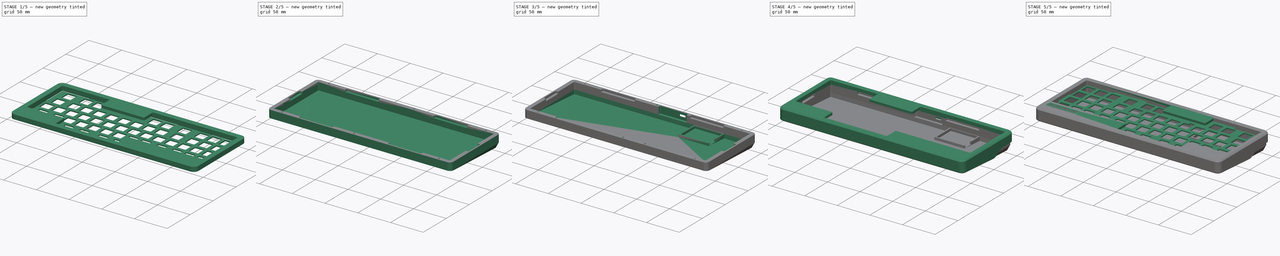
[diagram: build sequence overview — one tinted view per stage of 5, left to right]
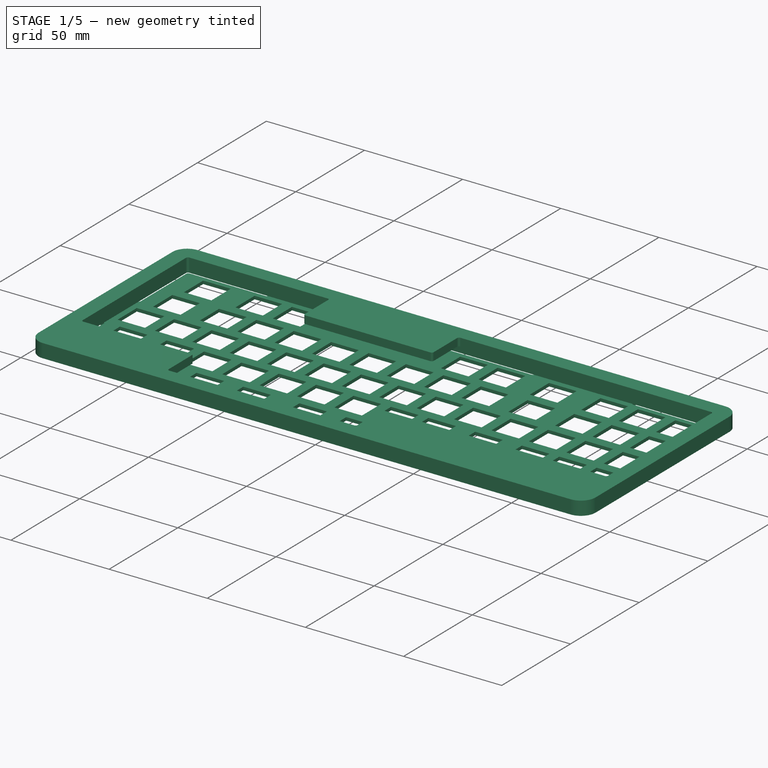
[diagram: stage 1 of 5 — iso view after this stage's code; geometry added in this stage tinted green]
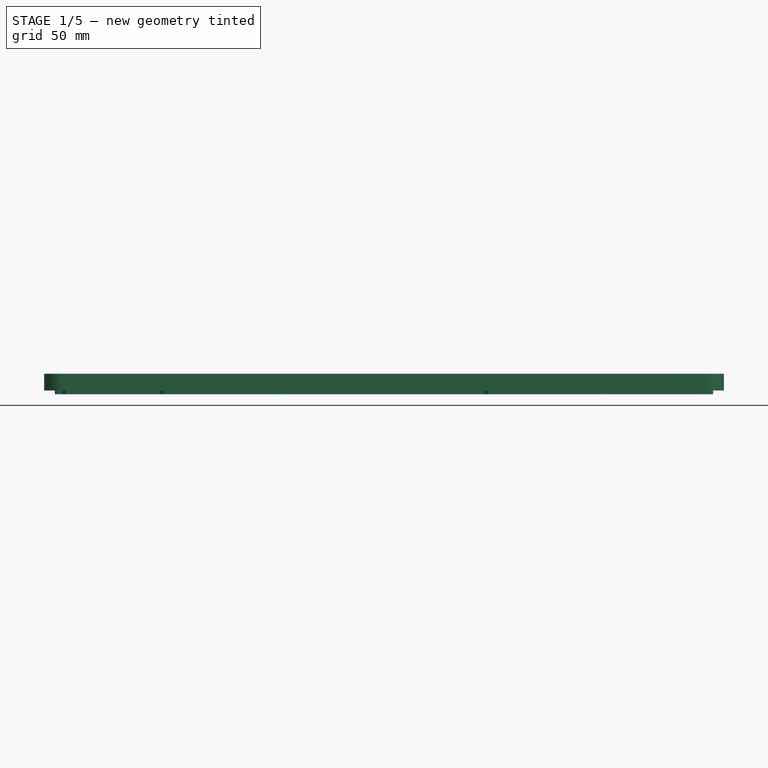
[diagram: stage 1 of 5 — front view after this stage's code; geometry added in this stage tinted green]
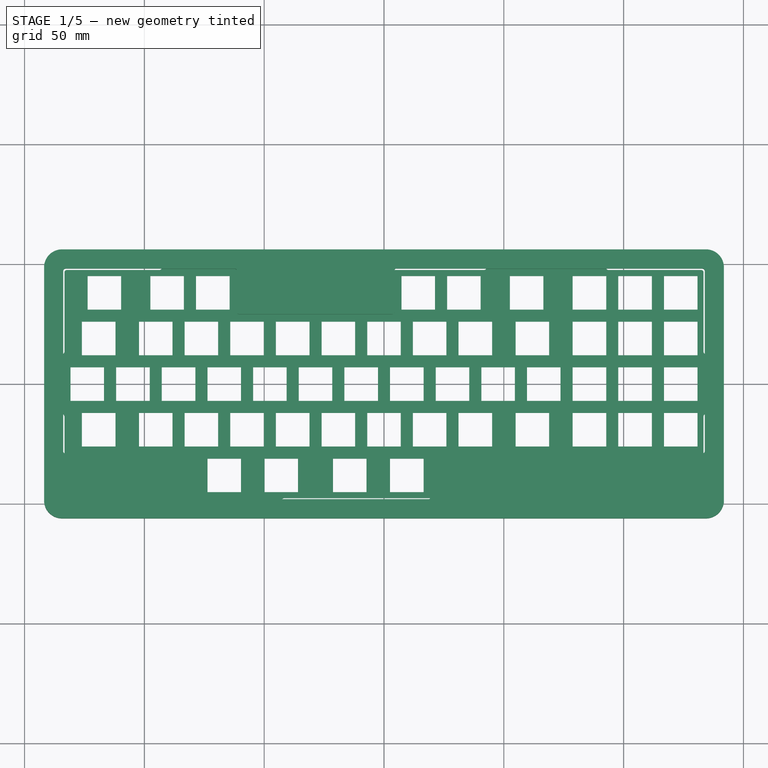
[diagram: stage 1 of 5 — top view after this stage's code; geometry added in this stage tinted green]
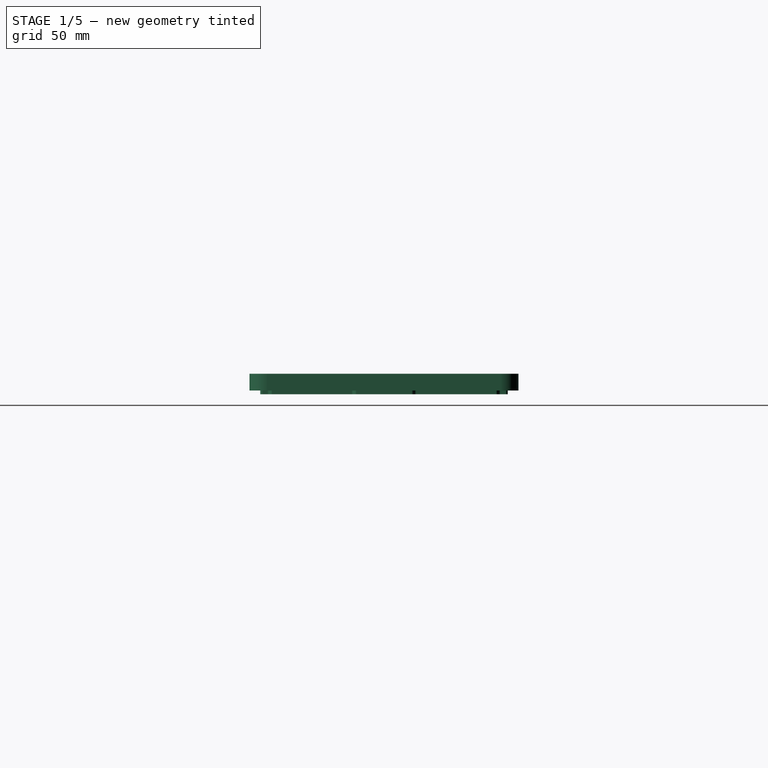
[diagram: stage 1 of 5 — right view after this stage's code; geometry added in this stage tinted green]
FCSTD DOCUMENT  (FreeCAD 0.20R26155 (Git))
Label: caseNP_left
License: All rights reserved
LicenseURL: http://en.wikipedia.org/wiki/All_rights_reserved
objects: Sketcher::SketchObject×26, PartDesign::Pocket×20, PartDesign::Pad×9, PartDesign::Chamfer×6, PartDesign::Fillet×5, PartDesign::Body×5, PartDesign::Plane×4, PartDesign::ShapeBinder×3, Part::Mirroring×3, PartDesign::FeatureBase×2, Spreadsheet::Sheet×1, PartDesign::AdditiveLoft×1, Part::Part2DObjectPython×1, Part::FeaturePython×1, Part::Feature×1, App::Part×1
note: 128 computed .brp shape members not serialized (recipe doc carries the construction recipe); baked Part::Feature solids carry a one-line shape summary decoded from their .brp

FEATURE [Sketcher::SketchObject] Sketch
  FullyConstrained = true
  MapMode = 5
  Support = -> [XY_Plane]
  expr: Constraints[16] = <<Spreadsheet>>.keyToEdge + <<Spreadsheet>>.wallThickness
  expr: Constraints[13] = 5 * <<Spreadsheet>>.spaceY + 2 * <<Spreadsheet>>.keySafety
  expr: Constraints[14] = <<Spreadsheet>>.keyToEdge + <<Spreadsheet>>.wallThickness
  expr: Constraints[17] = <<Spreadsheet>>.keyToEdge + <<Spreadsheet>>.wallThickness
  expr: Constraints[15] = <<Spreadsheet>>.keyToEdge + <<Spreadsheet>>.wallThickness
  expr: Constraints[12] = <<Spreadsheet>>.spaceX * 14 + 2 * <<Spreadsheet>>.keySafety
  expr: Constraints[35] = <<Spreadsheet>>.filletOutside
  sketch-geometry (16):
    g0: LineSegment StartX=-133.85 StartY=48.125 StartZ=0 EndX=133.85 EndY=48.125 EndZ=0
    g1: LineSegment StartX=133.85 StartY=48.125 StartZ=0 EndX=133.85 EndY=-48.125 EndZ=0
    g2: LineSegment StartX=133.85 StartY=-48.125 StartZ=0 EndX=-133.85 EndY=-48.125 EndZ=0
    g3: LineSegment StartX=-133.85 StartY=-48.125 StartZ=0 EndX=-133.85 EndY=48.125 EndZ=0
    g4: LineSegment StartX=-134.35 StartY=56.125 StartZ=0 EndX=134.35 EndY=56.125 EndZ=0
    g5: LineSegment StartX=141.85 StartY=48.625 StartZ=0 EndX=141.85 EndY=-48.625 EndZ=0
    g6: LineSegment StartX=134.35 StartY=-56.125 StartZ=0 EndX=-134.35 EndY=-56.125 EndZ=0
    g7: LineSegment StartX=-141.85 StartY=-48.625 StartZ=0 EndX=-141.85 EndY=48.625 EndZ=0
    g8: ArcOfCircle CenterX=-134.35 CenterY=48.625 CenterZ=0 NormalX=0 NormalY=0 NormalZ=1 AngleXU=0 Radius=7.5 StartAngle=1.5708 EndAngle=3.14159
    g9: GeomPoint X=-141.85 Y=56.125 Z=0
    g10: ArcOfCircle CenterX=-134.35 CenterY=-48.625 CenterZ=0 NormalX=0 NormalY=0 NormalZ=1 AngleXU=0 Radius=7.5 StartAngle=3.14159 EndAngle=4.71239
    g11: GeomPoint X=-141.85 Y=-56.125 Z=0
    g12: ArcOfCircle CenterX=134.35 CenterY=48.625 CenterZ=0 NormalX=0 NormalY=0 NormalZ=1 AngleXU=0 Radius=7.5 StartAngle=2e-16 EndAngle=1.5708
    g13: GeomPoint X=141.85 Y=56.125 Z=0
    g14: ArcOfCircle CenterX=134.35 CenterY=-48.625 CenterZ=0 NormalX=0 NormalY=0 NormalZ=1 AngleXU=0 Radius=7.5 StartAngle=4.71239 EndAngle=6.28319
    g15: GeomPoint X=141.85 Y=-56.125 Z=0
  constraints (39):
    c: Coincident(g0,g1)
    c: Coincident(g1,g2)
    c: Coincident(g2,g3)
    c: Coincident(g3,g0)
    c: Horizontal(g0)
    c: Horizontal(g2)
    c: Vertical(g1)
    c: Vertical(g3)
    c: Horizontal(g4)
    c: Horizontal(g6)
    c: Vertical(g5)
    c: Vertical(g7)
    c: DistanceX(g0,g0) = 267.7
    c: DistanceY(g3,g3) = 96.25
    c: DistanceY(g0,g9) = 8
    c: DistanceX(g9,g0) = 8
    c: DistanceX(g1,g15) = 8
    c: DistanceY(g15,g1) = 8
    c: Symmetric(g1,g0,g-1)
    c: PointOnObject(g9,g4)
    c: PointOnObject(g9,g7)
    c: Tangent(g4,g8) = 1.5708
    c: Tangent(g7,g8) = 1.5708
    c: PointOnObject(g11,g6)
    c: PointOnObject(g11,g7)
    c: Tangent(g6,g10) = 1.5708
    c: Tangent(g7,g10) = 1.5708
    c: PointOnObject(g13,g4)
    c: PointOnObject(g13,g5)
    c: Tangent(g4,g12) = 1.5708
    c: Tangent(g5,g12) = 1.5708
    c: PointOnObject(g15,g5)
    c: PointOnObject(g15,g6)
    c: Tangent(g5,g14) = 1.5708
    c: Tangent(g6,g14) = 1.5708
    c: Radius(g8) = 7.5
    c: Equal(g8,g10)
    c: Equal(g10,g12)
    c: Equal(g12,g14)
FEATURE [Spreadsheet::Sheet] Spreadsheet
  cells = C1=mx; D1=choc; A2=keySafety; B2(keySafety)=0.5; C2=0.75; D2=0.75; A3=keyToEdge; B3(keyToEdge)=6; C3=5; D3=5; A4=spaceX; B4(spaceX)=19.05; C4=19.05; D4=18; A5=spaceY; B5(spaceY)=19.05; C5=19.05; D5=17; A6=inset; B6(inset)=2.5; C6=2.5; D6=2.5; A7=wallThickness; B7(wallThickness)=2; C7=3; D7=3; A9=heightAbovePCB; B9(heightAbovePCB)=8; C9=8; D9=6.3; A10=angleTop; B10(angleTop)=0.5; C10=0; D10=1.3; A11=depthBelow; B11(depthBelowPcb)=8.5; C11=8.5; D11=4.5; A13=filletOutside; B13(filletOutside)=7.5; C13=7; D13=7; A14=filletInside; B14(filletInside)=1; C14=1; D14=1; A16=gasketLipDepth; B16(gLipDepth)=4; A17=gasketLipWidth; B17(gLipWidth)=50; A18=gasketRoom; B18(gasketRoom)=1.5; A19=plateThickness; B19(plateThickness)=1.6; C19=1.5; D19=1.2; A20=heightFromPlate; B20(heightFromPlate)=7; C20=6; A22=angle; B22(angle)=4
FEATURE [PartDesign::Pad] Pad
  Direction = (0,0,1)
  Length = 7
  Length2 = 100
  Profile = -> Sketch
  ReferenceAxis = -> Sketch [N_Axis]
  Type = 0
  expr: Length = <<Spreadsheet>>.heightFromPlate
FEATURE [Sketcher::SketchObject] Sketch001
  AttachmentOffset = pos=(0,0,0) rot=(0,0,1;3.14159rad)
  ExternalGeometry = -> [Pad]
  FullyConstrained = true
  MapMode = 5
  Placement = pos=(0,0,0) rot=(0,-1,0;3.14159rad)
  Support = -> [Pad]
  expr: Constraints[3] = 14 * <<Spreadsheet>>.spaceX + 2 * <<Spreadsheet>>.keySafety
  expr: Constraints[15] = 4 * <<Spreadsheet>>.spaceY + 2 * <<Spreadsheet>>.keySafety
  expr: Constraints[12] = 3.5 * <<Spreadsheet>>.spaceX - 2 * <<Spreadsheet>>.keySafety
  expr: Constraints[16] = 3.75 * <<Spreadsheet>>.spaceX + 2 * <<Spreadsheet>>.keySafety
  expr: Constraints[18] = <<Spreadsheet>>.spaceX * 5 + 2 * <<Spreadsheet>>.keySafety
  expr: Constraints[17] = <<Spreadsheet>>.spaceY
  expr: Constraints[14] = 1 * <<Spreadsheet>>.spaceY
  expr: Constraints[75] = <<Spreadsheet>>.filletInside
  sketch-geometry (45):
    g0: LineSegment StartX=133.85 StartY=47.125 StartZ=0 EndX=133.85 EndY=-28.075 EndZ=0
    g1: LineSegment StartX=132.85 StartY=-29.075 StartZ=0 EndX=77.7 EndY=-29.075 EndZ=0
    g2: LineSegment StartX=76.7 StartY=-30.075 StartZ=0 EndX=76.7 EndY=-47.125 EndZ=0
    g3: LineSegment StartX=-19.55 StartY=-47.125 StartZ=0 EndX=-19.55 EndY=-30.075 EndZ=0
    g4: LineSegment StartX=-20.55 StartY=-29.075 StartZ=0 EndX=-132.85 EndY=-29.075 EndZ=0
    g5: LineSegment StartX=-133.85 StartY=-28.075 StartZ=0 EndX=-133.85 EndY=47.125 EndZ=0
    g6: LineSegment StartX=134.35 StartY=56.125 StartZ=0 EndX=-134.35 EndY=-56.125 EndZ=0
    g7: LineSegment StartX=-132.85 StartY=48.125 StartZ=0 EndX=-5.2625 EndY=48.125 EndZ=0
    g8: LineSegment StartX=-4.2625 StartY=47.125 StartZ=0 EndX=-4.2625 EndY=30.075 EndZ=0
    g9: LineSegment StartX=-3.2625 StartY=29.075 StartZ=0 EndX=60.4125 EndY=29.075 EndZ=0
    g10: LineSegment StartX=61.4125 StartY=30.075 StartZ=0 EndX=61.4125 EndY=47.125 EndZ=0
    g11: LineSegment StartX=62.4125 StartY=48.125 StartZ=0 EndX=132.85 EndY=48.125 EndZ=0
    g12: GeomPoint X=2.5e-15 Y=-5.3e-15 Z=0
    g13: LineSegment StartX=133.85 StartY=-5.3e-15 StartZ=0 EndX=-133.85 EndY=-5.3e-15 EndZ=0
    g14: GeomPoint X=2.5e-15 Y=-5.3e-15 Z=0
    g15: GeomPoint X=2.5e-15 Y=-5.3e-15 Z=0
    g16: GeomPoint X=28.575 Y=-48.125 Z=0
    g17: GeomPoint X=28.575 Y=29.075 Z=0
    g18: LineSegment StartX=-19.55 StartY=-48.125 StartZ=0 EndX=-19.55 EndY=48.125 EndZ=0
    g19: GeomPoint X=-19.55 Y=-5.3e-15 Z=0
    g20: ArcOfCircle CenterX=-132.85 CenterY=47.125 CenterZ=0 NormalX=0 NormalY=0 NormalZ=1 AngleXU=0 Radius=1 StartAngle=1.5708 EndAngle=3.14159
    g21: GeomPoint X=-133.85 Y=48.125 Z=0
    g22: ArcOfCircle CenterX=-132.85 CenterY=-28.075 CenterZ=0 NormalX=0 NormalY=0 NormalZ=1 AngleXU=0 Radius=1 StartAngle=3.14159 EndAngle=4.71239
    g23: GeomPoint X=-133.85 Y=-29.075 Z=0
    g24: ArcOfCircle CenterX=-20.55 CenterY=-30.075 CenterZ=0 NormalX=0 NormalY=0 NormalZ=1 AngleXU=0 Radius=1 StartAngle=6e-16 EndAngle=1.5708
    g25: GeomPoint X=-19.55 Y=-29.075 Z=0
    g26: ArcOfCircle CenterX=75.7 CenterY=-47.125 CenterZ=0 NormalX=0 NormalY=0 NormalZ=1 AngleXU=0 Radius=1 StartAngle=4.71239 EndAngle=6.28319
    g27: GeomPoint X=76.7 Y=-48.125 Z=0
    g28: ArcOfCircle CenterX=77.7 CenterY=-30.075 CenterZ=0 NormalX=0 NormalY=0 NormalZ=1 AngleXU=0 Radius=1 StartAngle=1.5708 EndAngle=3.14159
    g29: GeomPoint X=76.7 Y=-29.075 Z=0
    g30: ArcOfCircle CenterX=132.85 CenterY=-28.075 CenterZ=0 NormalX=0 NormalY=0 NormalZ=1 AngleXU=0 Radius=1 StartAngle=4.71239 EndAngle=6.28319
    g31: GeomPoint X=133.85 Y=-29.075 Z=0
    g32: ArcOfCircle CenterX=132.85 CenterY=47.125 CenterZ=0 NormalX=0 NormalY=0 NormalZ=1 AngleXU=0 Radius=1 StartAngle=1.7e-15 EndAngle=1.5708
    g33: GeomPoint X=133.85 Y=48.125 Z=0
    g34: ArcOfCircle CenterX=62.4125 CenterY=47.125 CenterZ=0 NormalX=0 NormalY=0 NormalZ=1 AngleXU=0 Radius=1 StartAngle=1.5708 EndAngle=3.14159
    g35: GeomPoint X=61.4125 Y=48.125 Z=0
    g36: ArcOfCircle CenterX=60.4125 CenterY=30.075 CenterZ=0 NormalX=0 NormalY=0 NormalZ=1 AngleXU=0 Radius=1 StartAngle=4.71239 EndAngle=6.28319
    g37: GeomPoint X=61.4125 Y=29.075 Z=0
    g38: ArcOfCircle CenterX=-3.2625 CenterY=30.075 CenterZ=0 NormalX=0 NormalY=0 NormalZ=1 AngleXU=0 Radius=1 StartAngle=3.14159 EndAngle=4.71239
    g39: GeomPoint X=-4.2625 Y=29.075 Z=0
    g40: ArcOfCircle CenterX=-5.2625 CenterY=47.125 CenterZ=0 NormalX=0 NormalY=0 NormalZ=1 AngleXU=0 Radius=1 StartAngle=2.5e-15 EndAngle=1.5708
    g41: GeomPoint X=-4.2625 Y=48.125 Z=0
    g42: LineSegment StartX=75.7 StartY=-48.125 StartZ=0 EndX=-18.55 EndY=-48.125 EndZ=0
    g43: ArcOfCircle CenterX=-18.55 CenterY=-47.125 CenterZ=0 NormalX=0 NormalY=0 NormalZ=1 AngleXU=0 Radius=1 StartAngle=3.14159 EndAngle=4.71239
    g44: GeomPoint X=-19.55 Y=-48.125 Z=0
  constraints (99):
    c: Vertical(g0)
    c: Horizontal(g1)
    c: Horizontal(g4)
    c: DistanceX(g21,g33) = 267.7
    c: Parallel(g3,g5)
    c: Parallel(g5,g2)
    c: Horizontal(g25,g29)
    c: Horizontal(g7)
    c: Vertical(g8)
    c: Horizontal(g9)
    c: Vertical(g10)
    c: Horizontal(g11)
    c: DistanceX(g39,g37) = 65.675
    c: Horizontal(g35,g41)
    c: DistanceY(g39,g41) = 19.05
    c: DistanceY(g23,g21) = 77.2
    c: DistanceX(g35,g33) = 72.4375
    c: DistanceY(g44,g25) = 19.05
    c: Distance(g44,g27) = 96.25
    c: PointOnObject(g13,g0)
    c: Horizontal(g13)
    c: Symmetric(g13,g13,g14)
    c: Coincident(g14,g12)
    c: Symmetric(g6,g6,g15)
    c: Coincident(g12,g15)
    c: Symmetric(g27,g44,g16)
    c: Symmetric(g39,g37,g17)
    c: Vertical(g17,g16)
    c: PointOnObject(g18,g7)
    c: Vertical(g18)
    c: Symmetric(g18,g18,g19)
    c: PointOnObject(g19,g13)
    c: PointOnObject(g13,g5)
    c: PointOnObject(g21,g5)
    c: PointOnObject(g21,g7)
    c: Tangent(g5,g20) = 1.5708
    c: Tangent(g7,g20) = 1.5708
    c: PointOnObject(g23,g4)
    c: PointOnObject(g23,g5)
    c: Tangent(g4,g22) = 1.5708
    c: Tangent(g5,g22) = 1.5708
    c: PointOnObject(g25,g3)
    c: PointOnObject(g25,g4)
    c: Tangent(g3,g24) = -1.5708
    c: Tangent(g4,g24) = -1.5708
    c: PointOnObject(g27,g2)
    c: Tangent(g2,g26) = 1.5708
    c: PointOnObject(g29,g1)
    c: PointOnObject(g29,g2)
    c: Tangent(g1,g28) = -1.5708
    c: Tangent(g2,g28) = -1.5708
    c: PointOnObject(g31,g0)
    c: PointOnObject(g31,g1)
    c: Tangent(g0,g30) = 1.5708
    c: Tangent(g1,g30) = 1.5708
    c: PointOnObject(g33,g0)
    c: PointOnObject(g33,g11)
    c: Tangent(g0,g32) = 1.5708
    c: Tangent(g11,g32) = 1.5708
    c: PointOnObject(g35,g10)
    c: PointOnObject(g35,g11)
    c: Tangent(g10,g34) = 1.5708
    c: Tangent(g11,g34) = 1.5708
    c: PointOnObject(g37,g9)
    c: PointOnObject(g37,g10)
    c: Tangent(g9,g36) = -1.5708
    c: Tangent(g10,g36) = -1.5708
    c: PointOnObject(g39,g8)
    c: PointOnObject(g39,g9)
    c: Tangent(g8,g38) = -1.5708
    c: Tangent(g9,g38) = -1.5708
    c: PointOnObject(g41,g7)
    c: PointOnObject(g41,g8)
    c: Tangent(g7,g40) = 1.5708
    c: Tangent(g8,g40) = 1.5708
    c: Radius(g20) = 1
    c: Equal(g20,g22)
    c: Equal(g22,g24)
    c: Equal(g24,g26)
    c: Equal(g26,g28)
    c: Equal(g28,g30)
    c: Equal(g30,g32)
    c: Equal(g32,g34)
    c: Equal(g34,g36)
    c: Equal(g36,g38)
    c: Equal(g38,g40)
    c: Coincident(g6,g-4)
    c: Coincident(g6,g-3)
    c: Coincident(g42,g26)
    c: Horizontal(g42)
    c: PointOnObject(g44,g3)
    c: PointOnObject(g44,g42)
    c: Tangent(g3,g43) = 1.5708
    c: Tangent(g42,g43) = 1.5708
    c: Equal(g43,g24)
    c: Vertical(g3)
    c: Horizontal(g27,g26)
    c: Coincident(g18,g44)
    c: Vertical(g26,g26)
FEATURE [PartDesign::Pocket] Pocket
  BaseFeature = -> Pad
  Length = 25
  Length2 = 100
  Profile = -> Sketch001
  Type = 0
FEATURE [Sketcher::SketchObject] Sketch002
  FullyConstrained = true
  MapMode = 5
  Support = -> [XY_Plane001]
  expr: Constraints[166] = <<Spreadsheet>>.spaceX
  expr: Constraints[33] = <<Spreadsheet>>.spaceX
  expr: Constraints[167] = (<<Spreadsheet>>.spaceX - 14) / 2
  expr: Constraints[185] = <<Spreadsheet>>.gLipWidth / 2
  expr: Constraints[101] = 4.5 * <<Spreadsheet>>.spaceX
  expr: Constraints[168] = (<<Spreadsheet>>.spaceX - 14) / 2
  expr: Constraints[120] = 14 * <<Spreadsheet>>.spaceX
  expr: Constraints[126] = <<Spreadsheet>>.gLipDepth
  expr: Constraints[139] = 5 * <<Spreadsheet>>.spaceY
  expr: Constraints[122] = <<Spreadsheet>>.gLipWidth
  expr: Constraints[54] = <<Spreadsheet>>.spaceX * 1.375
  expr: Constraints[43] = <<Spreadsheet>>.spaceX * 1.375
  expr: Constraints[32] = <<Spreadsheet>>.spaceX
  expr: Constraints[86] = <<Spreadsheet>>.spaceX
  expr: Constraints[85] = <<Spreadsheet>>.spaceX * 1.375
  sketch-geometry (65):
    g0: LineSegment StartX=-78.4375 StartY=45.1 StartZ=0 EndX=-64.4375 EndY=45.1 EndZ=0
    g1: LineSegment StartX=-64.4375 StartY=45.1 StartZ=0 EndX=-64.4375 EndY=31.1 EndZ=0
    g2: LineSegment StartX=-64.4375 StartY=31.1 StartZ=0 EndX=-78.4375 EndY=31.1 EndZ=0
    g3: LineSegment StartX=-78.4375 StartY=31.1 StartZ=0 EndX=-78.4375 EndY=45.1 EndZ=0
    g4: LineSegment StartX=7.2875 StartY=45.1 StartZ=0 EndX=21.2875 EndY=45.1 EndZ=0
    g5: LineSegment StartX=21.2875 StartY=45.1 StartZ=0 EndX=21.2875 EndY=31.1 EndZ=0
    g6: LineSegment StartX=21.2875 StartY=31.1 StartZ=0 EndX=7.2875 EndY=31.1 EndZ=0
    g7: LineSegment StartX=7.2875 StartY=31.1 StartZ=0 EndX=7.2875 EndY=45.1 EndZ=0
    g8: LineSegment StartX=26.3375 StartY=45.1 StartZ=0 EndX=40.3375 EndY=45.1 EndZ=0
    g9: LineSegment StartX=40.3375 StartY=45.1 StartZ=0 EndX=40.3375 EndY=31.1 EndZ=0
    g10: LineSegment StartX=40.3375 StartY=31.1 StartZ=0 EndX=26.3375 EndY=31.1 EndZ=0
    g11: LineSegment StartX=26.3375 StartY=31.1 StartZ=0 EndX=26.3375 EndY=45.1 EndZ=0
    g12: LineSegment StartX=-97.4875 StartY=45.1 StartZ=0 EndX=-83.4875 EndY=45.1 EndZ=0
    g13: LineSegment StartX=-83.4875 StartY=45.1 StartZ=0 EndX=-83.4875 EndY=31.1 EndZ=0
    g14: LineSegment StartX=-83.4875 StartY=31.1 StartZ=0 EndX=-97.4875 EndY=31.1 EndZ=0
    g15: LineSegment StartX=-97.4875 StartY=31.1 StartZ=0 EndX=-97.4875 EndY=45.1 EndZ=0
    g16: LineSegment StartX=-123.681 StartY=45.1 StartZ=0 EndX=-109.681 EndY=45.1 EndZ=0
    g17: LineSegment StartX=-109.681 StartY=45.1 StartZ=0 EndX=-109.681 EndY=31.1 EndZ=0
    g18: LineSegment StartX=-109.681 StartY=31.1 StartZ=0 EndX=-123.681 EndY=31.1 EndZ=0
    g19: LineSegment StartX=-123.681 StartY=31.1 StartZ=0 EndX=-123.681 EndY=45.1 EndZ=0
    g20: LineSegment StartX=52.5312 StartY=45.1 StartZ=0 EndX=66.5312 EndY=45.1 EndZ=0
    g21: LineSegment StartX=66.5312 StartY=45.1 StartZ=0 EndX=66.5312 EndY=31.1 EndZ=0
    g22: LineSegment StartX=66.5312 StartY=31.1 StartZ=0 EndX=52.5312 EndY=31.1 EndZ=0
    g23: LineSegment StartX=52.5312 StartY=31.1 StartZ=0 EndX=52.5312 EndY=45.1 EndZ=0
    g24: LineSegment StartX=78.725 StartY=45.1 StartZ=0 EndX=92.725 EndY=45.1 EndZ=0
    g25: LineSegment StartX=92.725 StartY=45.1 StartZ=0 EndX=92.725 EndY=31.1 EndZ=0
    g26: LineSegment StartX=92.725 StartY=31.1 StartZ=0 EndX=78.725 EndY=31.1 EndZ=0
    g27: LineSegment StartX=78.725 StartY=31.1 StartZ=0 EndX=78.725 EndY=45.1 EndZ=0
    g28: LineSegment StartX=97.775 StartY=45.1 StartZ=0 EndX=111.775 EndY=45.1 EndZ=0
    g29: LineSegment StartX=111.775 StartY=45.1 StartZ=0 EndX=111.775 EndY=31.1 EndZ=0
    g30: LineSegment StartX=111.775 StartY=31.1 StartZ=0 EndX=97.7751 EndY=31.1 EndZ=0
    g31: LineSegment StartX=97.7751 StartY=31.1 StartZ=0 EndX=97.775 EndY=45.1 EndZ=0
    g32: LineSegment StartX=116.825 StartY=45.1 StartZ=0 EndX=130.825 EndY=45.1 EndZ=0
    g33: LineSegment StartX=130.825 StartY=45.1 StartZ=0 EndX=130.825 EndY=31.1 EndZ=0
    g34: LineSegment StartX=130.825 StartY=31.1 StartZ=0 EndX=116.825 EndY=31.1 EndZ=0
    g35: LineSegment StartX=116.825 StartY=31.1 StartZ=0 EndX=116.825 EndY=45.1 EndZ=0
    g36: LineSegment StartX=-133.35 StartY=47.625 StartZ=0 EndX=-92.725 EndY=47.625 EndZ=0
    g37: LineSegment StartX=-92.725 StartY=47.625 StartZ=0 EndX=-92.725 EndY=51.625 EndZ=0
    g38: LineSegment StartX=-92.725 StartY=51.625 StartZ=0 EndX=-42.725 EndY=51.625 EndZ=0
    g39: LineSegment StartX=-42.725 StartY=51.625 StartZ=0 EndX=-42.725 EndY=47.625 EndZ=0
    g40: LineSegment StartX=-42.725 StartY=47.625 StartZ=0 EndX=42.725 EndY=47.625 EndZ=0
    g41: LineSegment StartX=42.725 StartY=47.625 StartZ=0 EndX=42.725 EndY=51.625 EndZ=0
    g42: LineSegment StartX=42.725 StartY=51.625 StartZ=0 EndX=92.725 EndY=51.625 EndZ=0
    g43: LineSegment StartX=92.725 StartY=51.625 StartZ=0 EndX=92.725 EndY=47.625 EndZ=0
    g44: LineSegment StartX=92.725 StartY=47.625 StartZ=0 EndX=133.35 EndY=47.625 EndZ=0
    g45: LineSegment StartX=-133.35 StartY=47.625 StartZ=0 EndX=-133.35 EndY=12.5 EndZ=0
    g46: LineSegment StartX=-133.35 StartY=-12.5 StartZ=0 EndX=-133.35 EndY=-47.625 EndZ=0
    g47: LineSegment StartX=133.35 StartY=47.625 StartZ=0 EndX=133.35 EndY=12.5 EndZ=0
    g48: LineSegment StartX=133.35 StartY=12.5 StartZ=0 EndX=137.35 EndY=12.5 EndZ=0
    g49: LineSegment StartX=137.35 StartY=12.5 StartZ=0 EndX=137.35 EndY=-12.5 EndZ=0
    g50: LineSegment StartX=137.35 StartY=-12.5 StartZ=0 EndX=133.35 EndY=-12.5 EndZ=0
    g51: LineSegment StartX=133.35 StartY=-12.5 StartZ=0 EndX=133.35 EndY=-47.625 EndZ=0
    g52: LineSegment StartX=42.725 StartY=-47.625 StartZ=0 EndX=42.725 EndY=-51.625 EndZ=0
    g53: LineSegment StartX=42.725 StartY=-51.625 StartZ=0 EndX=92.725 EndY=-51.625 EndZ=0
    g54: LineSegment StartX=92.725 StartY=-51.625 StartZ=0 EndX=92.725 EndY=-47.625 EndZ=0
    g55: LineSegment StartX=92.725 StartY=-47.625 StartZ=0 EndX=133.35 EndY=-47.625 EndZ=0
    g56: LineSegment StartX=-133.35 StartY=-47.625 StartZ=0 EndX=-92.725 EndY=-47.625 EndZ=0
    g57: LineSegment StartX=-92.725 StartY=-47.625 StartZ=0 EndX=-92.725 EndY=-51.625 EndZ=0
    g58: LineSegment StartX=-92.725 StartY=-51.625 StartZ=0 EndX=-42.725 EndY=-51.625 EndZ=0
    g59: LineSegment StartX=-42.725 StartY=-51.625 StartZ=0 EndX=-42.725 EndY=-47.625 EndZ=0
    g60: LineSegment StartX=-42.725 StartY=-47.625 StartZ=0 EndX=42.725 EndY=-47.625 EndZ=0
    g61: GeomPoint X=0 Y=0 Z=0
    g62: LineSegment StartX=-133.35 StartY=-12.5 StartZ=0 EndX=-137.35 EndY=-12.5 EndZ=0
    g63: LineSegment StartX=-137.35 StartY=12.5 StartZ=0 EndX=-137.35 EndY=-12.5 EndZ=0
    g64: LineSegment StartX=-137.35 StartY=12.5 StartZ=0 EndX=-133.35 EndY=12.5 EndZ=0
  constraints (192):
    c: Coincident(g0,g1)
    c: Coincident(g1,g2)
    c: Coincident(g2,g3)
    c: Coincident(g3,g0)
    c: Horizontal(g0)
    c: Horizontal(g2)
    c: Vertical(g1)
    c: Vertical(g3)
    c: Coincident(g4,g5)
    c: Vertical(g5)
    c: Coincident(g8,g9)
    c: Coincident(g9,g10)
    c: Coincident(g10,g11)
    c: Coincident(g11,g8)
    c: Horizontal(g8)
    c: Horizontal(g10)
    c: Vertical(g9)
    c: Vertical(g11)
    c: Coincident(g12,g13)
    c: Coincident(g13,g14)
    c: Coincident(g14,g15)
    c: Coincident(g15,g12)
    c: Horizontal(g12)
    c: Horizontal(g14)
    c: Vertical(g13)
    c: Vertical(g15)
    c: Equal(g0,g3)
    c: Equal(g12,g15)
    c: Equal(g8,g11)
    c: DistanceX(g0,g0) = 14
    c: Horizontal(g8,g4)
    c: Horizontal(g0,g12)
    c: DistanceX(g12,g0) = 19.05
    c: DistanceX(g4,g8) = 19.05
    c: Coincident(g16,g17)
    c: Coincident(g17,g18)
    c: Coincident(g18,g19)
    c: Coincident(g19,g16)
    c: Horizontal(g16)
    c: Horizontal(g18)
    c: Vertical(g17)
    c: Vertical(g19)
    c: Equal(g17,g15)
    c: DistanceX(g16,g12) = 26.1938
    c: Horizontal(g16,g12)
    c: Coincident(g20,g21)
    c: Coincident(g21,g22)
    c: Coincident(g22,g23)
    c: Coincident(g23,g20)
    c: Horizontal(g20)
    c: Horizontal(g22)
    c: Vertical(g21)
    c: Vertical(g23)
    c: Equal(g23,g9)
    c: DistanceX(g8,g20) = 26.1938
    c: Horizontal(g8,g20)
    c: Coincident(g24,g25)
    c: Coincident(g25,g26)
    c: Coincident(g26,g27)
    c: Coincident(g27,g24)
    c: Horizontal(g24)
    c: Horizontal(g26)
    c: Vertical(g25)
    c: Vertical(g27)
    c: Coincident(g28,g29)
    c: Coincident(g29,g30)
    c: Coincident(g30,g31)
    c: Coincident(g31,g28)
    c: Horizontal(g28)
    c: Horizontal(g30)
    c: Vertical(g29)
    c: Coincident(g32,g33)
    c: Coincident(g33,g34)
    c: Coincident(g34,g35)
    c: Coincident(g35,g32)
    c: Horizontal(g32)
    c: Horizontal(g34)
    c: Vertical(g33)
    c: Vertical(g35)
    c: Equal(g32,g35)
    c: Equal(g35,g31)
    c: Equal(g31,g28)
    c: Equal(g28,g27)
    c: Equal(g27,g24)
    c: Equal(g24,g21)
    c: DistanceX(g20,g24) = 26.1938
    c: DistanceX(g24,g28) = 19.05
    c: Horizontal(g20,g24)
    c: Horizontal(g24,g28)
    c: Horizontal(g28,g32)
    c: Horizontal(g13,g1)
    c: Horizontal(g5,g9)
    c: Horizontal(g25,g29)
    c: Coincident(g7,g4)
    c: Coincident(g5,g6)
    c: Horizontal(g4)
    c: Horizontal(g6)
    c: Coincident(g6,g7)
    c: Vertical(g7)
    c: Equal(g16,g12)
    c: Equal(g20,g24)
    c: DistanceX(g0,g4) = 85.725
    c: Equal(g1,g7)
    c: Equal(g7,g4)
    c: Horizontal(g0,g4)
    c: Horizontal(g36)
    c: Coincident(g36,g37)
    c: Vertical(g37)
    c: Coincident(g37,g38)
    c: Coincident(g38,g39)
    c: Vertical(g39)
    c: Coincident(g39,g40)
    c: Horizontal(g40)
    c: Vertical(g41)
    c: Coincident(g41,g42)
    c: Horizontal(g42)
    c: Coincident(g42,g43)
    c: Vertical(g43)
    c: Coincident(g43,g44)
    c: Horizontal(g44)
    c: DistanceX(g36,g44) = 266.7
    c: Horizontal(g38)
    c: DistanceX(g38,g38) = 50
    c: Equal(g42,g38)
    c: Horizontal(g39,g36)
    c: Horizontal(g41,g43)
    c: DistanceY(g37,g37) = 4
    c: Coincident(g36,g45)
    c: Vertical(g45)
    c: Vertical(g46)
    c: Coincident(g44,g47)
    c: Vertical(g47)
    c: Coincident(g47,g48)
    c: Horizontal(g48)
    c: Coincident(g48,g49)
    c: Vertical(g49)
    c: Coincident(g49,g50)
    c: Horizontal(g50)
    c: Coincident(g50,g51)
    c: DistanceY(g46,g36) = 95.25
    c: Horizontal(g46,g51)
    c: Vertical(g51)
    c: Equal(g51,g47)
    c: Vertical(g52)
    c: Coincident(g52,g53)
    c: Horizontal(g53)
    c: Coincident(g53,g54)
    c: Coincident(g54,g55)
    c: Coincident(g55,g51)
    c: Horizontal(g55)
    c: Coincident(g46,g56)
    c: Horizontal(g56)
    c: Coincident(g56,g57)
    c: Vertical(g57)
    c: Coincident(g57,g58)
    c: Horizontal(g58)
    c: Coincident(g59,g60)
    c: Horizontal(g60)
    c: Vertical(g59)
    c: Vertical(g54)
    c: Equal(g58,g38)
    c: Equal(g59,g39)
    c: Horizontal(g56,g59)
    c: Vertical(g50,g47)
    c: Vertical(g46,g45)
    c: Coincident(g61,g-1)
    c: DistanceX(g29,g33) = 19.05
    c: DistanceX(g32,g44) = 2.525
    c: DistanceY(g32,g44) = 2.525
    c: Coincident(g40,g41)
    c: Equal(g41,g39)
    c: Coincident(g52,g60)
    c: Equal(g58,g53)
    c: Symmetric(g51,g36,g-1)
    c: Equal(g45,g46)
    c: Coincident(g59,g58)
    c: Equal(g52,g59)
    c: Coincident(g62,g46)
    c: Horizontal(g62)
    c: Coincident(g63,g62)
    c: Vertical(g63)
    c: Coincident(g64,g63)
    c: Coincident(g64,g45)
    c: Horizontal(g64)
    c: Equal(g49,g63)
    c: DistanceY(g63,g63) = 25
    c: Equal(g64,g39)
    c: Equal(g48,g39)
    c: Vertical(g43,g24)
    c: Equal(g36,g44)
    c: Vertical(g39,g59)
    c: Vertical(g52,g40)
FEATURE [PartDesign::Pad] Pad001
  Direction = (0,0,1)
  Length = 1.6
  Length2 = 100
  Profile = -> Sketch002
  ReferenceAxis = -> Sketch002 [N_Axis]
  Reversed = true
  Type = 0
  expr: Length = <<Spreadsheet>>.plateThickness
FEATURE [Sketcher::SketchObject] Sketch003
  ExternalGeometry = -> [Pad001]
  FullyConstrained = true
  MapMode = 5
  Support = -> [Pad001]
  expr: Constraints[130] = <<Spreadsheet>>.spaceX * 1.25
  expr: Constraints[131] = <<Spreadsheet>>.spaceX
  expr: Constraints[133] = <<Spreadsheet>>.spaceX
  expr: Constraints[136] = <<Spreadsheet>>.spaceX
  expr: Constraints[134] = <<Spreadsheet>>.spaceX
  expr: Constraints[137] = <<Spreadsheet>>.spaceX
  expr: Constraints[139] = <<Spreadsheet>>.spaceX * 1.25
  expr: Constraints[138] = <<Spreadsheet>>.spaceX * 1.25
  expr: Constraints[135] = <<Spreadsheet>>.spaceX
  expr: Constraints[153] = <<Spreadsheet>>.spaceX
  expr: Constraints[155] = <<Spreadsheet>>.spaceY
  expr: Constraints[132] = <<Spreadsheet>>.spaceX
  expr: Constraints[140] = <<Spreadsheet>>.spaceX
  sketch-geometry (52):
    g0: LineSegment StartX=-126.062 StartY=26.05 StartZ=0 EndX=-112.062 EndY=26.05 EndZ=0
    g1: LineSegment StartX=-112.062 StartY=26.05 StartZ=0 EndX=-112.062 EndY=12.05 EndZ=0
    g2: LineSegment StartX=-112.062 StartY=12.05 StartZ=0 EndX=-126.062 EndY=12.05 EndZ=0
    g3: LineSegment StartX=-126.062 StartY=12.05 StartZ=0 EndX=-126.062 EndY=26.05 EndZ=0
    g4: LineSegment StartX=-102.25 StartY=26.05 StartZ=0 EndX=-88.25 EndY=26.05 EndZ=0
    g5: LineSegment StartX=-88.25 StartY=26.05 StartZ=0 EndX=-88.25 EndY=12.05 EndZ=0
    g6: LineSegment StartX=-88.25 StartY=12.05 StartZ=0 EndX=-102.25 EndY=12.05 EndZ=0
    g7: LineSegment StartX=-102.25 StartY=12.05 StartZ=0 EndX=-102.25 EndY=26.05 EndZ=0
    g8: LineSegment StartX=-64.15 StartY=26.05 StartZ=0 EndX=-50.15 EndY=26.05 EndZ=0
    g9: LineSegment StartX=-50.15 StartY=26.05 StartZ=0 EndX=-50.15 EndY=12.05 EndZ=0
    g10: LineSegment StartX=-50.15 StartY=12.05 StartZ=0 EndX=-64.15 EndY=12.05 EndZ=0
    g11: LineSegment StartX=-64.15 StartY=12.05 StartZ=0 EndX=-64.15 EndY=26.05 EndZ=0
    g12: LineSegment StartX=78.725 StartY=26.05 StartZ=0 EndX=92.725 EndY=26.05 EndZ=0
    g13: LineSegment StartX=92.725 StartY=26.05 StartZ=0 EndX=92.725 EndY=12.05 EndZ=0
    g14: LineSegment StartX=92.725 StartY=12.05 StartZ=0 EndX=78.725 EndY=12.05 EndZ=0
    g15: LineSegment StartX=78.725 StartY=12.05 StartZ=0 EndX=78.725 EndY=26.05 EndZ=0
    g16: LineSegment StartX=-26.05 StartY=26.05 StartZ=0 EndX=-12.05 EndY=26.05 EndZ=0
    g17: LineSegment StartX=-12.05 StartY=26.05 StartZ=0 EndX=-12.05 EndY=12.05 EndZ=0
    g18: LineSegment StartX=-12.05 StartY=12.05 StartZ=0 EndX=-26.05 EndY=12.05 EndZ=0
    g19: LineSegment StartX=-26.05 StartY=12.05 StartZ=0 EndX=-26.05 EndY=26.05 EndZ=0
    g20: LineSegment StartX=31.1 StartY=26.05 StartZ=0 EndX=45.1 EndY=26.05 EndZ=0
    g21: LineSegment StartX=45.1 StartY=26.05 StartZ=0 EndX=45.1 EndY=12.05 EndZ=0
    g22: LineSegment StartX=45.1 StartY=12.05 StartZ=0 EndX=31.1 EndY=12.05 EndZ=0
    g23: LineSegment StartX=31.1 StartY=12.05 StartZ=0 EndX=31.1 EndY=26.05 EndZ=0
    g24: LineSegment StartX=-83.2 StartY=26.05 StartZ=0 EndX=-69.2 EndY=26.05 EndZ=0
    g25: LineSegment StartX=-69.2 StartY=26.05 StartZ=0 EndX=-69.2 EndY=12.05 EndZ=0
    g26: LineSegment StartX=-69.2 StartY=12.05 StartZ=0 EndX=-83.2 EndY=12.05 EndZ=0
    g27: LineSegment StartX=-83.2 StartY=12.05 StartZ=0 EndX=-83.2 EndY=26.05 EndZ=0
    g28: LineSegment StartX=-45.1 StartY=26.05 StartZ=0 EndX=-31.1 EndY=26.05 EndZ=0
    g29: LineSegment StartX=-31.1 StartY=26.05 StartZ=0 EndX=-31.1 EndY=12.05 EndZ=0
    g30: LineSegment StartX=-31.1 StartY=12.05 StartZ=0 EndX=-45.1 EndY=12.05 EndZ=0
    g31: LineSegment StartX=-45.1 StartY=12.05 StartZ=0 EndX=-45.1 EndY=26.05 EndZ=0
    g32: LineSegment StartX=12.05 StartY=26.05 StartZ=0 EndX=26.05 EndY=26.05 EndZ=0
    g33: LineSegment StartX=26.05 StartY=26.05 StartZ=0 EndX=26.05 EndY=12.05 EndZ=0
    g34: LineSegment StartX=26.05 StartY=12.05 StartZ=0 EndX=12.05 EndY=12.05 EndZ=0
    g35: LineSegment StartX=12.05 StartY=12.05 StartZ=0 EndX=12.05 EndY=26.05 EndZ=0
    g36: LineSegment StartX=97.775 StartY=26.05 StartZ=0 EndX=111.775 EndY=26.05 EndZ=0
    g37: LineSegment StartX=111.775 StartY=26.05 StartZ=0 EndX=111.775 EndY=12.05 EndZ=0
    g38: LineSegment StartX=111.775 StartY=12.05 StartZ=0 EndX=97.775 EndY=12.05 EndZ=0
    g39: LineSegment StartX=97.775 StartY=12.05 StartZ=0 EndX=97.775 EndY=26.05 EndZ=0
    g40: LineSegment StartX=-7 StartY=26.05 StartZ=0 EndX=7 EndY=26.05 EndZ=0
    g41: LineSegment StartX=7 StartY=26.05 StartZ=0 EndX=7 EndY=12.05 EndZ=0
    g42: LineSegment StartX=7 StartY=12.05 StartZ=0 EndX=-7 EndY=12.05 EndZ=0
    g43: LineSegment StartX=-7 StartY=12.05 StartZ=0 EndX=-7 EndY=26.05 EndZ=0
    g44: LineSegment StartX=54.9125 StartY=26.05 StartZ=0 EndX=68.9125 EndY=26.05 EndZ=0
    g45: LineSegment StartX=68.9125 StartY=26.05 StartZ=0 EndX=68.9125 EndY=12.05 EndZ=0
    g46: LineSegment StartX=68.9125 StartY=12.05 StartZ=0 EndX=54.9125 EndY=12.05 EndZ=0
    g47: LineSegment StartX=54.9125 StartY=12.05 StartZ=0 EndX=54.9125 EndY=26.05 EndZ=0
    g48: LineSegment StartX=130.825 StartY=26.05 StartZ=0 EndX=116.825 EndY=26.05 EndZ=0
    g49: LineSegment StartX=116.825 StartY=26.05 StartZ=0 EndX=116.825 EndY=12.05 EndZ=0
    g50: LineSegment StartX=130.825 StartY=26.05 StartZ=0 EndX=130.825 EndY=12.05 EndZ=0
    g51: LineSegment StartX=130.825 StartY=12.05 StartZ=0 EndX=116.825 EndY=12.05 EndZ=0
  constraints (156):
    c: Coincident(g0,g1)
    c: Coincident(g1,g2)
    c: Coincident(g2,g3)
    c: Coincident(g3,g0)
    c: Horizontal(g0)
    c: Horizontal(g2)
    c: Vertical(g1)
    c: Vertical(g3)
    c: Coincident(g4,g5)
    c: Coincident(g5,g6)
    c: Coincident(g6,g7)
    c: Coincident(g7,g4)
    c: Horizontal(g4)
    c: Horizontal(g6)
    c: Vertical(g5)
    c: Vertical(g7)
    c: Coincident(g8,g9)
    c: Coincident(g9,g10)
    c: Coincident(g10,g11)
    c: Coincident(g11,g8)
    c: Horizontal(g8)
    c: Horizontal(g10)
    c: Vertical(g9)
    c: Vertical(g11)
    c: Coincident(g12,g13)
    c: Coincident(g13,g14)
    c: Coincident(g14,g15)
    c: Coincident(g15,g12)
    c: Horizontal(g12)
    c: Horizontal(g14)
    c: Vertical(g13)
    c: Vertical(g15)
    c: Coincident(g16,g17)
    c: Coincident(g17,g18)
    c: Coincident(g18,g19)
    c: Coincident(g19,g16)
    c: Horizontal(g16)
    c: Horizontal(g18)
    c: Vertical(g17)
    c: Vertical(g19)
    c: Coincident(g20,g21)
    c: Coincident(g21,g22)
    c: Coincident(g22,g23)
    c: Coincident(g23,g20)
    c: Horizontal(g20)
    c: Horizontal(g22)
    c: Vertical(g21)
    c: Vertical(g23)
    c: Coincident(g24,g25)
    c: Coincident(g25,g26)
    c: Coincident(g26,g27)
    c: Coincident(g27,g24)
    c: Horizontal(g24)
    c: Horizontal(g26)
    c: Vertical(g25)
    c: Vertical(g27)
    c: Coincident(g28,g29)
    c: Coincident(g29,g30)
    c: Coincident(g30,g31)
    c: Coincident(g31,g28)
    c: Horizontal(g28)
    c: Horizontal(g30)
    c: Vertical(g29)
    c: Vertical(g31)
    c: Coincident(g32,g33)
    c: Coincident(g33,g34)
    c: Coincident(g34,g35)
    c: Coincident(g35,g32)
    c: Horizontal(g32)
    c: Horizontal(g34)
    c: Vertical(g33)
    c: Vertical(g35)
    c: Coincident(g36,g37)
    c: Coincident(g37,g38)
    c: Coincident(g38,g39)
    c: Coincident(g39,g36)
    c: Horizontal(g36)
    c: Horizontal(g38)
    c: Vertical(g37)
    c: Vertical(g39)
    c: Coincident(g40,g41)
    c: Coincident(g41,g42)
    c: Coincident(g42,g43)
    c: Coincident(g43,g40)
    c: Horizontal(g40)
    c: Horizontal(g42)
    c: Vertical(g41)
    c: Coincident(g44,g45)
    c: Coincident(g45,g46)
    c: Coincident(g46,g47)
    c: Coincident(g47,g44)
    c: Horizontal(g44)
    c: Horizontal(g46)
    c: Vertical(g45)
    c: Vertical(g47)
    c: DistanceX(g0,g0) = 14
    c: Equal(g4,g7)
    c: Equal(g7,g3)
    c: Equal(g3,g0)
    c: Equal(g0,g24)
    c: Equal(g24,g27)
    c: Equal(g27,g31)
    c: Equal(g31,g28)
    c: Equal(g28,g8)
    c: Equal(g8,g11)
    c: Equal(g11,g12)
    c: Equal(g12,g15)
    c: Equal(g15,g32)
    c: Equal(g32,g35)
    c: Equal(g39,g36)
    c: Equal(g36,g43)
    c: Equal(g43,g40)
    c: Equal(g40,g19)
    c: Equal(g19,g16)
    c: Equal(g16,g23)
    c: Equal(g23,g20)
    c: Equal(g20,g47)
    c: Equal(g47,g44)
    c: Horizontal(g20,g16)
    c: Horizontal(g16,g12)
    c: Horizontal(g12,g8)
    c: Horizontal(g8,g4)
    c: Horizontal(g4,g0)
    c: Horizontal(g0,g24)
    c: Horizontal(g24,g28)
    c: Horizontal(g28,g48)
    c: Horizontal(g48,g32)
    c: Horizontal(g32,g36)
    c: Horizontal(g36,g40)
    c: Horizontal(g40,g44)
    c: DistanceX(g0,g4) = 23.8125
    c: DistanceX(g4,g24) = 19.05
    c: DistanceX(g24,g8) = 19.05
    c: DistanceX(g8,g28) = 19.05
    c: DistanceX(g28,g16) = 19.05
    c: DistanceX(g16,g40) = 19.05
    c: DistanceX(g40,g32) = 19.05
    c: DistanceX(g32,g20) = 19.05
    c: DistanceX(g20,g44) = 23.8125
    c: DistanceX(g44,g12) = 23.8125
    c: DistanceX(g12,g36) = 19.05
    c: Horizontal(g48)
    c: Equal(g36,g48)
    c: Vertical(g43)
    c: Coincident(g49,g48)
    c: Vertical(g49)
    c: Equal(g48,g13)
    c: Coincident(g50,g48)
    c: Vertical(g50)
    c: Coincident(g51,g50)
    c: Horizontal(g51)
    c: Coincident(g49,g51)
    c: Equal(g50,g37)
    c: DistanceX(g36,g48) = 19.05
    c: Vertical(g48,g-3)
    c: DistanceY(g50,g-3) = 19.05
FEATURE [PartDesign::Pocket] Pocket001
  BaseFeature = -> Pad001
  Length = 5
  Length2 = 100
  Profile = -> Sketch003
  Type = 0
FEATURE [Sketcher::SketchObject] Sketch004
  ExternalGeometry = -> [Pocket001]
  FullyConstrained = true
  MapMode = 5
  Support = -> [Pocket001]
  expr: Constraints[135] = <<Spreadsheet>>.spaceX
  expr: Constraints[141] = <<Spreadsheet>>.spaceX
  expr: Constraints[167] = <<Spreadsheet>>.spaceY
  expr: Constraints[155] = <<Spreadsheet>>.spaceX
  expr: Constraints[139] = <<Spreadsheet>>.spaceX
  expr: Constraints[138] = <<Spreadsheet>>.spaceX
  expr: Constraints[156] = <<Spreadsheet>>.spaceX
  expr: Constraints[133] = <<Spreadsheet>>.spaceX
  expr: Constraints[136] = <<Spreadsheet>>.spaceX
  expr: Constraints[142] = <<Spreadsheet>>.spaceX
  expr: Constraints[153] = <<Spreadsheet>>.spaceX
  expr: Constraints[134] = <<Spreadsheet>>.spaceX
  expr: Constraints[137] = <<Spreadsheet>>.spaceX
  expr: Constraints[140] = <<Spreadsheet>>.spaceX
  sketch-geometry (56):
    g0: LineSegment StartX=-130.825 StartY=7 StartZ=0 EndX=-116.825 EndY=7 EndZ=0
    g1: LineSegment StartX=-116.825 StartY=7 StartZ=0 EndX=-116.825 EndY=-7 EndZ=0
    g2: LineSegment StartX=-116.825 StartY=-7 StartZ=0 EndX=-130.825 EndY=-7 EndZ=0
    g3: LineSegment StartX=-130.825 StartY=-7 StartZ=0 EndX=-130.825 EndY=7 EndZ=0
    g4: LineSegment StartX=-111.775 StartY=7 StartZ=0 EndX=-97.775 EndY=7 EndZ=0
    g5: LineSegment StartX=-97.775 StartY=7 StartZ=0 EndX=-97.775 EndY=-7 EndZ=0
    g6: LineSegment StartX=-97.775 StartY=-7 StartZ=0 EndX=-111.775 EndY=-7 EndZ=0
    g7: LineSegment StartX=-111.775 StartY=-7 StartZ=0 EndX=-111.775 EndY=7 EndZ=0
    g8: LineSegment StartX=-92.725 StartY=7 StartZ=0 EndX=-78.725 EndY=7 EndZ=0
    g9: LineSegment StartX=-78.725 StartY=7 StartZ=0 EndX=-78.725 EndY=-7 EndZ=0
    g10: LineSegment StartX=-78.725 StartY=-7 StartZ=0 EndX=-92.725 EndY=-7 EndZ=0
    g11: LineSegment StartX=-92.725 StartY=-7 StartZ=0 EndX=-92.725 EndY=7 EndZ=0
    g12: LineSegment StartX=-73.675 StartY=7 StartZ=0 EndX=-59.675 EndY=7 EndZ=0
    g13: LineSegment StartX=-59.675 StartY=7 StartZ=0 EndX=-59.675 EndY=-7 EndZ=0
    g14: LineSegment StartX=-59.675 StartY=-7 StartZ=0 EndX=-73.675 EndY=-7 EndZ=0
    g15: LineSegment StartX=-73.675 StartY=-7 StartZ=0 EndX=-73.675 EndY=7 EndZ=0
    g16: LineSegment StartX=-54.625 StartY=7 StartZ=0 EndX=-40.625 EndY=7 EndZ=0
    g17: LineSegment StartX=-40.625 StartY=7 StartZ=0 EndX=-40.625 EndY=-7 EndZ=0
    g18: LineSegment StartX=-40.625 StartY=-7 StartZ=0 EndX=-54.625 EndY=-7 EndZ=0
    g19: LineSegment StartX=-54.625 StartY=-7 StartZ=0 EndX=-54.625 EndY=7 EndZ=0
    g20: LineSegment StartX=-16.525 StartY=7 StartZ=0 EndX=-2.525 EndY=7 EndZ=0
    g21: LineSegment StartX=-2.525 StartY=7 StartZ=0 EndX=-2.525 EndY=-7 EndZ=0
    g22: LineSegment StartX=-2.525 StartY=-7 StartZ=0 EndX=-16.525 EndY=-7 EndZ=0
    g23: LineSegment StartX=-16.525 StartY=-7 StartZ=0 EndX=-16.525 EndY=7 EndZ=0
    g24: LineSegment StartX=2.525 StartY=7 StartZ=0 EndX=16.525 EndY=7 EndZ=0
    g25: LineSegment StartX=16.525 StartY=7 StartZ=0 EndX=16.525 EndY=-7 EndZ=0
    g26: LineSegment StartX=16.525 StartY=-7 StartZ=0 EndX=2.525 EndY=-7 EndZ=0
    g27: LineSegment StartX=2.525 StartY=-7 StartZ=0 EndX=2.525 EndY=7 EndZ=0
    g28: LineSegment StartX=21.575 StartY=7 StartZ=0 EndX=35.575 EndY=7 EndZ=0
    g29: LineSegment StartX=35.575 StartY=7 StartZ=0 EndX=35.575 EndY=-7 EndZ=0
    g30: LineSegment StartX=35.575 StartY=-7 StartZ=0 EndX=21.575 EndY=-7 EndZ=0
    g31: LineSegment StartX=21.575 StartY=-7 StartZ=0 EndX=21.575 EndY=7 EndZ=0
    g32: LineSegment StartX=40.625 StartY=7 StartZ=0 EndX=54.625 EndY=7 EndZ=0
    g33: LineSegment StartX=54.625 StartY=7 StartZ=0 EndX=54.625 EndY=-7 EndZ=0
    g34: LineSegment StartX=54.625 StartY=-7 StartZ=0 EndX=40.625 EndY=-7 EndZ=0
    g35: LineSegment StartX=40.625 StartY=-7 StartZ=0 EndX=40.625 EndY=7 EndZ=0
    g36: LineSegment StartX=130.825 StartY=7 StartZ=0 EndX=116.825 EndY=7 EndZ=0
    g37: LineSegment StartX=59.675 StartY=7 StartZ=0 EndX=73.675 EndY=7 EndZ=0
    g38: LineSegment StartX=73.675 StartY=7 StartZ=0 EndX=73.675 EndY=-7 EndZ=0
    g39: LineSegment StartX=73.675 StartY=-7 StartZ=0 EndX=59.675 EndY=-7 EndZ=0
    g40: LineSegment StartX=59.675 StartY=-7 StartZ=0 EndX=59.675 EndY=7 EndZ=0
    g41: LineSegment StartX=78.725 StartY=7 StartZ=0 EndX=92.725 EndY=7 EndZ=0
    g42: LineSegment StartX=92.725 StartY=7 StartZ=0 EndX=92.725 EndY=-7 EndZ=0
    g43: LineSegment StartX=92.725 StartY=-7 StartZ=0 EndX=78.725 EndY=-7 EndZ=0
    g44: LineSegment StartX=78.725 StartY=-7 StartZ=0 EndX=78.725 EndY=7 EndZ=0
    g45: LineSegment StartX=97.775 StartY=7 StartZ=0 EndX=111.775 EndY=7 EndZ=0
    g46: LineSegment StartX=111.775 StartY=7 StartZ=0 EndX=111.775 EndY=-7 EndZ=0
    g47: LineSegment StartX=111.775 StartY=-7 StartZ=0 EndX=97.775 EndY=-7 EndZ=0
    g48: LineSegment StartX=97.775 StartY=-7 StartZ=0 EndX=97.775 EndY=7 EndZ=0
    g49: LineSegment StartX=-35.575 StartY=7 StartZ=0 EndX=-21.575 EndY=7 EndZ=0
    g50: LineSegment StartX=-21.575 StartY=7 StartZ=0 EndX=-21.575 EndY=-7 EndZ=0
    g51: LineSegment StartX=-21.575 StartY=-7 StartZ=0 EndX=-35.575 EndY=-7 EndZ=0
    g52: LineSegment StartX=-35.575 StartY=-7 StartZ=0 EndX=-35.575 EndY=7 EndZ=0
    g53: LineSegment StartX=116.825 StartY=7 StartZ=0 EndX=116.825 EndY=-7 EndZ=0
    g54: LineSegment StartX=116.825 StartY=-7 StartZ=0 EndX=130.825 EndY=-7 EndZ=0
    g55: LineSegment StartX=130.825 StartY=-7 StartZ=0 EndX=130.825 EndY=7 EndZ=0
  constraints (168):
    c: Coincident(g0,g1)
    c: Coincident(g1,g2)
    c: Coincident(g2,g3)
    c: Coincident(g3,g0)
    c: Horizontal(g0)
    c: Horizontal(g2)
    c: Vertical(g1)
    c: Vertical(g3)
    c: Coincident(g4,g5)
    c: Coincident(g5,g6)
    c: Coincident(g6,g7)
    c: Coincident(g7,g4)
    c: Horizontal(g4)
    c: Horizontal(g6)
    c: Vertical(g5)
    c: Vertical(g7)
    c: Coincident(g8,g9)
    c: Coincident(g9,g10)
    c: Coincident(g10,g11)
    c: Coincident(g11,g8)
    c: Horizontal(g8)
    c: Horizontal(g10)
    c: Vertical(g9)
    c: Vertical(g11)
    c: Coincident(g12,g13)
    c: Coincident(g13,g14)
    c: Coincident(g14,g15)
    c: Coincident(g15,g12)
    c: Horizontal(g12)
    c: Horizontal(g14)
    c: Vertical(g13)
    c: Vertical(g15)
    c: Coincident(g16,g17)
    c: Coincident(g17,g18)
    c: Coincident(g18,g19)
    c: Coincident(g19,g16)
    c: Horizontal(g16)
    c: Horizontal(g18)
    c: Vertical(g17)
    c: Vertical(g19)
    c: Coincident(g20,g21)
    c: Coincident(g21,g22)
    c: Coincident(g22,g23)
    c: Coincident(g23,g20)
    c: Horizontal(g20)
    c: Horizontal(g22)
    c: Vertical(g21)
    c: Vertical(g23)
    c: Coincident(g24,g25)
    c: Coincident(g25,g26)
    c: Coincident(g26,g27)
    c: Coincident(g27,g24)
    c: Horizontal(g24)
    c: Horizontal(g26)
    c: Vertical(g25)
    c: Vertical(g27)
    c: Coincident(g28,g29)
    c: Coincident(g29,g30)
    c: Coincident(g30,g31)
    c: Coincident(g31,g28)
    c: Horizontal(g28)
    c: Horizontal(g30)
    c: Vertical(g29)
    c: Vertical(g31)
    c: Coincident(g32,g33)
    c: Coincident(g33,g34)
    c: Coincident(g34,g35)
    c: Coincident(g35,g32)
    c: Horizontal(g32)
    c: Horizontal(g34)
    c: Vertical(g33)
    c: Vertical(g35)
    c: Horizontal(g36)
    c: Coincident(g37,g38)
    c: Coincident(g38,g39)
    c: Coincident(g39,g40)
    c: Coincident(g40,g37)
    c: Horizontal(g37)
    c: Horizontal(g39)
    c: Vertical(g38)
    c: Vertical(g40)
    c: Coincident(g41,g42)
    c: Coincident(g42,g43)
    c: Coincident(g43,g44)
    c: Coincident(g44,g41)
    c: Horizontal(g41)
    c: Horizontal(g43)
    c: Vertical(g42)
    c: Vertical(g44)
    c: Coincident(g45,g46)
    c: Coincident(g46,g47)
    c: Coincident(g47,g48)
    c: Coincident(g48,g45)
    c: Horizontal(g45)
    c: Horizontal(g47)
    c: Vertical(g46)
    c: Vertical(g48)
    c: DistanceX(g0,g0) = 14
    c: Equal(g45,g48)
    c: Equal(g48,g41)
    c: Equal(g41,g44)
    c: Equal(g44,g37)
    c: Equal(g37,g40)
    c: Equal(g40,g36)
    c: Equal(g32,g35)
    c: Equal(g35,g28)
    c: Equal(g28,g31)
    c: Equal(g31,g24)
    c: Equal(g24,g27)
    c: Equal(g27,g20)
    c: Equal(g20,g23)
    c: Equal(g23,g16)
    c: Equal(g16,g19)
    c: Equal(g19,g15)
    c: Equal(g15,g12)
    c: Equal(g12,g8)
    c: Equal(g8,g11)
    c: Equal(g11,g7)
    c: Equal(g7,g4)
    c: Equal(g4,g0)
    c: Equal(g0,g3)
    c: Horizontal(g0,g4)
    c: Horizontal(g4,g8)
    c: Horizontal(g8,g12)
    c: Horizontal(g12,g16)
    c: Horizontal(g16,g20)
    c: Horizontal(g20,g24)
    c: Horizontal(g24,g28)
    c: Horizontal(g28,g32)
    c: Horizontal(g32,g36)
    c: Horizontal(g36,g37)
    c: Horizontal(g37,g41)
    c: Horizontal(g41,g45)
    c: DistanceX(g0,g4) = 19.05
    c: DistanceX(g4,g8) = 19.05
    c: DistanceX(g8,g12) = 19.05
    c: DistanceX(g12,g16) = 19.05
    c: DistanceX(g20,g24) = 19.05
    c: DistanceX(g24,g28) = 19.05
    c: DistanceX(g28,g32) = 19.05
    c: DistanceX(g32,g37) = 19.05
    c: DistanceX(g37,g41) = 19.05
    c: DistanceX(g41,g45) = 19.05
    c: Coincident(g49,g50)
    c: Coincident(g50,g51)
    c: Coincident(g51,g52)
    c: Coincident(g52,g49)
    c: Horizontal(g49)
    c: Horizontal(g51)
    c: Vertical(g50)
    c: Vertical(g52)
    c: Equal(g17,g52)
    c: Equal(g52,g49)
    c: DistanceX(g16,g49) = 19.05
    c: Horizontal(g49,g16)
    c: DistanceX(g49,g20) = 19.05
    c: DistanceX(g45,g36) = 19.05
    c: Equal(g40,g33)
    c: Vertical(g36,g-3)
    c: Coincident(g53,g36)
    c: Vertical(g53)
    c: Coincident(g54,g53)
    c: Horizontal(g54)
    c: Coincident(g55,g54)
    c: Coincident(g55,g36)
    c: Vertical(g55)
    c: Equal(g53,g36)
    c: DistanceY(g54,g-3) = 19.05
FEATURE [PartDesign::Pocket] Pocket002
  BaseFeature = -> Pocket001
  Length = 5
  Length2 = 100
  Profile = -> Sketch004
  Type = 0
FEATURE [Sketcher::SketchObject] Sketch005
  ExternalGeometry = -> [Pocket002]
  FullyConstrained = true
  MapMode = 5
  Support = -> [Pocket002]
  expr: Constraints[85] = Sketch003.Constraints[130]
  expr: Constraints[153] = <<Spreadsheet>>.spaceY
  expr: Constraints[88] = Sketch003.Constraints[133]
  expr: Constraints[86] = Sketch003.Constraints[131]
  expr: Constraints[92] = Sketch003.Constraints[137]
  expr: Constraints[91] = Sketch003.Constraints[136]
  expr: Constraints[89] = Sketch003.Constraints[134]
  expr: Constraints[93] = Sketch003.Constraints[138]
  expr: Constraints[90] = Sketch003.Constraints[135]
  expr: Constraints[154] = <<Spreadsheet>>.spaceX
  expr: Constraints[87] = Sketch003.Constraints[132]
  expr: Constraints[131] = <<Spreadsheet>>.spaceX * 1.25
  expr: Constraints[145] = <<Spreadsheet>>.spaceX
  sketch-geometry (52):
    g0: LineSegment StartX=-126.062 StartY=-12.05 StartZ=0 EndX=-112.062 EndY=-12.05 EndZ=0
    g1: LineSegment StartX=-112.062 StartY=-12.05 StartZ=0 EndX=-112.062 EndY=-26.05 EndZ=0
    g2: LineSegment StartX=-112.062 StartY=-26.05 StartZ=0 EndX=-126.062 EndY=-26.05 EndZ=0
    g3: LineSegment StartX=-126.062 StartY=-26.05 StartZ=0 EndX=-126.062 EndY=-12.05 EndZ=0
    g4: LineSegment StartX=-102.25 StartY=-12.05 StartZ=0 EndX=-88.25 EndY=-12.05 EndZ=0
    g5: LineSegment StartX=-88.25 StartY=-12.05 StartZ=0 EndX=-88.25 EndY=-26.05 EndZ=0
    g6: LineSegment StartX=-88.25 StartY=-26.05 StartZ=0 EndX=-102.25 EndY=-26.05 EndZ=0
    g7: LineSegment StartX=-102.25 StartY=-26.05 StartZ=0 EndX=-102.25 EndY=-12.05 EndZ=0
    g8: LineSegment StartX=-64.15 StartY=-12.05 StartZ=0 EndX=-50.15 EndY=-12.05 EndZ=0
    g9: LineSegment StartX=-50.15 StartY=-12.05 StartZ=0 EndX=-50.15 EndY=-26.05 EndZ=0
    g10: LineSegment StartX=-50.15 StartY=-26.05 StartZ=0 EndX=-64.15 EndY=-26.05 EndZ=0
    g11: LineSegment StartX=-64.15 StartY=-26.05 StartZ=0 EndX=-64.15 EndY=-12.05 EndZ=0
    g12: LineSegment StartX=78.725 StartY=-12.05 StartZ=0 EndX=92.725 EndY=-12.05 EndZ=0
    g13: LineSegment StartX=92.725 StartY=-12.05 StartZ=0 EndX=92.725 EndY=-26.05 EndZ=0
    g14: LineSegment StartX=92.725 StartY=-26.05 StartZ=0 EndX=78.725 EndY=-26.05 EndZ=0
    g15: LineSegment StartX=78.725 StartY=-26.05 StartZ=0 EndX=78.725 EndY=-12.05 EndZ=0
    g16: LineSegment StartX=-26.05 StartY=-12.05 StartZ=0 EndX=-12.05 EndY=-12.05 EndZ=0
    g17: LineSegment StartX=-12.05 StartY=-12.05 StartZ=0 EndX=-12.05 EndY=-26.05 EndZ=0
    g18: LineSegment StartX=-12.05 StartY=-26.05 StartZ=0 EndX=-26.05 EndY=-26.05 EndZ=0
    g19: LineSegment StartX=-26.05 StartY=-26.05 StartZ=0 EndX=-26.05 EndY=-12.05 EndZ=0
    g20: LineSegment StartX=31.1 StartY=-12.05 StartZ=0 EndX=45.1 EndY=-12.05 EndZ=0
    g21: LineSegment StartX=45.1 StartY=-12.05 StartZ=0 EndX=45.1 EndY=-26.05 EndZ=0
    g22: LineSegment StartX=45.1 StartY=-26.05 StartZ=0 EndX=31.1 EndY=-26.05 EndZ=0
    g23: LineSegment StartX=31.1 StartY=-26.05 StartZ=0 EndX=31.1 EndY=-12.05 EndZ=0
    g24: LineSegment StartX=-83.2 StartY=-12.05 StartZ=0 EndX=-69.2 EndY=-12.05 EndZ=0
    g25: LineSegment StartX=-69.2 StartY=-12.05 StartZ=0 EndX=-69.2 EndY=-26.05 EndZ=0
    g26: LineSegment StartX=-69.2 StartY=-26.05 StartZ=0 EndX=-83.2 EndY=-26.05 EndZ=0
    g27: LineSegment StartX=-83.2 StartY=-26.05 StartZ=0 EndX=-83.2 EndY=-12.05 EndZ=0
    g28: LineSegment StartX=-45.1 StartY=-12.05 StartZ=0 EndX=-31.1 EndY=-12.05 EndZ=0
    g29: LineSegment StartX=-31.1 StartY=-12.05 StartZ=0 EndX=-31.1 EndY=-26.05 EndZ=0
    g30: LineSegment StartX=-31.1 StartY=-26.05 StartZ=0 EndX=-45.1 EndY=-26.05 EndZ=0
    g31: LineSegment StartX=-45.1 StartY=-26.05 StartZ=0 EndX=-45.1 EndY=-12.05 EndZ=0
    g32: LineSegment StartX=12.05 StartY=-12.05 StartZ=0 EndX=26.05 EndY=-12.05 EndZ=0
    g33: LineSegment StartX=26.05 StartY=-12.05 StartZ=0 EndX=26.05 EndY=-26.05 EndZ=0
    g34: LineSegment StartX=26.05 StartY=-26.05 StartZ=0 EndX=12.05 EndY=-26.05 EndZ=0
    g35: LineSegment StartX=12.05 StartY=-26.05 StartZ=0 EndX=12.05 EndY=-12.05 EndZ=0
    g36: LineSegment StartX=116.825 StartY=-12.05 StartZ=0 EndX=130.825 EndY=-12.05 EndZ=0
    g37: LineSegment StartX=130.825 StartY=-12.05 StartZ=0 EndX=130.825 EndY=-26.05 EndZ=0
    g38: LineSegment StartX=97.775 StartY=-12.05 StartZ=0 EndX=111.775 EndY=-12.05 EndZ=0
    g39: LineSegment StartX=111.775 StartY=-12.05 StartZ=0 EndX=111.775 EndY=-26.05 EndZ=0
    g40: LineSegment StartX=111.775 StartY=-26.05 StartZ=0 EndX=97.775 EndY=-26.05 EndZ=0
    g41: LineSegment StartX=97.775 StartY=-26.05 StartZ=0 EndX=97.775 EndY=-12.05 EndZ=0
    g42: LineSegment StartX=-7 StartY=-12.05 StartZ=0 EndX=7 EndY=-12.05 EndZ=0
    g43: LineSegment StartX=7 StartY=-12.05 StartZ=0 EndX=7 EndY=-26.05 EndZ=0
    g44: LineSegment StartX=7 StartY=-26.05 StartZ=0 EndX=-7 EndY=-26.05 EndZ=0
    g45: LineSegment StartX=-7 StartY=-26.05 StartZ=0 EndX=-7 EndY=-12.05 EndZ=0
    g46: LineSegment StartX=54.9125 StartY=-12.05 StartZ=0 EndX=68.9125 EndY=-12.05 EndZ=0
    g47: LineSegment StartX=68.9125 StartY=-12.05 StartZ=0 EndX=68.9125 EndY=-26.05 EndZ=0
    g48: LineSegment StartX=68.9125 StartY=-26.05 StartZ=0 EndX=54.9125 EndY=-26.05 EndZ=0
    g49: LineSegment StartX=54.9125 StartY=-26.05 StartZ=0 EndX=54.9125 EndY=-12.05 EndZ=0
    g50: LineSegment StartX=116.825 StartY=-12.05 StartZ=0 EndX=116.825 EndY=-26.05 EndZ=0
    g51: LineSegment StartX=116.825 StartY=-26.05 StartZ=0 EndX=130.825 EndY=-26.05 EndZ=0
  constraints (156):
    c: Coincident(g0,g1)
    c: Coincident(g1,g2)
    c: Coincident(g2,g3)
    c: Coincident(g3,g0)
    c: Horizontal(g2)
    c: Vertical(g1)
    c: Vertical(g3)
    c: Coincident(g4,g5)
    c: Coincident(g5,g6)
    c: Coincident(g6,g7)
    c: Coincident(g7,g4)
    c: Horizontal(g4)
    c: Horizontal(g6)
    c: Vertical(g5)
    c: Vertical(g7)
    c: Coincident(g8,g9)
    c: Coincident(g9,g10)
    c: Coincident(g10,g11)
    c: Coincident(g11,g8)
    c: Horizontal(g10)
    c: Vertical(g9)
    c: Coincident(g12,g13)
    c: Coincident(g13,g14)
    c: Coincident(g14,g15)
    c: Coincident(g15,g12)
    c: Horizontal(g14)
    c: Vertical(g13)
    c: Coincident(g16,g17)
    c: Coincident(g17,g18)
    c: Coincident(g18,g19)
    c: Coincident(g19,g16)
    c: Horizontal(g18)
    c: Vertical(g17)
    c: Coincident(g20,g21)
    c: Coincident(g21,g22)
    c: Coincident(g22,g23)
    c: Coincident(g23,g20)
    c: Horizontal(g22)
    c: Vertical(g21)
    c: Coincident(g24,g25)
    c: Coincident(g25,g26)
    c: Coincident(g26,g27)
    c: Coincident(g27,g24)
    c: Horizontal(g26)
    c: Vertical(g25)
    c: Coincident(g28,g29)
    c: Coincident(g29,g30)
    c: Coincident(g30,g31)
    c: Coincident(g31,g28)
    c: Horizontal(g30)
    c: Vertical(g29)
    c: Coincident(g32,g33)
    c: Coincident(g33,g34)
    c: Coincident(g34,g35)
    c: Coincident(g35,g32)
    c: Horizontal(g34)
    c: Vertical(g33)
    c: Coincident(g36,g37)
    c: Vertical(g37)
    c: Coincident(g38,g39)
    c: Coincident(g39,g40)
    c: Coincident(g40,g41)
    c: Coincident(g41,g38)
    c: Horizontal(g40)
    c: Coincident(g42,g43)
    c: Coincident(g43,g44)
    c: Coincident(g44,g45)
    c: Coincident(g45,g42)
    c: Horizontal(g44)
    c: Vertical(g43)
    c: Coincident(g46,g47)
    c: Coincident(g47,g48)
    c: Coincident(g48,g49)
    c: Horizontal(g48)
    c: Vertical(g47)
    c: Equal(g4,g7)
    c: Equal(g7,g3)
    c: Horizontal(g20,g16)
    c: Horizontal(g16,g12)
    c: Horizontal(g12,g8)
    c: Horizontal(g8,g4)
    c: Horizontal(g4,g0)
    c: Horizontal(g0,g24)
    c: Horizontal(g24,g28)
    c: Horizontal(g28,g36)
    c: DistanceX(g0,g4) = 23.8125
    c: DistanceX(g4,g24) = 19.05
    c: DistanceX(g24,g8) = 19.05
    c: DistanceX(g8,g28) = 19.05
    c: DistanceX(g28,g16) = 19.05
    c: DistanceX(g16,g42) = 19.05
    c: DistanceX(g42,g32) = 19.05
    c: DistanceX(g32,g20) = 19.05
    c: DistanceX(g20,g46) = 23.8125
    c: Horizontal(g24)
    c: Horizontal(g8)
    c: Horizontal(g28)
    c: Horizontal(g16)
    c: Horizontal(g20)
    c: Horizontal(g12)
    c: Horizontal(g36)
    c: Equal(g24,g27)
    c: Equal(g27,g11)
    c: Equal(g11,g8)
    c: Equal(g8,g31)
    c: Equal(g31,g28)
    c: Equal(g28,g16)
    c: Equal(g16,g19)
    c: Equal(g19,g23)
    c: Equal(g23,g20)
    c: Equal(g20,g15)
    c: Equal(g15,g12)
    c: Horizontal(g0)
    c: Vertical(g27)
    c: Vertical(g11)
    c: Vertical(g31)
    c: Vertical(g19)
    c: Vertical(g23)
    c: Vertical(g15)
    c: Vertical(g39)
    c: Horizontal(g38)
    c: Equal(g38,g41)
    c: Vertical(g41)
    c: Equal(g41,g13)
    c: Horizontal(g38,g12)
    c: Horizontal(g46)
    c: Coincident(g46,g49)
    c: Vertical(g49)
    c: Equal(g46,g49)
    c: Equal(g49,g21)
    c: Horizontal(g46,g12)
    c: DistanceX(g46,g12) = 23.8125
    c: Vertical(g35)
    c: Equal(g42,g32)
    c: Equal(g32,g35)
    c: Equal(g35,g45)
    c: Equal(g45,g17)
    c: Vertical(g45)
    c: Horizontal(g32)
    c: Horizontal(g42)
    c: Horizontal(g42,g16)
    c: Horizontal(g16,g32)
    c: Equal(g7,g0)
    c: Equal(g3,g24)
    c: DistanceY(g3,g3) = 14
    c: DistanceX(g12,g38) = 19.05
    c: Coincident(g50,g36)
    c: Vertical(g50)
    c: Coincident(g51,g50)
    c: Coincident(g51,g37)
    c: Horizontal(g51)
    c: Equal(g37,g39)
    c: Equal(g37,g36)
    c: DistanceY(g50,g-3) = 19.05
    c: DistanceX(g38,g36) = 19.05
    c: Vertical(g-3,g36)
FEATURE [PartDesign::Pocket] Pocket003
  BaseFeature = -> Pocket002
  Length = 5
  Length2 = 100
  Profile = -> Sketch005
  Type = 0
FEATURE [Sketcher::SketchObject] Sketch006
  ExternalGeometry = -> [Pocket003]
  FullyConstrained = true
  MapMode = 5
  Support = -> [Pocket003]
  expr: Constraints[55] = <<Spreadsheet>>.spaceY * 2
  expr: Constraints[49] = <<Spreadsheet>>.spaceX * 1.5
  expr: Constraints[45] = <<Spreadsheet>>.spaceX * 1.25
  expr: Constraints[46] = <<Spreadsheet>>.spaceX * 1.25
  sketch-geometry (20):
    g0: LineSegment StartX=-49.8625 StartY=-31.1 StartZ=0 EndX=-35.8625 EndY=-31.1 EndZ=0
    g1: LineSegment StartX=-35.8625 StartY=-31.1 StartZ=0 EndX=-35.8625 EndY=-45.1 EndZ=0
    g2: LineSegment StartX=-35.8625 StartY=-45.1 StartZ=0 EndX=-49.8625 EndY=-45.1 EndZ=0
    g3: LineSegment StartX=-49.8625 StartY=-45.1 StartZ=0 EndX=-49.8625 EndY=-31.1 EndZ=0
    g4: LineSegment StartX=-7.2875 StartY=-31.1 StartZ=0 EndX=-21.2875 EndY=-31.1 EndZ=0
    g5: LineSegment StartX=-21.2875 StartY=-31.1 StartZ=0 EndX=-21.2875 EndY=-45.1 EndZ=0
    g6: LineSegment StartX=-21.2875 StartY=-45.1 StartZ=0 EndX=-7.2875 EndY=-45.1 EndZ=0
    g7: LineSegment StartX=-7.2875 StartY=-45.1 StartZ=0 EndX=-7.2875 EndY=-31.1 EndZ=0
    g8: GeomPoint X=-28.575 Y=-7 Z=0
    g9: LineSegment StartX=-28.575 StartY=-31.1 StartZ=0 EndX=-28.575 EndY=-7 EndZ=0
    g10: LineSegment StartX=2.525 StartY=-31.1 StartZ=0 EndX=16.525 EndY=-31.1 EndZ=0
    g11: LineSegment StartX=16.525 StartY=-31.1 StartZ=0 EndX=16.525 EndY=-45.1 EndZ=0
    g12: LineSegment StartX=16.525 StartY=-45.1 StartZ=0 EndX=2.525 EndY=-45.1 EndZ=0
    g13: LineSegment StartX=2.525 StartY=-45.1 StartZ=0 EndX=2.525 EndY=-31.1 EndZ=0
    g14: LineSegment StartX=-73.675 StartY=-31.1 StartZ=0 EndX=-59.675 EndY=-31.1 EndZ=0
    g15: LineSegment StartX=-59.675 StartY=-31.1 StartZ=0 EndX=-59.675 EndY=-45.1 EndZ=0
    g16: LineSegment StartX=-59.675 StartY=-45.1 StartZ=0 EndX=-73.675 EndY=-45.1 EndZ=0
    g17: LineSegment StartX=-73.675 StartY=-45.1 StartZ=0 EndX=-73.675 EndY=-31.1 EndZ=0
    g18: LineSegment StartX=-28.575 StartY=-31.1 StartZ=0 EndX=-21.2875 EndY=-31.1 EndZ=0
    g19: LineSegment StartX=-28.575 StartY=-31.1 StartZ=0 EndX=-35.8625 EndY=-31.1 EndZ=0
  constraints (56):
    c: Coincident(g0,g1)
    c: Coincident(g1,g2)
    c: Coincident(g2,g3)
    c: Coincident(g3,g0)
    c: Horizontal(g0)
    c: Horizontal(g2)
    c: Vertical(g1)
    c: Vertical(g3)
    c: Coincident(g4,g5)
    c: Coincident(g5,g6)
    c: Coincident(g6,g7)
    c: Coincident(g7,g4)
    c: Horizontal(g4)
    c: Horizontal(g6)
    c: Vertical(g5)
    c: Vertical(g7)
    c: Equal(g3,g0)
    c: Equal(g0,g7)
    c: Equal(g7,g4)
    c: DistanceY(g3,g3) = 14
    c: Horizontal(g0,g4)
    c: Coincident(g9,g8)
    c: Vertical(g9)
    c: Coincident(g10,g11)
    c: Coincident(g11,g12)
    c: Coincident(g12,g13)
    c: Coincident(g13,g10)
    c: Horizontal(g10)
    c: Horizontal(g12)
    c: Vertical(g11)
    c: Vertical(g13)
    c: Coincident(g14,g15)
    c: Coincident(g15,g16)
    c: Coincident(g16,g17)
    c: Coincident(g17,g14)
    c: Horizontal(g14)
    c: Horizontal(g16)
    c: Vertical(g15)
    c: Vertical(g17)
    c: Equal(g17,g14)
    c: Equal(g14,g13)
    c: Equal(g13,g10)
    c: Equal(g10,g5)
    c: Horizontal(g14,g10)
    c: Horizontal(g10,g4)
    c: DistanceX(g14,g0) = 23.8125
    c: DistanceX(g4,g10) = 23.8125
    c: Coincident(g18,g9)
    c: Coincident(g18,g4)
    c: DistanceX(g0,g4) = 28.575
    c: Coincident(g19,g9)
    c: Coincident(g19,g0)
    c: Horizontal(g19)
    c: Equal(g19,g18)
    c: Symmetric(g-3,g-3,g8)
    c: DistanceY(g5,g-3) = 38.1
FEATURE [PartDesign::Pocket] Pocket004
  BaseFeature = -> Pocket003
  Length = 5
  Length2 = 100
  Profile = -> Sketch006
  Type = 0
FEATURE [PartDesign::Fillet] Fillet
  Base = -> Pocket004 [Edge8,Edge2,Edge1,Edge5,Edge506,Edge508,Edge505,Edge503,Edge501,Edge507,Edge487,Edge489,Edge491,Edge493,Edge499,Edge497,Edge485,Edge486,Edge488,Edge490,Edge496,Edge498,Edge494,Edge492,Edge502,Edge500,Edge504,Edge495]
  BaseFeature = -> Pocket004
  Radius = 1
  SupportTransform = false
FEATURE [PartDesign::ShapeBinder] ShapeBinder
  Support = -> [Fillet]
  TraceSupport = false
FEATURE [Sketcher::SketchObject] Sketch007
  ExternalGeometry = -> [Pocket]
  FullyConstrained = true
  MapMode = 5
  Placement = pos=(0,0,0) rot=(1,0,0;3.14159rad)
  Support = -> [Pocket]
  expr: Constraints[17] = 5 * <<Spreadsheet>>.spaceY + 2 * <<Spreadsheet>>.keySafety
  sketch-geometry (8):
    g0: LineSegment StartX=-132.85 StartY=48.125 StartZ=0 EndX=132.85 EndY=48.125 EndZ=0
    g1: LineSegment StartX=133.85 StartY=47.125 StartZ=0 EndX=133.85 EndY=-47.125 EndZ=0
    g2: LineSegment StartX=132.85 StartY=-48.125 StartZ=0 EndX=-132.85 EndY=-48.125 EndZ=0
    g3: LineSegment StartX=-133.85 StartY=-47.125 StartZ=0 EndX=-133.85 EndY=47.125 EndZ=0
    g4: ArcOfCircle CenterX=-132.85 CenterY=-47.125 CenterZ=0 NormalX=0 NormalY=0 NormalZ=1 AngleXU=0 Radius=1 StartAngle=3.14159 EndAngle=4.71239
    g5: ArcOfCircle CenterX=-132.85 CenterY=47.125 CenterZ=0 NormalX=0 NormalY=0 NormalZ=1 AngleXU=0 Radius=1 StartAngle=1.5708 EndAngle=3.14159
    g6: ArcOfCircle CenterX=132.85 CenterY=47.125 CenterZ=0 NormalX=0 NormalY=0 NormalZ=1 AngleXU=0 Radius=1 StartAngle=-9e-16 EndAngle=1.5708
    g7: ArcOfCircle CenterX=132.85 CenterY=-47.125 CenterZ=0 NormalX=0 NormalY=0 NormalZ=1 AngleXU=0 Radius=1 StartAngle=4.71239 EndAngle=6.28319
  constraints (18):
    c: Horizontal(g0)
    c: Horizontal(g2)
    c: Vertical(g1)
    c: Vertical(g3)
    c: Tangent(g2,g4) = 1.5708
    c: Tangent(g3,g4) = 1.5708
    c: Tangent(g0,g5) = 1.5708
    c: Tangent(g3,g5) = 1.5708
    c: Tangent(g0,g6) = 1.5708
    c: Tangent(g1,g6) = 1.5708
    c: Tangent(g1,g7) = 1.5708
    c: Tangent(g2,g7) = 1.5708
    c: Equal(g7,g-4)
    c: Equal(g7,g6)
    c: Equal(g6,g5)
    c: Coincident(g4,g-3)
    c: Coincident(g7,g-4)
    c: DistanceY(g2,g0) = 96.25
FEATURE [PartDesign::Pocket] Pocket005
  BaseFeature = -> Pocket
  Length = 3
  Length2 = 100
  Profile = -> Sketch007
  Type = 0
  expr: Length = <<Spreadsheet>>.gasketRoom * 2
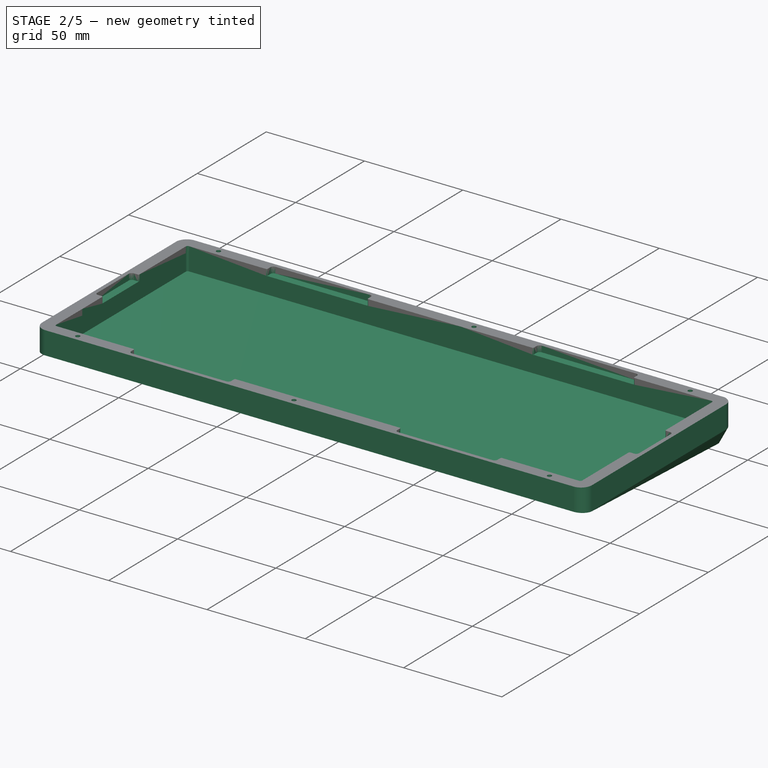
[diagram: stage 2 of 5 — iso view after this stage's code; geometry added in this stage tinted green]
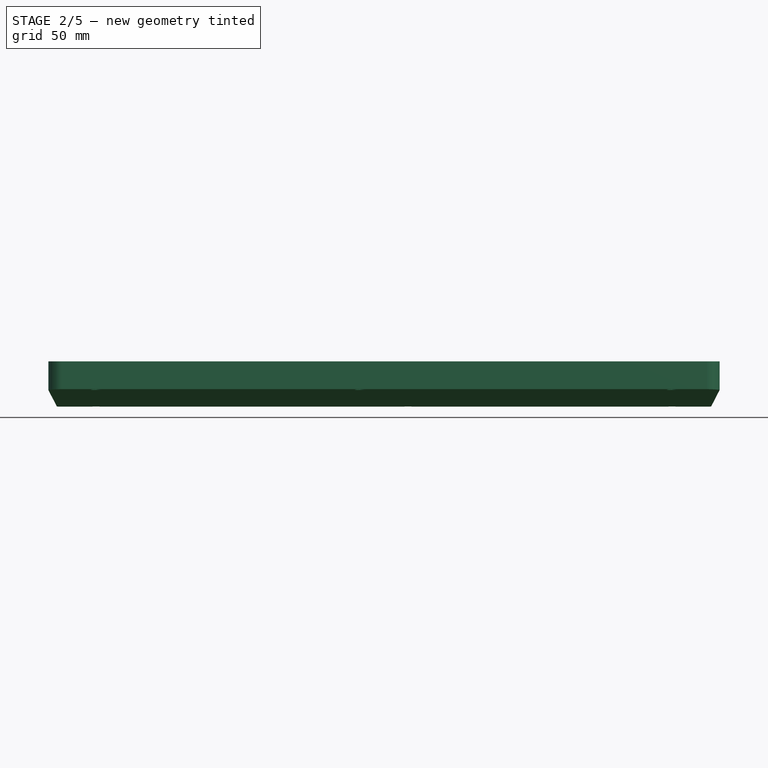
[diagram: stage 2 of 5 — front view after this stage's code; geometry added in this stage tinted green]
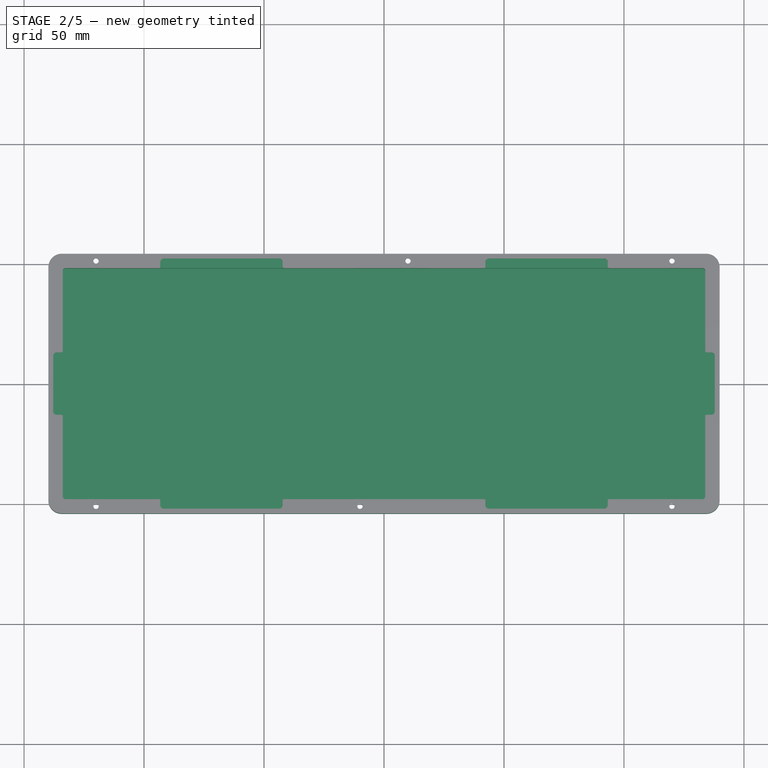
[diagram: stage 2 of 5 — top view after this stage's code; geometry added in this stage tinted green]
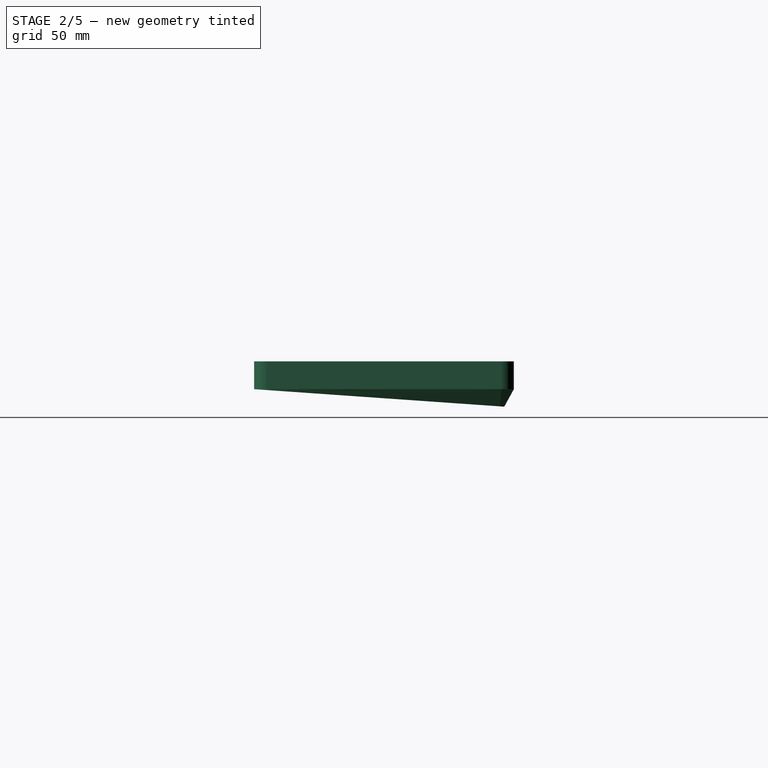
[diagram: stage 2 of 5 — right view after this stage's code; geometry added in this stage tinted green]
FEATURE [Sketcher::SketchObject] Sketch008
  ExternalGeometry = -> [ShapeBinder]
  FullyConstrained = false
  MapMode = 5
  Placement = pos=(0,0,0) rot=(1,0,0;3.14159rad)
  Support = -> [Pocket005]
  expr: Constraints[10] = <<Spreadsheet>>.keySafety
  expr: Constraints[7] = <<Spreadsheet>>.keySafety
  sketch-geometry (49):
    g0: ArcOfCircle CenterX=-91.725 CenterY=50.625 CenterZ=0 NormalX=0 NormalY=0 NormalZ=1 AngleXU=0 Radius=1.5 StartAngle=1.5708 EndAngle=3.14159
    g1: ArcOfCircle CenterX=-93.725 CenterY=48.625 CenterZ=0 NormalX=0 NormalY=0 NormalZ=1 AngleXU=0 Radius=0.5 StartAngle=4.71239 EndAngle=6.28319
    g2: ArcOfCircle CenterX=-43.725 CenterY=50.625 CenterZ=0 NormalX=0 NormalY=0 NormalZ=1 AngleXU=0 Radius=1.5 StartAngle=5e-16 EndAngle=1.5708
    g3: ArcOfCircle CenterX=-41.725 CenterY=48.625 CenterZ=0 NormalX=0 NormalY=0 NormalZ=1 AngleXU=0 Radius=0.5 StartAngle=3.14159 EndAngle=4.71239
    g4: ArcOfCircle CenterX=43.725 CenterY=50.625 CenterZ=0 NormalX=0 NormalY=0 NormalZ=1 AngleXU=0 Radius=1.5 StartAngle=1.5708 EndAngle=3.14159
    g5: ArcOfCircle CenterX=41.725 CenterY=48.625 CenterZ=0 NormalX=0 NormalY=0 NormalZ=1 AngleXU=0 Radius=0.5 StartAngle=4.71239 EndAngle=6.28319
    g6: ArcOfCircle CenterX=93.725 CenterY=48.625 CenterZ=0 NormalX=0 NormalY=0 NormalZ=1 AngleXU=0 Radius=0.5 StartAngle=3.14159 EndAngle=4.71239
    g7: LineSegment StartX=-93.225 StartY=48.625 StartZ=0 EndX=-93.225 EndY=50.625 EndZ=0
    g8: LineSegment StartX=-91.725 StartY=52.125 StartZ=0 EndX=-43.725 EndY=52.125 EndZ=0
    g9: LineSegment StartX=-42.225 StartY=50.625 StartZ=0 EndX=-42.225 EndY=48.625 EndZ=0
    g10: LineSegment StartX=-41.725 StartY=48.125 StartZ=0 EndX=-93.725 EndY=48.125 EndZ=0
    g11: LineSegment StartX=42.225 StartY=50.625 StartZ=0 EndX=42.225 EndY=48.625 EndZ=0
    g12: LineSegment StartX=41.725 StartY=48.125 StartZ=0 EndX=93.725 EndY=48.125 EndZ=0
    g13: LineSegment StartX=93.225 StartY=50.625 StartZ=0 EndX=93.225 EndY=48.625 EndZ=0
    g14: ArcOfCircle CenterX=136.35 CenterY=11.5 CenterZ=0 NormalX=0 NormalY=0 NormalZ=1 AngleXU=0 Radius=1.5 StartAngle=0 EndAngle=1.5708
    g15: ArcOfCircle CenterX=134.35 CenterY=13.5 CenterZ=0 NormalX=0 NormalY=0 NormalZ=1 AngleXU=0 Radius=0.5 StartAngle=3.14159 EndAngle=4.71239
    g16: ArcOfCircle CenterX=136.35 CenterY=-11.5 CenterZ=0 NormalX=0 NormalY=0 NormalZ=1 AngleXU=0 Radius=1.5 StartAngle=4.71239 EndAngle=6.28319
    g17: ArcOfCircle CenterX=134.35 CenterY=-13.5 CenterZ=0 NormalX=0 NormalY=0 NormalZ=1 AngleXU=0 Radius=0.5 StartAngle=1.5708 EndAngle=3.14159
    g18: ArcOfCircle CenterX=93.725 CenterY=-48.625 CenterZ=0 NormalX=0 NormalY=0 NormalZ=1 AngleXU=0 Radius=2.9e-15 StartAngle=6.28274 EndAngle=9.40819
    g19: ArcOfCircle CenterX=93.725 CenterY=-48.625 CenterZ=0 NormalX=0 NormalY=0 NormalZ=1 AngleXU=0 Radius=0.5 StartAngle=1.5708 EndAngle=3.14159
    g20: ArcOfCircle CenterX=91.725 CenterY=-50.625 CenterZ=0 NormalX=0 NormalY=0 NormalZ=1 AngleXU=0 Radius=1.5 StartAngle=4.71239 EndAngle=6.28319
    g21: ArcOfCircle CenterX=43.725 CenterY=-50.625 CenterZ=0 NormalX=0 NormalY=0 NormalZ=1 AngleXU=0 Radius=1.5 StartAngle=3.14159 EndAngle=4.71239
    g22: ArcOfCircle CenterX=41.725 CenterY=-48.625 CenterZ=0 NormalX=0 NormalY=0 NormalZ=1 AngleXU=0 Radius=0.5 StartAngle=4.32606e-08 EndAngle=1.5708
    g23: LineSegment StartX=133.85 StartY=13.5 StartZ=0 EndX=133.85 EndY=-13.5 EndZ=0
    g24: LineSegment StartX=134.35 StartY=-13 StartZ=0 EndX=136.35 EndY=-13 EndZ=0
    g25: LineSegment StartX=137.85 StartY=-11.5 StartZ=0 EndX=137.85 EndY=11.5 EndZ=0
    g26: LineSegment StartX=136.35 StartY=13 StartZ=0 EndX=134.35 EndY=13 EndZ=0
    g27: LineSegment StartX=93.225 StartY=-48.625 StartZ=0 EndX=93.225 EndY=-50.625 EndZ=0
    g28: LineSegment StartX=91.725 StartY=-52.125 StartZ=0 EndX=43.725 EndY=-52.125 EndZ=0
    g29: LineSegment StartX=42.225 StartY=-50.625 StartZ=0 EndX=42.225 EndY=-48.625 EndZ=0
    g30: LineSegment StartX=41.725 StartY=-48.125 StartZ=0 EndX=93.725 EndY=-48.125 EndZ=0
    g31: ArcOfCircle CenterX=-41.725 CenterY=-48.625 CenterZ=0 NormalX=0 NormalY=0 NormalZ=1 AngleXU=0 Radius=0.5 StartAngle=1.5708 EndAngle=3.14159
    g32: ArcOfCircle CenterX=-43.725 CenterY=-50.625 CenterZ=0 NormalX=0 NormalY=0 NormalZ=1 AngleXU=0 Radius=1.5 StartAngle=4.71239 EndAngle=6.28319
    g33: ArcOfCircle CenterX=-91.725 CenterY=-50.625 CenterZ=0 NormalX=0 NormalY=0 NormalZ=1 AngleXU=0 Radius=1.5 StartAngle=3.14159 EndAngle=4.71239
    g34: ArcOfCircle CenterX=-93.725 CenterY=-48.625 CenterZ=0 NormalX=0 NormalY=0 NormalZ=1 AngleXU=0 Radius=0.5 StartAngle=6.28319 EndAngle=7.85398
    g35: ArcOfCircle CenterX=-134.35 CenterY=-13.5 CenterZ=0 NormalX=0 NormalY=0 NormalZ=1 AngleXU=0 Radius=0.5 StartAngle=1.30957e-07 EndAngle=1.5708
    g36: ArcOfCircle CenterX=-136.35 CenterY=-11.5 CenterZ=0 NormalX=0 NormalY=0 NormalZ=1 AngleXU=0 Radius=1.5 StartAngle=3.14159 EndAngle=4.71239
    g37: ArcOfCircle CenterX=-136.35 CenterY=11.5 CenterZ=0 NormalX=0 NormalY=0 NormalZ=1 AngleXU=0 Radius=1.5 StartAngle=1.5708 EndAngle=3.14159
    g38: ArcOfCircle CenterX=-134.35 CenterY=13.5 CenterZ=0 NormalX=0 NormalY=0 NormalZ=1 AngleXU=0 Radius=0.5 StartAngle=4.71239 EndAngle=6.28319
    g39: LineSegment StartX=-42.225 StartY=-48.625 StartZ=0 EndX=-42.225 EndY=-50.625 EndZ=0
    g40: LineSegment StartX=-41.725 StartY=-48.125 StartZ=0 EndX=-93.725 EndY=-48.125 EndZ=0
    g41: LineSegment StartX=-93.225 StartY=-48.625 StartZ=0 EndX=-93.225 EndY=-50.625 EndZ=0
    g42: LineSegment StartX=-91.725 StartY=-52.125 StartZ=0 EndX=-43.725 EndY=-52.125 EndZ=0
    g43: LineSegment StartX=-134.35 StartY=-13 StartZ=0 EndX=-136.35 EndY=-13 EndZ=0
    g44: LineSegment StartX=-133.85 StartY=-13.5 StartZ=0 EndX=-133.85 EndY=13.5 EndZ=0
    g45: LineSegment StartX=-134.35 StartY=13 StartZ=0 EndX=-136.35 EndY=13 EndZ=0
    g46: LineSegment StartX=-137.85 StartY=11.5 StartZ=0 EndX=-137.85 EndY=-11.5 EndZ=0
    g47: ArcOfCircle CenterX=91.725 CenterY=50.625 CenterZ=0 NormalX=0 NormalY=0 NormalZ=1 AngleXU=0 Radius=1.5 StartAngle=-9e-16 EndAngle=1.57079
    g48: LineSegment StartX=91.725 StartY=52.125 StartZ=0 EndX=43.725 EndY=52.125 EndZ=0
  constraints (145):
    c: Coincident(g0,g-3)
    c: Coincident(g1,g-4)
    c: Coincident(g2,g-5)
    c: Coincident(g3,g-6)
    c: Coincident(g4,g-7)
    c: Coincident(g5,g-8)
    c: Coincident(g6,g-10)
    c: DistanceY(g-3,g0) = 0.5
    c: Equal(g0,g2)
    c: Equal(g2,g4)
    c: DistanceX(g1,g-4) = 0.5
    c: Coincident(g7,g1)
    c: Coincident(g7,g0)
    c: Coincident(g8,g0)
    c: Coincident(g8,g2)
    c: Equal(g1,g3)
    c: Equal(g3,g6)
    c: Equal(g6,g5)
    c: Coincident(g9,g2)
    c: Coincident(g9,g3)
    c: Vertical(g9)
    c: Coincident(g10,g3)
    c: Coincident(g10,g1)
    c: Horizontal(g1,g-4)
    c: Horizontal(g0,g-3)
    c: Vertical(g2,g-5)
    c: Vertical(g3,g-6)
    c: Vertical(g0,g-3)
    c: Vertical(g1,g1)
    c: Horizontal(g-5,g2)
    c: Coincident(g11,g4)
    c: Coincident(g11,g5)
    c: Vertical(g11)
    c: Coincident(g12,g5)
    c: Coincident(g12,g6)
    c: Coincident(g13,g6)
    c: Vertical(g13)
    c: Vertical(g4,g-7)
    c: Vertical(g5,g-8)
    c: Vertical(g6,g-10)
    c: Horizontal(g-9,g13)
    c: Horizontal(g-7,g4)
    c: Coincident(g14,g-12)
    c: Coincident(g15,g-11)
    c: Coincident(g16,g-13)
    c: Coincident(g17,g-14)
    c: Coincident(g18,g-15)
    c: Coincident(g18,g-15)
    c: Coincident(g19,g18)
    c: Coincident(g20,g-16)
    c: Coincident(g21,g-17)
    c: Coincident(g22,g-18)
    c: Equal(g14,g16)
    c: Equal(g16,g20)
    c: Equal(g20,g21)
    c: Equal(g15,g17)
    c: Equal(g17,g19)
    c: Equal(g19,g22)
    c: Equal(g22,g6)
    c: Horizontal(g15,g-11)
    c: Coincident(g23,g15)
    c: Coincident(g23,g17)
    c: Coincident(g24,g17)
    c: Coincident(g24,g16)
    c: Horizontal(g24)
    c: Coincident(g25,g16)
    c: Coincident(g25,g14)
    c: Coincident(g26,g14)
    c: Coincident(g26,g15)
    c: Vertical(g14,g-12)
    c: Horizontal(g14,g-12)
    c: Horizontal(g16,g-13)
    c: Vertical(g-14,g17)
    c: Horizontal(g17,g17)
    c: Coincident(g27,g19)
    c: Coincident(g27,g20)
    c: Vertical(g27)
    c: Coincident(g28,g20)
    c: Coincident(g28,g21)
    c: Coincident(g29,g21)
    c: Coincident(g29,g22)
    c: Vertical(g29)
    c: Coincident(g30,g22)
    c: Coincident(g30,g19)
    c: Horizontal(g30)
    c: Vertical(g20,g-16)
    c: Vertical(g21,g-17)
    c: Vertical(g22,g22)
    c: Horizontal(g21,g-17)
    c: Vertical(g-11,g15)
    c: Coincident(g31,g-22)
    c: Coincident(g32,g-21)
    c: Coincident(g33,g-20)
    c: Coincident(g34,g-19)
    c: Coincident(g35,g-26)
    c: Coincident(g36,g-25)
    c: Coincident(g37,g-24)
    c: Coincident(g38,g-23)
    c: Equal(g37,g36)
    c: Equal(g36,g33)
    c: Equal(g33,g32)
    c: Equal(g32,g0)
    c: Equal(g1,g38)
    c: Equal(g38,g35)
    c: Equal(g35,g34)
    c: Equal(g34,g31)
    c: Coincident(g39,g31)
    c: Coincident(g39,g32)
    c: Vertical(g39)
    c: Coincident(g40,g31)
    c: Coincident(g40,g34)
    c: Horizontal(g40)
    c: Tangent(g40,g34)
    c: Coincident(g41,g34)
    c: Coincident(g41,g33)
    c: Vertical(g41)
    c: Coincident(g42,g33)
    c: Coincident(g42,g32)
    c: Horizontal(g42)
    c: Vertical(g32,g-21)
    c: Horizontal(g33,g-20)
    c: Horizontal(g32,g-21)
    c: Coincident(g43,g35)
    c: Coincident(g43,g36)
    c: Horizontal(g43)
    c: Coincident(g44,g35)
    c: Coincident(g44,g38)
    c: Vertical(g44)
    c: Tangent(g44,g35)
    c: Coincident(g45,g38)
    c: Coincident(g45,g37)
    c: Horizontal(g45)
    c: Coincident(g46,g37)
    c: Coincident(g46,g36)
    c: Vertical(g37,g-24)
    c: Vertical(g-25,g36)
    c: Horizontal(g-25,g36)
    c: Horizontal(g37,g-24)
    c: Coincident(g47,g-9)
    c: Equal(g47,g4)
    c: Coincident(g13,g47)
    c: Coincident(g48,g47)
    c: Coincident(g48,g4)
    c: Horizontal(g48)
    c: Equal(g14,g47)
FEATURE [PartDesign::Pocket] Pocket006
  BaseFeature = -> Pocket005
  Length = 1.5
  Length2 = 100
  Profile = -> Sketch008
  Type = 0
  expr: Length = <<Spreadsheet>>.gasketRoom
FEATURE [Sketcher::SketchObject] Sketch015
  ExternalGeometry = -> [Pocket006]
  FullyConstrained = true
  MapMode = 5
  Placement = pos=(0,0,0) rot=(1,0,0;3.14159rad)
  Support = -> [Pocket006]
  expr: Constraints[16] = <<Spreadsheet>>.wallThickness
  sketch-geometry (16):
    g0: ArcOfCircle CenterX=134.35 CenterY=48.625 CenterZ=0 NormalX=0 NormalY=0 NormalZ=1 AngleXU=0 Radius=5.5 StartAngle=6.28318 EndAngle=7.85398
    g1: ArcOfCircle CenterX=134.35 CenterY=48.625 CenterZ=0 NormalX=0 NormalY=0 NormalZ=1 AngleXU=0 Radius=7.5 StartAngle=-1.8e-15 EndAngle=1.5708
    g2: ArcOfCircle CenterX=134.35 CenterY=-48.625 CenterZ=0 NormalX=0 NormalY=0 NormalZ=1 AngleXU=0 Radius=7.5 StartAngle=4.71239 EndAngle=6.28319
    g3: ArcOfCircle CenterX=134.35 CenterY=-48.625 CenterZ=0 NormalX=0 NormalY=0 NormalZ=1 AngleXU=0 Radius=5.5 StartAngle=4.71239 EndAngle=6.28319
    g4: ArcOfCircle CenterX=-134.35 CenterY=-48.625 CenterZ=0 NormalX=0 NormalY=0 NormalZ=1 AngleXU=0 Radius=7.5 StartAngle=3.14159 EndAngle=4.71239
    g5: ArcOfCircle CenterX=-134.35 CenterY=-48.625 CenterZ=0 NormalX=0 NormalY=0 NormalZ=1 AngleXU=0 Radius=5.5 StartAngle=3.14159 EndAngle=4.71239
    g6: ArcOfCircle CenterX=-134.35 CenterY=48.625 CenterZ=0 NormalX=0 NormalY=0 NormalZ=1 AngleXU=0 Radius=7.5 StartAngle=1.5708 EndAngle=3.14159
    g7: ArcOfCircle CenterX=-134.35 CenterY=48.625 CenterZ=0 NormalX=0 NormalY=0 NormalZ=1 AngleXU=0 Radius=5.5 StartAngle=1.5708 EndAngle=3.14159
    g8: LineSegment StartX=-139.85 StartY=48.625 StartZ=0 EndX=-139.85 EndY=-48.625 EndZ=0
    g9: LineSegment StartX=-134.35 StartY=-54.125 StartZ=0 EndX=134.35 EndY=-54.125 EndZ=0
    g10: LineSegment StartX=139.85 StartY=-48.625 StartZ=0 EndX=139.85 EndY=48.625 EndZ=0
    g11: LineSegment StartX=134.35 StartY=54.125 StartZ=0 EndX=-134.35 EndY=54.125 EndZ=0
    g12: LineSegment StartX=-141.85 StartY=48.625 StartZ=0 EndX=-141.85 EndY=-48.625 EndZ=0
    g13: LineSegment StartX=-134.35 StartY=56.125 StartZ=0 EndX=134.35 EndY=56.125 EndZ=0
    g14: LineSegment StartX=141.85 StartY=48.625 StartZ=0 EndX=141.85 EndY=-48.625 EndZ=0
    g15: LineSegment StartX=134.35 StartY=-56.125 StartZ=0 EndX=-134.35 EndY=-56.125 EndZ=0
  constraints (44):
    c: Coincident(g0,g-6)
    c: Coincident(g1,g0)
    c: Coincident(g1,g-6)
    c: Coincident(g1,g-6)
    c: Coincident(g2,g-5)
    c: Coincident(g2,g-5)
    c: Coincident(g2,g-5)
    c: Coincident(g3,g2)
    c: Coincident(g4,g-4)
    c: Coincident(g4,g-4)
    c: Coincident(g4,g-4)
    c: Coincident(g5,g4)
    c: Coincident(g6,g-3)
    c: Coincident(g6,g-3)
    c: Coincident(g6,g-3)
    c: Coincident(g7,g6)
    c: DistanceY(g7,g6) = 2
    c: Coincident(g8,g7)
    c: Coincident(g8,g5)
    c: Vertical(g8)
    c: Coincident(g9,g5)
    c: Coincident(g9,g3)
    c: Horizontal(g9)
    c: Coincident(g10,g3)
    c: Coincident(g10,g0)
    c: Vertical(g10)
    c: Coincident(g11,g0)
    c: Coincident(g11,g7)
    c: Horizontal(g11)
    c: Horizontal(g5,g4)
    c: Vertical(g5,g4)
    c: Vertical(g7,g6)
    c: Horizontal(g7,g6)
    c: Vertical(g1,g0)
    c: Horizontal(g3,g2)
    c: Coincident(g12,g6)
    c: Coincident(g12,g4)
    c: Coincident(g13,g6)
    c: Coincident(g13,g1)
    c: Coincident(g14,g1)
    c: Coincident(g14,g2)
    c: Coincident(g15,g2)
    c: Coincident(g15,g4)
    c: Vertical(g3,g2)
FEATURE [PartDesign::Pad] Pad003
  BaseFeature = -> Pocket006
  Direction = (0,0,-1)
  Length = 15.8
  Length2 = 100
  Profile = -> Sketch015
  ReferenceAxis = -> Sketch015 [N_Axis]
  Type = 0
  expr: Length = 8.800000000000001 + 7
FEATURE [Sketcher::SketchObject] Sketch016
  ExternalGeometry = -> [Pad003]
  FullyConstrained = true
  MapMode = 5
  Placement = pos=(0,0,0) rot=(1,0,0;3.14159rad)
  Support = -> [Pad003]
  sketch-geometry (12):
    g0: Circle CenterX=-120 CenterY=51.125 CenterZ=0 NormalX=0 NormalY=0 NormalZ=1 AngleXU=0 Radius=1.6
    g1: Circle CenterX=-10 CenterY=51.125 CenterZ=0 NormalX=0 NormalY=0 NormalZ=1 AngleXU=0 Radius=1.6
    g2: Circle CenterX=120 CenterY=51.125 CenterZ=0 NormalX=0 NormalY=0 NormalZ=1 AngleXU=0 Radius=1.6
    g3: Circle CenterX=-120 CenterY=-51.125 CenterZ=0 NormalX=0 NormalY=0 NormalZ=1 AngleXU=0 Radius=1.6
    g4: Circle CenterX=10 CenterY=-51.125 CenterZ=0 NormalX=0 NormalY=0 NormalZ=1 AngleXU=0 Radius=1.6
    g5: Circle CenterX=120 CenterY=-51.125 CenterZ=0 NormalX=0 NormalY=0 NormalZ=1 AngleXU=0 Radius=1.6
    g6: LineSegment StartX=-10 StartY=54.125 StartZ=0 EndX=-10 EndY=48.125 EndZ=0
    g7: LineSegment StartX=10 StartY=-48.125 StartZ=0 EndX=10 EndY=-54.125 EndZ=0
    g8: LineSegment StartX=120 StartY=51.125 StartZ=0 EndX=0 EndY=51.125 EndZ=0
    g9: LineSegment StartX=0 StartY=51.125 StartZ=0 EndX=-120 EndY=51.125 EndZ=0
    g10: LineSegment StartX=0 StartY=-51.125 StartZ=0 EndX=-120 EndY=-51.125 EndZ=0
    g11: LineSegment StartX=0 StartY=-51.125 StartZ=0 EndX=120 EndY=-51.125 EndZ=0
  constraints (34):
    c: Radius(g0) = 1.6
    c: Equal(g1,g0)
    c: Equal(g0,g2)
    c: Equal(g2,g5)
    c: Equal(g5,g4)
    c: Equal(g4,g3)
    c: PointOnObject(g6,g-3)
    c: PointOnObject(g6,g-4)
    c: Vertical(g6)
    c: Symmetric(g6,g6,g1)
    c: DistanceX(g1,g-1) = 10
    c: PointOnObject(g7,g-5)
    c: PointOnObject(g7,g-6)
    c: Vertical(g7)
    c: Symmetric(g7,g7,g4)
    c: DistanceX(g-1,g4) = 10
    c: Horizontal(g0,g1)
    c: Horizontal(g1,g2)
    c: Coincident(g8,g2)
    c: PointOnObject(g8,g-2)
    c: Horizontal(g8)
    c: Coincident(g9,g8)
    c: Coincident(g9,g0)
    c: PointOnObject(g10,g-2)
    c: Coincident(g10,g3)
    c: Horizontal(g10)
    c: Coincident(g11,g10)
    c: Coincident(g11,g5)
    c: Horizontal(g11)
    c: Horizontal(g5,g4)
    c: DistanceX(g9,g9) = 120
    c: Equal(g10,g9)
    c: Equal(g9,g8)
    c: Equal(g8,g11)
FEATURE [PartDesign::Pocket] Pocket008
  BaseFeature = -> Pad003
  Length = 5
  Length2 = 100
  Profile = -> Sketch016
  Type = 0
FEATURE [PartDesign::ShapeBinder] ShapeBinder001
  Support = -> [Pocket008]
  TraceSupport = false
FEATURE [PartDesign::Pad] Pad004
  Direction = (0,0,-1)
  Length = 3.1
  Length2 = 100
  Profile = -> ShapeBinder001
  Type = 0
  expr: Length = <<Spreadsheet>>.plateThickness + <<Spreadsheet>>.gasketRoom
FEATURE [Sketcher::SketchObject] Sketch021
  ExternalGeometry = -> [Pad004]
  FullyConstrained = true
  MapMode = 5
  Placement = pos=(0,0,-3.1) rot=(1,0,0;3.14159rad)
  Support = -> [Pad004]
  sketch-geometry (22):
    g0: ArcOfCircle CenterX=-132.85 CenterY=47.125 CenterZ=0 NormalX=0 NormalY=0 NormalZ=1 AngleXU=0 Radius=1 StartAngle=1.5708 EndAngle=3.14159
    g1: ArcOfCircle CenterX=-134.35 CenterY=48.625 CenterZ=0 NormalX=0 NormalY=0 NormalZ=1 AngleXU=0 Radius=5.5 StartAngle=1.5708 EndAngle=3.14159
    g2: ArcOfCircle CenterX=-134.35 CenterY=-48.625 CenterZ=0 NormalX=0 NormalY=0 NormalZ=1 AngleXU=0 Radius=5.5 StartAngle=3.14159 EndAngle=4.71239
    g3: ArcOfCircle CenterX=-132.85 CenterY=-47.125 CenterZ=0 NormalX=0 NormalY=0 NormalZ=1 AngleXU=0 Radius=1 StartAngle=3.14159 EndAngle=4.71239
    g4: ArcOfCircle CenterX=134.35 CenterY=-48.625 CenterZ=0 NormalX=0 NormalY=0 NormalZ=1 AngleXU=0 Radius=5.5 StartAngle=4.71239 EndAngle=6.28319
    g5: ArcOfCircle CenterX=134.35 CenterY=48.625 CenterZ=0 NormalX=0 NormalY=0 NormalZ=1 AngleXU=0 Radius=5.5 StartAngle=6.28318 EndAngle=7.85398
    g6: LineSegment StartX=134.35 StartY=54.125 StartZ=0 EndX=-134.35 EndY=54.125 EndZ=0
    g7: LineSegment StartX=-139.85 StartY=48.625 StartZ=0 EndX=-139.85 EndY=-48.625 EndZ=0
    g8: LineSegment StartX=-134.35 StartY=-54.125 StartZ=0 EndX=134.35 EndY=-54.125 EndZ=0
    g9: LineSegment StartX=139.85 StartY=-48.625 StartZ=0 EndX=139.85 EndY=48.625 EndZ=0
    g10: ArcOfCircle CenterX=132.85 CenterY=47.125 CenterZ=0 NormalX=0 NormalY=0 NormalZ=1 AngleXU=0 Radius=1 StartAngle=0 EndAngle=1.5708
    g11: LineSegment StartX=132.85 StartY=48.125 StartZ=0 EndX=-132.85 EndY=48.125 EndZ=0
    g12: LineSegment StartX=-133.85 StartY=47.125 StartZ=0 EndX=-133.85 EndY=-47.125 EndZ=0
    g13: ArcOfCircle CenterX=132.85 CenterY=-47.125 CenterZ=0 NormalX=0 NormalY=0 NormalZ=1 AngleXU=0 Radius=1 StartAngle=4.71239 EndAngle=6.28319
    g14: LineSegment StartX=132.85 StartY=-48.125 StartZ=0 EndX=-132.85 EndY=-48.125 EndZ=0
    g15: LineSegment StartX=133.85 StartY=-47.125 StartZ=0 EndX=133.85 EndY=47.125 EndZ=0
    g16: Circle CenterX=-120 CenterY=51.125 CenterZ=0 NormalX=0 NormalY=0 NormalZ=1 AngleXU=0 Radius=1.1
    g17: Circle CenterX=-10 CenterY=51.125 CenterZ=0 NormalX=0 NormalY=0 NormalZ=1 AngleXU=0 Radius=1.1
    g18: Circle CenterX=120 CenterY=51.125 CenterZ=0 NormalX=0 NormalY=0 NormalZ=1 AngleXU=0 Radius=1.1
    g19: Circle CenterX=120 CenterY=-51.125 CenterZ=0 NormalX=0 NormalY=0 NormalZ=1 AngleXU=0 Radius=1.1
    g20: Circle CenterX=10 CenterY=-51.125 CenterZ=0 NormalX=0 NormalY=0 NormalZ=1 AngleXU=0 Radius=1.1
    g21: Circle CenterX=-120 CenterY=-51.125 CenterZ=0 NormalX=0 NormalY=0 NormalZ=1 AngleXU=0 Radius=1.1
  constraints (52):
    c: Coincident(g0,g-4)
    c: Coincident(g0,g-4)
    c: Coincident(g0,g-4)
    c: Coincident(g1,g-3)
    c: Coincident(g1,g-3)
    c: Coincident(g1,g-3)
    c: Coincident(g2,g-12)
    c: Coincident(g2,g-12)
    c: Coincident(g2,g-12)
    c: Coincident(g3,g-11)
    c: Coincident(g3,g-11)
    c: Coincident(g3,g-11)
    c: Coincident(g4,g-13)
    c: Coincident(g4,g-13)
    c: Coincident(g4,g-13)
    c: Coincident(g5,g-14)
    c: Coincident(g5,g-14)
    c: Coincident(g5,g-14)
    c: Coincident(g6,g5)
    c: Coincident(g6,g1)
    c: Coincident(g7,g1)
    c: Coincident(g7,g2)
    c: Coincident(g8,g2)
    c: Coincident(g8,g4)
    c: Coincident(g9,g4)
    c: Coincident(g9,g5)
    c: Coincident(g10,g-15)
    c: Coincident(g10,g-15)
    c: Coincident(g10,g-15)
    c: Coincident(g11,g10)
    c: Coincident(g11,g0)
    c: Coincident(g12,g0)
    c: Coincident(g12,g3)
    c: Coincident(g13,g-16)
    c: Coincident(g13,g-16)
    c: Coincident(g13,g-16)
    c: Coincident(g14,g13)
    c: Coincident(g14,g3)
    c: Coincident(g15,g13)
    c: Coincident(g15,g10)
    c: Coincident(g16,g-5)
    c: Coincident(g17,g-6)
    c: Coincident(g18,g-7)
    c: Coincident(g19,g-8)
    c: Coincident(g20,g-10)
    c: Coincident(g21,g-9)
    c: Radius(g16) = 1.1
    c: Equal(g16,g17)
    c: Equal(g17,g18)
    c: Equal(g18,g19)
    c: Equal(g19,g20)
    c: Equal(g20,g21)
FEATURE [PartDesign::Pad] Pad005
  BaseFeature = -> Pad004
  Direction = (0,0,-1)
  Length = 8.5
  Length2 = 100
  Profile = -> Sketch021
  ReferenceAxis = -> Sketch021 [N_Axis]
  Type = 0
  expr: Length = <<Spreadsheet>>.depthBelowPcb - <<Spreadsheet>>.gasketRoom + <<Spreadsheet>>.keySafety + 1
FEATURE [PartDesign::Plane] DatumPlane
  AttachmentOffset = pos=(0,0,0) rot=(0.998783,-0.034878,-0.034878;1.57201rad)
  Length = 146.789
  MapMode = 7
  Placement = pos=(134.35,-54.125,-11.6) rot=(0.706891,0.706891,-0.024685;3.09223rad)
  ResizeMode = 0
  Support = -> [Pad005]
  Width = 315.015
  expr: .AttachmentOffset.Rotation.Yaw = -<<Spreadsheet>>.angle
FEATURE [Sketcher::SketchObject] Sketch022
  ExternalGeometry = -> [Pad005]
  FullyConstrained = true
  MapMode = 5
  Placement = pos=(0,0,-11.6) rot=(1,0,0;3.14159rad)
  Support = -> [Pad005]
  sketch-geometry (8):
    g0: ArcOfCircle CenterX=134.35 CenterY=48.625 CenterZ=0 NormalX=0 NormalY=0 NormalZ=1 AngleXU=0 Radius=5.5 StartAngle=6.28318 EndAngle=7.85398
    g1: ArcOfCircle CenterX=-134.35 CenterY=48.625 CenterZ=0 NormalX=0 NormalY=0 NormalZ=1 AngleXU=0 Radius=5.5 StartAngle=1.5708 EndAngle=3.14159
    g2: ArcOfCircle CenterX=-134.35 CenterY=-48.625 CenterZ=0 NormalX=0 NormalY=0 NormalZ=1 AngleXU=0 Radius=5.5 StartAngle=3.14159 EndAngle=4.71239
    g3: ArcOfCircle CenterX=134.35 CenterY=-48.625 CenterZ=0 NormalX=0 NormalY=0 NormalZ=1 AngleXU=0 Radius=5.5 StartAngle=4.71239 EndAngle=6.28319
    g4: LineSegment StartX=139.85 StartY=48.625 StartZ=0 EndX=139.85 EndY=-48.625 EndZ=0
    g5: LineSegment StartX=134.35 StartY=-54.125 StartZ=0 EndX=-134.35 EndY=-54.125 EndZ=0
    g6: LineSegment StartX=-139.85 StartY=-48.625 StartZ=0 EndX=-139.85 EndY=48.625 EndZ=0
    g7: LineSegment StartX=-134.35 StartY=54.125 StartZ=0 EndX=134.35 EndY=54.125 EndZ=0
  constraints (20):
    c: Coincident(g0,g-6)
    c: Coincident(g0,g-6)
    c: Coincident(g0,g-6)
    c: Coincident(g1,g-3)
    c: Coincident(g1,g-3)
    c: Coincident(g1,g-3)
    c: Coincident(g2,g-4)
    c: Coincident(g2,g-4)
    c: Coincident(g2,g-4)
    c: Coincident(g3,g-5)
    c: Coincident(g3,g-5)
    c: Coincident(g3,g-5)
    c: Coincident(g4,g0)
    c: Coincident(g4,g3)
    c: Coincident(g5,g3)
    c: Coincident(g5,g2)
    c: Coincident(g6,g2)
    c: Coincident(g6,g1)
    c: Coincident(g7,g1)
    c: Coincident(g7,g0)
FEATURE [Sketcher::SketchObject] Sketch023
  ExternalGeometry = -> [Pad005]
  FullyConstrained = true
  MapMode = 5
  Placement = pos=(134.35,-54.125,-11.6) rot=(0.706891,0.706891,-0.024685;3.09223rad)
  Support = -> [DatumPlane]
  expr: Constraints[15] = <<Spreadsheet>>.inset + 1
  sketch-geometry (10):
    g0: ArcOfCircle CenterX=5.5 CenterY=1.62403e-05 CenterZ=0 NormalX=0 NormalY=0 NormalZ=1 AngleXU=0 Radius=5.5 StartAngle=1.57323 EndAngle=3.1416
    g1: ArcOfCircle CenterX=5.5 CenterY=-268.7 CenterZ=0 NormalX=0 NormalY=0 NormalZ=1 AngleXU=0 Radius=5.5 StartAngle=3.14159 EndAngle=4.70995
    g2: ArcOfCircle CenterX=102.486 CenterY=1.63181e-05 CenterZ=0 NormalX=0 NormalY=0 NormalZ=1 AngleXU=0 Radius=2.00003 StartAngle=6.28318 EndAngle=7.84728
    g3: ArcOfCircle CenterX=102.486 CenterY=1.63181e-05 CenterZ=0 NormalX=0 NormalY=0 NormalZ=1 AngleXU=0 Radius=5.5 StartAngle=6.28318 EndAngle=7.85155
    g4: ArcOfCircle CenterX=102.486 CenterY=-268.7 CenterZ=0 NormalX=0 NormalY=0 NormalZ=1 AngleXU=0 Radius=5.5 StartAngle=4.71482 EndAngle=6.28319
    g5: ArcOfCircle CenterX=102.486 CenterY=-268.7 CenterZ=0 NormalX=0 NormalY=0 NormalZ=1 AngleXU=0 Radius=2.00003 StartAngle=4.71909 EndAngle=6.28319
    g6: LineSegment StartX=104.486 StartY=-268.7 StartZ=0 EndX=104.486 EndY=0 EndZ=0
    g7: LineSegment StartX=102.5 StartY=2 StartZ=0 EndX=5.48663 EndY=5.5 EndZ=0
    g8: LineSegment StartX=5.4866 StartY=-274.2 StartZ=0 EndX=102.5 EndY=-270.7 EndZ=0
    g9: LineSegment StartX=0 StartY=-1e-16 StartZ=0 EndX=1.42e-14 EndY=-268.7 EndZ=0
  constraints (28):
    c: Coincident(g0,g-1)
    c: Coincident(g0,g-6)
    c: Coincident(g1,g-5)
    c: Coincident(g1,g-4)
    c: Equal(g1,g0)
    c: Coincident(g3,g-6)
    c: Coincident(g3,g-3)
    c: Coincident(g4,g-4)
    c: Coincident(g4,g-3)
    c: Equal(g4,g3)
    c: Equal(g3,g0)
    c: Radius(g0) = 5.5
    c: Coincident(g3,g2)
    c: Horizontal(g2,g3)
    c: Vertical(g2,g3)
    c: DistanceY(g2,g3) = 3.5
    c: Coincident(g5,g4)
    c: Equal(g5,g2)
    c: Horizontal(g5,g4)
    c: Vertical(g4,g5)
    c: Coincident(g6,g5)
    c: Coincident(g6,g2)
    c: Coincident(g7,g2)
    c: Coincident(g7,g0)
    c: Coincident(g8,g1)
    c: Coincident(g8,g5)
    c: Coincident(g9,g0)
    c: Coincident(g9,g1)
FEATURE [PartDesign::AdditiveLoft] AdditiveLoft
  BaseFeature = -> Pad005
  Closed = false
  Profile = -> Sketch022
  Ruled = false
  Sections = -> [Sketch023]
FEATURE [PartDesign::Pad] Pad006
  BaseFeature = -> AdditiveLoft
  Direction = (0,0,1)
  Length = 3.1
  Length2 = 100
  Profile = -> Pad005 [Face104,Face89,Face88,Face85,Face86,Face87]
  Type = 0
  expr: Length = <<Spreadsheet>>.plateThickness + <<Spreadsheet>>.gasketRoom
FEATURE [PartDesign::Pocket] Pocket009
  BaseFeature = -> Pad006
  Length = 20
  Length2 = 100
  Profile = -> Pad006 [Edge102,Edge223,Edge101,Edge98,Edge99,Edge100]
  Type = 0
FEATURE [PartDesign::Plane] DatumPlane001
  Length = 143.051
  MapMode = 11
  Placement = pos=(-120,51.125,-3.1) rot=(0.707107,-0.707107,0;3.14159rad)
  ResizeMode = 0
  Support = -> [Pocket009]
  Width = 314.501
FEATURE [Sketcher::SketchObject] Sketch024
  ExternalGeometry = -> [Pocket009]
  FullyConstrained = true
  MapMode = 5
  Placement = pos=(-120,51.125,-3.1) rot=(0.707107,-0.707107,0;3.14159rad)
  Support = -> [DatumPlane001]
  sketch-geometry (6):
    g0: Circle CenterX=0 CenterY=0 CenterZ=0 NormalX=0 NormalY=0 NormalZ=1 AngleXU=0 Radius=2.2
    g1: Circle CenterX=2.84e-14 CenterY=-130 CenterZ=0 NormalX=0 NormalY=0 NormalZ=1 AngleXU=0 Radius=2.2
    g2: Circle CenterX=5.68e-14 CenterY=-240 CenterZ=0 NormalX=0 NormalY=0 NormalZ=1 AngleXU=0 Radius=2.2
    g3: Circle CenterX=102.25 CenterY=-240 CenterZ=0 NormalX=0 NormalY=0 NormalZ=1 AngleXU=0 Radius=2.2
    g4: Circle CenterX=102.25 CenterY=-110 CenterZ=0 NormalX=0 NormalY=0 NormalZ=1 AngleXU=0 Radius=2.2
    g5: Circle CenterX=102.25 CenterY=2.84e-14 CenterZ=0 NormalX=0 NormalY=0 NormalZ=1 AngleXU=0 Radius=2.2
  constraints (12):
    c: Coincident(g0,g-1)
    c: Coincident(g1,g-4)
    c: Coincident(g2,g-5)
    c: Coincident(g3,g-6)
    c: Coincident(g4,g-7)
    c: Coincident(g5,g-8)
    c: Equal(g5,g0)
    c: Equal(g0,g1)
    c: Equal(g1,g2)
    c: Equal(g2,g3)
    c: Equal(g3,g4)
    c: Radius(g0) = 2.2
FEATURE [PartDesign::Pocket] Pocket010
  BaseFeature = -> Pocket009
  Length = 20
  Length2 = 100
  Profile = -> Sketch024
  Reversed = true
  Type = 0
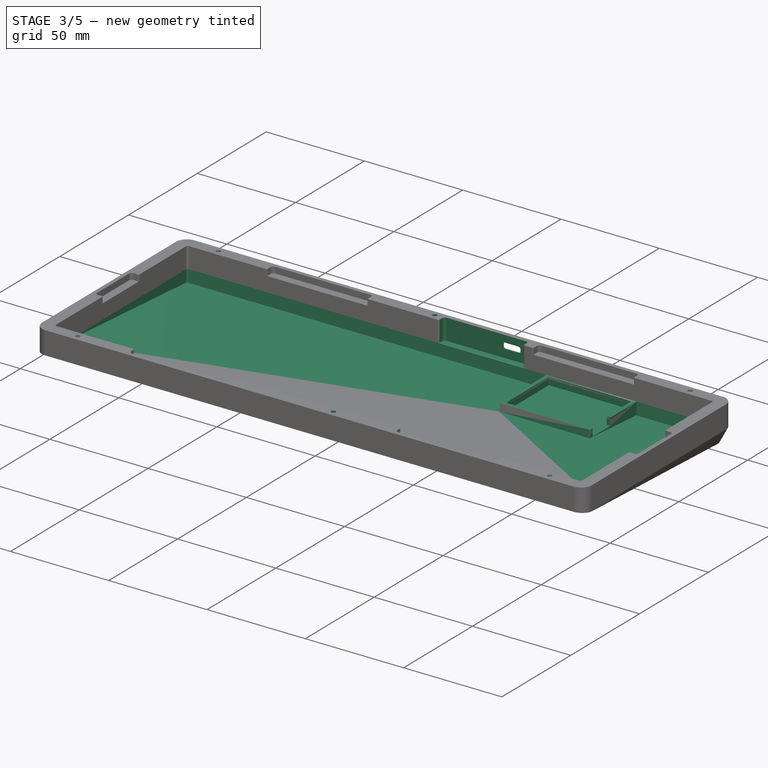
[diagram: stage 3 of 5 — iso view after this stage's code; geometry added in this stage tinted green]
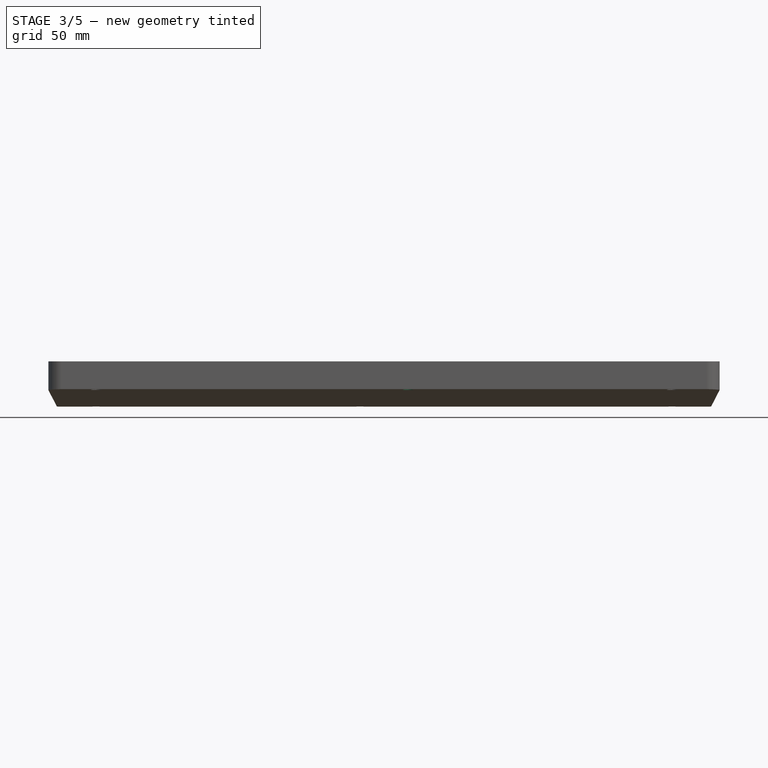
[diagram: stage 3 of 5 — front view after this stage's code; geometry added in this stage tinted green]
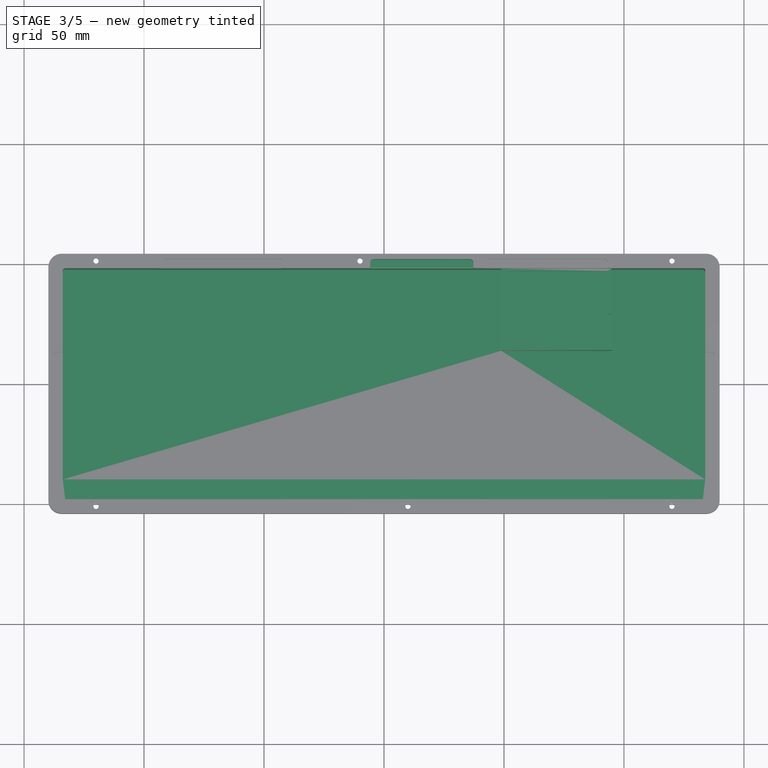
[diagram: stage 3 of 5 — top view after this stage's code; geometry added in this stage tinted green]
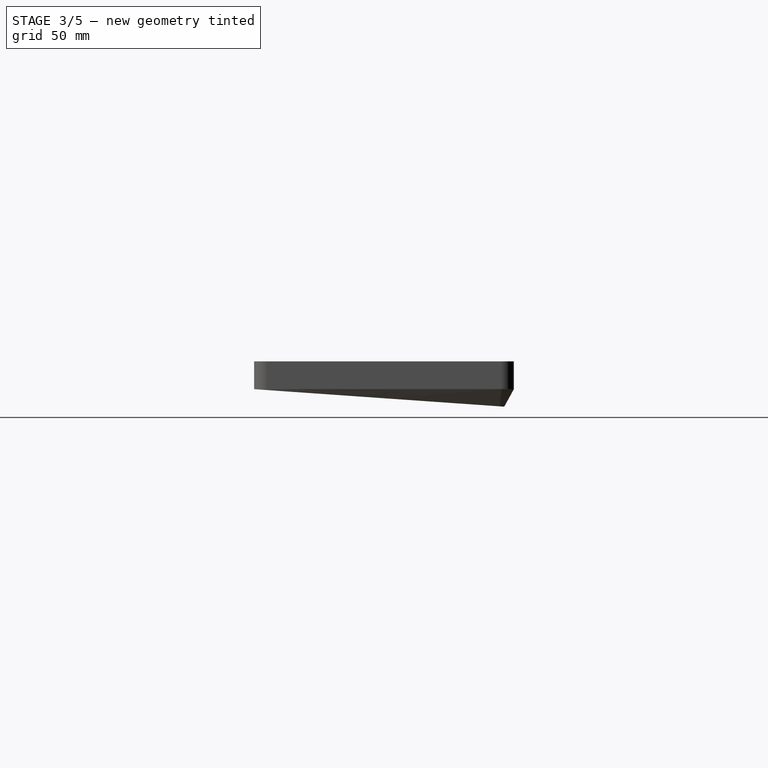
[diagram: stage 3 of 5 — right view after this stage's code; geometry added in this stage tinted green]
FEATURE [Sketcher::SketchObject] Sketch027
  ExternalGeometry = -> [Pocket010]
  FullyConstrained = true
  MapMode = 5
  Placement = pos=(0,0,-11.6) rot=(0,0,1;0rad)
  Support = -> [Pocket010]
  sketch-geometry (8):
    g0: LineSegment StartX=-92.85 StartY=47.125 StartZ=0 EndX=-50.85 EndY=47.125 EndZ=0
    g1: LineSegment StartX=-50.85 StartY=47.125 StartZ=0 EndX=-50.85 EndY=16.125 EndZ=0
    g2: LineSegment StartX=-110.1 StartY=16.125 StartZ=0 EndX=-110.1 EndY=39.125 EndZ=0
    g3: LineSegment StartX=-110.1 StartY=39.125 StartZ=0 EndX=-100.6 EndY=39.125 EndZ=0
    g4: LineSegment StartX=-100.6 StartY=39.125 StartZ=0 EndX=-100.6 EndY=29.125 EndZ=0
    g5: LineSegment StartX=-100.6 StartY=29.125 StartZ=0 EndX=-92.85 EndY=29.125 EndZ=0
    g6: LineSegment StartX=-92.85 StartY=29.125 StartZ=0 EndX=-92.85 EndY=47.125 EndZ=0
    g7: LineSegment StartX=-50.85 StartY=16.125 StartZ=0 EndX=-110.1 EndY=16.125 EndZ=0
  constraints (24):
    c: Coincident(g0,g1)
    c: Horizontal(g0)
    c: Vertical(g1)
    c: DistanceX(g0,g0) = 42
    c: DistanceX(g-3,g0) = 40
    c: DistanceY(g1,g1) = 31
    c: Vertical(g2)
    c: Horizontal(g3)
    c: Vertical(g4)
    c: Horizontal(g5)
    c: Vertical(g6)
    c: Coincident(g5,g6)
    c: Coincident(g0,g6)
    c: Coincident(g4,g3)
    c: Coincident(g3,g2)
    c: DistanceX(g3,g3) = 9.5
    c: Coincident(g4,g5)
    c: DistanceY(g6,g6) = 18
    c: DistanceX(g5,g5) = 7.75
    c: Coincident(g7,g1)
    c: Coincident(g7,g2)
    c: Horizontal(g7)
    c: DistanceY(g2,g2) = 23
    c: Horizontal(g-3,g0)
FEATURE [PartDesign::Pocket] Pocket012
  BaseFeature = -> Pocket010
  Length = 3.8
  Length2 = 100
  Profile = -> Sketch027
  Type = 0
FEATURE [Sketcher::SketchObject] Sketch028
  ExternalGeometry = -> [Pocket012]
  FullyConstrained = true
  MapMode = 5
  Support = -> [Pocket012]
  sketch-geometry (10):
    g0: LineSegment StartX=-37.225 StartY=48.625 StartZ=0 EndX=-37.225 EndY=50.375 EndZ=0
    g1: LineSegment StartX=-35.725 StartY=51.875 StartZ=0 EndX=4.275 EndY=51.875 EndZ=0
    g2: LineSegment StartX=5.775 StartY=50.375 StartZ=0 EndX=5.775 EndY=48.625 EndZ=0
    g3: ArcOfCircle CenterX=-35.725 CenterY=50.375 CenterZ=0 NormalX=0 NormalY=0 NormalZ=1 AngleXU=0 Radius=1.5 StartAngle=1.5708 EndAngle=3.14159
    g4: GeomPoint X=-37.225 Y=51.875 Z=0
    g5: ArcOfCircle CenterX=4.275 CenterY=50.375 CenterZ=0 NormalX=0 NormalY=0 NormalZ=1 AngleXU=0 Radius=1.5 StartAngle=-9e-16 EndAngle=1.5708
    g6: GeomPoint X=5.775 Y=51.875 Z=0
    g7: LineSegment StartX=-37.725 StartY=48.125 StartZ=0 EndX=6.275 EndY=48.125 EndZ=0
    g8: ArcOfCircle CenterX=6.275 CenterY=48.625 CenterZ=0 NormalX=0 NormalY=0 NormalZ=1 AngleXU=0 Radius=0.5 StartAngle=3.14159 EndAngle=4.71239
    g9: ArcOfCircle CenterX=-37.725 CenterY=48.625 CenterZ=0 NormalX=0 NormalY=0 NormalZ=1 AngleXU=0 Radius=0.5 StartAngle=4.71239 EndAngle=6.28319
  constraints (26):
    c: Vertical(g0)
    c: Horizontal(g1)
    c: Vertical(g2)
    c: PointOnObject(g4,g0)
    c: PointOnObject(g4,g1)
    c: Tangent(g0,g3) = 1.5708
    c: Tangent(g1,g3) = 1.5708
    c: PointOnObject(g6,g1)
    c: PointOnObject(g6,g2)
    c: Tangent(g1,g5) = 1.5708
    c: Tangent(g2,g5) = 1.5708
    c: PointOnObject(g7,g-3)
    c: Tangent(g2,g8) = -1.5708
    c: Coincident(g7,g8) = 1.5708
    c: Tangent(g0,g9) = -1.5708
    c: Equal(g9,g8)
    c: Equal(g8,g-5)
    c: Equal(g3,g-6)
    c: Equal(g-6,g5)
    c: Horizontal(g9,g-5)
    c: Horizontal(g-5,g8)
    c: Coincident(g7,g9)
    c: PointOnObject(g7,g-3)
    c: DistanceX(g-6,g0) = 5
    c: DistanceX(g4,g6) = 43
    c: DistanceY(g0,g0) = 1.75
FEATURE [PartDesign::Pocket] Pocket013
  BaseFeature = -> Pocket012
  Length = 10.6
  Length2 = 100
  Profile = -> Sketch028
  Type = 0
  expr: Length = <<Spreadsheet>>.plateThickness + <<Spreadsheet>>.depthBelowPcb + <<Spreadsheet>>.keySafety
FEATURE [Sketcher::SketchObject] Sketch029
  ExternalGeometry = -> [Pocket013]
  FullyConstrained = true
  MapMode = 5
  Placement = pos=(0,54.125,0) rot=(0,0.707107,0.707107;3.14159rad)
  Support = -> [Pocket013]
  expr: Constraints[29] = <<Spreadsheet>>.plateThickness + 5 - 1.6
  sketch-geometry (13):
    g0: LineSegment StartX=25.2 StartY=-3.5 StartZ=0 EndX=32 EndY=-3.5 EndZ=0
    g1: LineSegment StartX=33.1 StartY=-4.6 StartZ=0 EndX=33.1 EndY=-5.4 EndZ=0
    g2: LineSegment StartX=32 StartY=-6.5 StartZ=0 EndX=25.2 EndY=-6.5 EndZ=0
    g3: LineSegment StartX=24.1 StartY=-5.4 StartZ=0 EndX=24.1 EndY=-4.6 EndZ=0
    g4: ArcOfCircle CenterX=32 CenterY=-4.6 CenterZ=0 NormalX=0 NormalY=0 NormalZ=1 AngleXU=0 Radius=1.1 StartAngle=2e-16 EndAngle=1.5708
    g5: GeomPoint X=33.1 Y=-3.5 Z=0
    g6: ArcOfCircle CenterX=25.2 CenterY=-4.6 CenterZ=0 NormalX=0 NormalY=0 NormalZ=1 AngleXU=0 Radius=1.1 StartAngle=1.5708 EndAngle=3.14159
    g7: GeomPoint X=24.1 Y=-3.5 Z=0
    g8: ArcOfCircle CenterX=25.2 CenterY=-5.4 CenterZ=0 NormalX=0 NormalY=0 NormalZ=1 AngleXU=0 Radius=1.1 StartAngle=3.14159 EndAngle=4.71239
    g9: GeomPoint X=24.1 Y=-6.5 Z=0
    g10: ArcOfCircle CenterX=32 CenterY=-5.4 CenterZ=0 NormalX=0 NormalY=0 NormalZ=1 AngleXU=0 Radius=1.1 StartAngle=4.71239 EndAngle=6.28319
    g11: GeomPoint X=33.1 Y=-6.5 Z=0
    g12: LineSegment StartX=33.1 StartY=-5 StartZ=0 EndX=24.1 EndY=-5 EndZ=0
  constraints (31):
    c: Horizontal(g0)
    c: Horizontal(g2)
    c: Vertical(g1)
    c: Vertical(g3)
    c: DistanceY(g9,g7) = 3
    c: DistanceX(g7,g5) = 9
    c: PointOnObject(g5,g0)
    c: PointOnObject(g5,g1)
    c: Tangent(g0,g4) = 1.5708
    c: Tangent(g1,g4) = 1.5708
    c: PointOnObject(g7,g0)
    c: PointOnObject(g7,g3)
    c: Tangent(g0,g6) = 1.5708
    c: Tangent(g3,g6) = 1.5708
    c: PointOnObject(g9,g2)
    c: PointOnObject(g9,g3)
    c: Tangent(g2,g8) = 1.5708
    c: Tangent(g3,g8) = 1.5708
    c: PointOnObject(g11,g1)
    c: PointOnObject(g11,g2)
    c: Tangent(g1,g10) = 1.5708
    c: Tangent(g2,g10) = 1.5708
    c: Radius(g6) = 1.1
    c: Equal(g10,g8)
    c: Equal(g8,g6)
    c: Equal(g6,g4)
    c: PointOnObject(g12,g1)
    c: PointOnObject(g12,g3)
    c: Symmetric(g0,g2,g12)
    c: DistanceY(g12,g-3) = 5
    c: DistanceX(g12,g-4) = 2.625
FEATURE [PartDesign::Pocket] Pocket014
  BaseFeature = -> Pocket013
  Length = 5
  Length2 = 100
  Profile = -> Sketch029
  Type = 0
FEATURE [PartDesign::Plane] DatumPlane002
  AttachmentOffset = pos=(0,0,1) rot=(0,0,1;0rad)
  Length = 303.352
  MapMode = 5
  Placement = pos=(0,52.875,-2e-16) rot=(0,0.707107,0.707107;3.14159rad)
  ResizeMode = 0
  Support = -> [Pocket014]
  Width = 73.6516
FEATURE [Sketcher::SketchObject] Sketch030
  ExternalGeometry = -> [Pocket014]
  FullyConstrained = true
  MapMode = 5
  Placement = pos=(0,52.875,-2e-16) rot=(0,0.707107,0.707107;3.14159rad)
  Support = -> [DatumPlane002]
  sketch-geometry (15):
    g0: LineSegment StartX=23.7 StartY=-2 StartZ=0 EndX=33.5 EndY=-2 EndZ=0
    g1: LineSegment StartX=34.6 StartY=-3.1 StartZ=0 EndX=34.6 EndY=-6.9 EndZ=0
    g2: LineSegment StartX=33.5 StartY=-8 StartZ=0 EndX=23.7 EndY=-8 EndZ=0
    g3: LineSegment StartX=22.6 StartY=-6.9 StartZ=0 EndX=22.6 EndY=-3.1 EndZ=0
    g4: ArcOfCircle CenterX=23.7 CenterY=-3.1 CenterZ=0 NormalX=0 NormalY=0 NormalZ=1 AngleXU=0 Radius=1.1 StartAngle=1.5708 EndAngle=3.14159
    g5: GeomPoint X=22.6 Y=-2 Z=0
    g6: ArcOfCircle CenterX=33.5 CenterY=-3.1 CenterZ=0 NormalX=0 NormalY=0 NormalZ=1 AngleXU=0 Radius=1.1 StartAngle=0 EndAngle=1.5708
    g7: GeomPoint X=34.6 Y=-2 Z=0
    g8: ArcOfCircle CenterX=33.5 CenterY=-6.9 CenterZ=0 NormalX=0 NormalY=0 NormalZ=1 AngleXU=0 Radius=1.1 StartAngle=4.71239 EndAngle=6.28319
    g9: GeomPoint X=34.6 Y=-8 Z=0
    g10: ArcOfCircle CenterX=23.7 CenterY=-6.9 CenterZ=0 NormalX=0 NormalY=0 NormalZ=1 AngleXU=0 Radius=1.1 StartAngle=3.14159 EndAngle=4.71239
    g11: GeomPoint X=22.6 Y=-8 Z=0
    g12: LineSegment StartX=25.2 StartY=-3.5 StartZ=0 EndX=32 EndY=-6.5 EndZ=0
    g13: GeomPoint X=28.6 Y=-5 Z=0
    g14: LineSegment StartX=33.5 StartY=-2 StartZ=0 EndX=23.7 EndY=-8 EndZ=0
  constraints (32):
    c: Horizontal(g0)
    c: Horizontal(g2)
    c: Vertical(g1)
    c: Vertical(g3)
    c: DistanceX(g5,g7) = 12
    c: DistanceY(g11,g5) = 6
    c: PointOnObject(g5,g0)
    c: PointOnObject(g5,g3)
    c: Tangent(g0,g4) = 1.5708
    c: Tangent(g3,g4) = 1.5708
    c: PointOnObject(g7,g0)
    c: PointOnObject(g7,g1)
    c: Tangent(g0,g6) = 1.5708
    c: Tangent(g1,g6) = 1.5708
    c: PointOnObject(g9,g1)
    c: PointOnObject(g9,g2)
    c: Tangent(g1,g8) = 1.5708
    c: Tangent(g2,g8) = 1.5708
    c: PointOnObject(g11,g2)
    c: PointOnObject(g11,g3)
    c: Tangent(g2,g10) = 1.5708
    c: Tangent(g3,g10) = 1.5708
    c: Radius(g4) = 1.1
    c: Equal(g4,g6)
    c: Equal(g6,g8)
    c: Equal(g8,g10)
    c: Coincident(g12,g-4)
    c: Coincident(g12,g-3)
    c: Symmetric(g12,g12,g13)
    c: Coincident(g14,g0)
    c: Coincident(g14,g2)
    c: Symmetric(g14,g14,g13)
FEATURE [PartDesign::Pocket] Pocket015
  BaseFeature = -> Pocket014
  Length = 5
  Length2 = 100
  Profile = -> Sketch030
  Reversed = true
  Type = 0
FEATURE [PartDesign::Chamfer] Chamfer003
  Angle = 45
  Base = -> Pocket015 [Edge293]
  BaseFeature = -> Pocket015
  ChamferType = 0
  FlipDirection = false
  Size = 0.25
  Size2 = 1
  SupportTransform = false
FEATURE [PartDesign::Chamfer] Chamfer004
  Angle = 45
  Base = -> Chamfer003 [Edge34]
  BaseFeature = -> Chamfer003
  ChamferType = 0
  FlipDirection = false
  Size = 0.3
  Size2 = 1
  SupportTransform = false
FEATURE [Part::Part2DObjectPython] ShapeString  # Draft 2D object (typed FeaturePython)
  AttachmentOffset = pos=(82,-44,8) rot=(0,0,1;0rad)
  FontFile = <userpath>/.local/share/fonts/dangerbotlaser.otf
  MakeFace = true
  MapMode = 2
  Placement = pos=(82,-44,8) rot=(0,0,1;0rad)
  Size = 2.25
  String = yv.zi
  Support = -> [Pocket016]
  Tracking = 0
FEATURE [PartDesign::Pad] Pad008
  BaseFeature = -> Chamfer004
  Direction = (0,0,1)
  Length = 1
  Length2 = 100
  Profile = -> Chamfer004 [Face165]
  Type = 0
FEATURE [PartDesign::Pad] Pad009
  BaseFeature = -> Pad008
  Direction = (0,0,1)
  Length = 1
  Length2 = 100
  Profile = -> Pad008 [Face183]
  Type = 0
FEATURE [PartDesign::Plane] DatumPlane003
  AttachmentOffset = pos=(0,0,-2) rot=(0,0,1;0rad)
  Length = 315.015
  MapMode = 5
  Placement = pos=(6.1e-15,-0.931061,-13.3148) rot=(1,0,0;3.07178rad)
  ResizeMode = 0
  Support = -> [Pad009]
  Width = 146.789
FEATURE [Sketcher::SketchObject] Sketch036
  ExternalGeometry = -> [Pad009]
  FullyConstrained = false
  MapMode = 5
  Placement = pos=(6.1e-15,-0.931061,-13.3148) rot=(1,0,0;3.07178rad)
  Support = -> [DatumPlane003]
  sketch-geometry (12):
    g0: ArcOfCircle CenterX=132.85 CenterY=46.201 CenterZ=0 NormalX=0 NormalY=0 NormalZ=1 AngleXU=0 Radius=1 StartAngle=9e-16 EndAngle=1.5708
    g1: ArcOfCircle CenterX=-132.85 CenterY=46.201 CenterZ=0 NormalX=0 NormalY=0 NormalZ=1 AngleXU=0 Radius=1 StartAngle=1.5708 EndAngle=3.14159
    g2: ArcOfCircle CenterX=-132.85 CenterY=-47.8194 CenterZ=0 NormalX=0 NormalY=0 NormalZ=1 AngleXU=0 Radius=1 StartAngle=3.14159 EndAngle=4.71239
    g3: ArcOfCircle CenterX=132.85 CenterY=-47.8194 CenterZ=0 NormalX=0 NormalY=0 NormalZ=1 AngleXU=0 Radius=1 StartAngle=4.71239 EndAngle=6.28319
    g4: LineSegment StartX=132.85 StartY=-48.8194 StartZ=0 EndX=-48.85 EndY=-48.8194 EndZ=0
    g5: LineSegment StartX=-48.85 StartY=-48.8194 StartZ=0 EndX=-48.85 EndY=-14.8949 EndZ=0
    g6: LineSegment StartX=-48.85 StartY=-14.8949 StartZ=0 EndX=-94.85 EndY=-14.8949 EndZ=0
    g7: LineSegment StartX=-94.85 StartY=-14.8949 StartZ=0 EndX=-94.85 EndY=-48.8194 EndZ=0
    g8: LineSegment StartX=-94.85 StartY=-48.8194 StartZ=0 EndX=-132.85 EndY=-48.8194 EndZ=0
    g9: LineSegment StartX=-133.85 StartY=-47.8194 StartZ=0 EndX=-133.85 EndY=46.201 EndZ=0
    g10: LineSegment StartX=-132.85 StartY=47.201 StartZ=0 EndX=132.85 EndY=47.201 EndZ=0
    g11: LineSegment StartX=133.85 StartY=46.201 StartZ=0 EndX=133.85 EndY=-47.8194 EndZ=0
  constraints (28):
    c: Coincident(g4,g3)
    c: Horizontal(g4)
    c: Coincident(g5,g4)
    c: Vertical(g5)
    c: Coincident(g6,g5)
    c: Horizontal(g6)
    c: Coincident(g7,g6)
    c: Vertical(g7)
    c: Coincident(g8,g7)
    c: Coincident(g8,g2)
    c: Horizontal(g8)
    c: Coincident(g9,g2)
    c: Coincident(g9,g1)
    c: Vertical(g9)
    c: Coincident(g10,g1)
    c: Coincident(g10,g0)
    c: Horizontal(g10)
    c: Coincident(g11,g0)
    c: Coincident(g11,g3)
    c: Vertical(g11)
    c: Vertical(g2,g2)
    c: Horizontal(g2,g2)
    c: Horizontal(g1,g1)
    c: Vertical(g0,g0)
    c: Vertical(g1,g1)
    c: Horizontal(g0,g0)
    c: Horizontal(g3,g3)
    c: Vertical(g3,g3)
FEATURE [PartDesign::Pocket] Pocket018
  BaseFeature = -> Pad009
  Length = 0
  Length2 = 100
  Profile = -> Sketch036
  Type = 3
  UpToFace = -> Pad009 [Face166]
FEATURE [PartDesign::Body] Body003
  BaseFeature = -> Part__Mirroring
  Group = -> [BaseFeature,Sketch034,Pocket022,Fillet003,Chamfer005,Fillet004]
  Origin = -> Origin093
  Tip = -> Fillet004
FEATURE [Part::Mirroring] Part__Mirroring001  label="CaseBottom (Mirror #2)"
  Base = (-9.53674e-07,0,-9.4443)
  Normal = (1,0,-1.19209e-07)
  Source = -> Body002
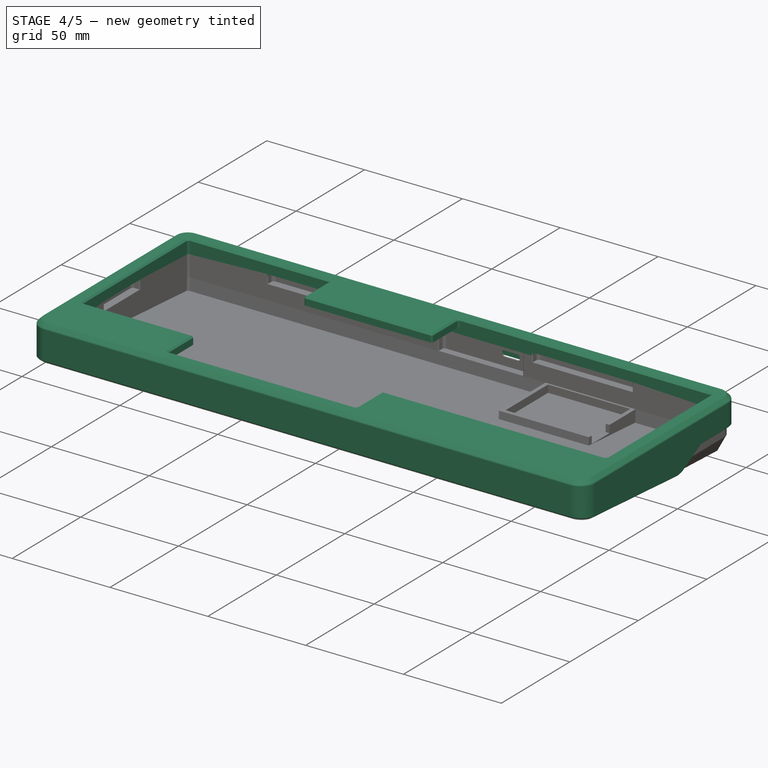
[diagram: stage 4 of 5 — iso view after this stage's code; geometry added in this stage tinted green]
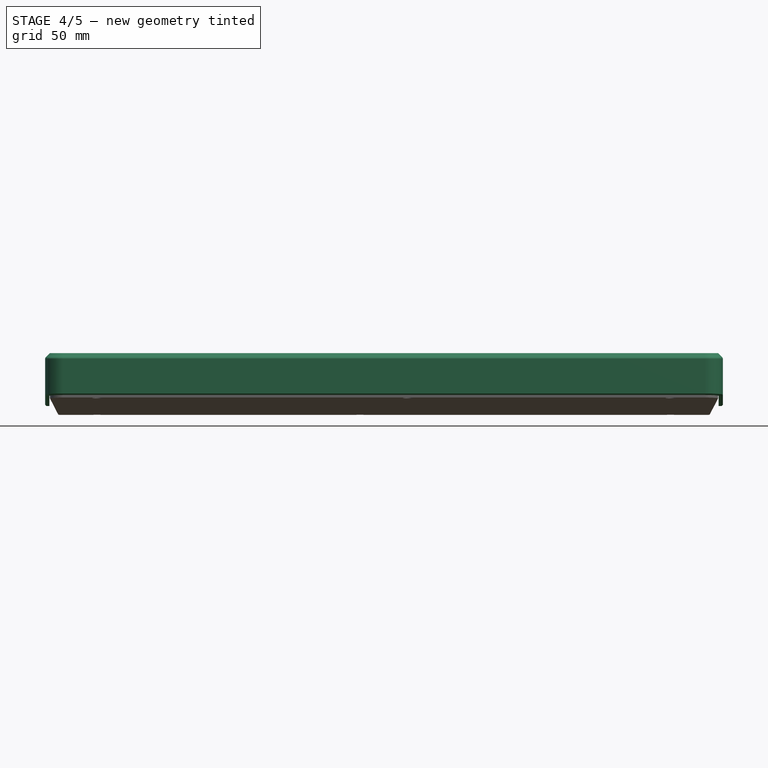
[diagram: stage 4 of 5 — front view after this stage's code; geometry added in this stage tinted green]
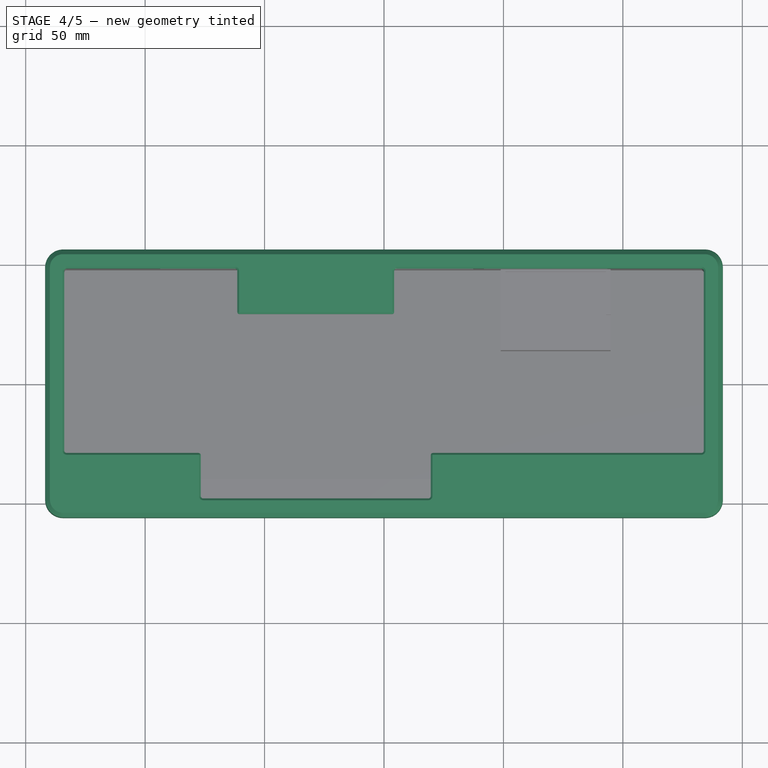
[diagram: stage 4 of 5 — top view after this stage's code; geometry added in this stage tinted green]
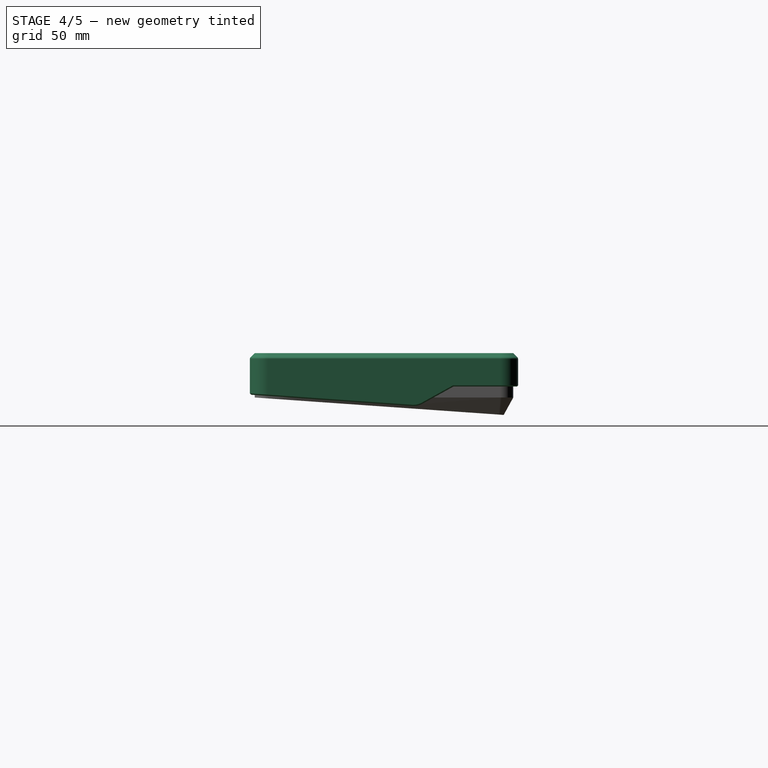
[diagram: stage 4 of 5 — right view after this stage's code; geometry added in this stage tinted green]
FEATURE [Sketcher::SketchObject] Sketch025
  ExternalGeometry = -> [Pocket008]
  FullyConstrained = false
  MapMode = 5
  Placement = pos=(141.85,0,0) rot=(0.57735,0.57735,0.57735;2.0944rad)
  Support = -> [Pocket008]
  expr: Constraints[4] = 7.8 + 2.6
  sketch-geometry (6):
    g0: LineSegment StartX=-56.125 StartY=-10.4 StartZ=0 EndX=14.0585 EndY=-15.3077 EndZ=0
    g1: LineSegment StartX=56.125 StartY=-7 StartZ=0 EndX=29.0585 EndY=-7 EndZ=0
    g2: LineSegment StartX=-56.125 StartY=-10.4 StartZ=0 EndX=-56.125 EndY=-15.8 EndZ=0
    g3: LineSegment StartX=-56.125 StartY=-15.8 StartZ=0 EndX=56.125 EndY=-15.8 EndZ=0
    g4: LineSegment StartX=56.125 StartY=-15.8 StartZ=0 EndX=56.125 EndY=-7 EndZ=0
    g5: LineSegment StartX=14.0585 StartY=-15.3077 StartZ=0 EndX=29.0585 EndY=-7 EndZ=0
  constraints (15):
    c: PointOnObject(g1,g-4)
    c: Horizontal(g1)
    c: Angle(g0,g-1) = 0.0698132
    c: PointOnObject(g0,g-3)
    c: DistanceY(g0,g-3) = 10.4
    c: Coincident(g2,g0)
    c: Coincident(g3,g-4)
    c: Coincident(g4,g3)
    c: Coincident(g4,g1)
    c: DistanceX(g0,g1) = 15
    c: Coincident(g5,g0)
    c: Coincident(g5,g1)
    c: DistanceY(g1,g-5) = 7
    c: Coincident(g2,g-3)
    c: Coincident(g3,g2)
FEATURE [PartDesign::Pocket] Pocket011
  BaseFeature = -> Pocket008
  Length = 300
  Length2 = 100
  Profile = -> Sketch025
  Type = 0
FEATURE [PartDesign::Fillet] Fillet001
  Base = -> Pocket011 [Edge67,Edge64]
  BaseFeature = -> Pocket011
  Radius = 8
  SupportTransform = false
FEATURE [PartDesign::Chamfer] Chamfer
  Angle = 45
  Base = -> Fillet001 [Edge13,Edge46,Edge1]
  BaseFeature = -> Fillet001
  ChamferType = 0
  FlipDirection = false
  Size = 0.5
  Size2 = 1
  SupportTransform = false
FEATURE [PartDesign::Chamfer] Chamfer001
  Angle = 45
  Base = -> Chamfer [Edge46]
  BaseFeature = -> Chamfer
  ChamferType = 0
  FlipDirection = false
  Size = 2
  Size2 = 1
  SupportTransform = false
FEATURE [PartDesign::Chamfer] Chamfer002
  Angle = 45
  Base = -> Chamfer001 [Edge42]
  BaseFeature = -> Chamfer001
  ChamferType = 0
  FlipDirection = false
  Size = 0.75
  Size2 = 1
  SupportTransform = false
FEATURE [PartDesign::Fillet] Fillet002
  Base = -> Chamfer002 [Edge90]
  BaseFeature = -> Chamfer002
  Radius = 1
  SupportTransform = false
FEATURE [PartDesign::ShapeBinder] ShapeBinder002
  Support = -> [Chamfer004]
  TraceSupport = false
FEATURE [Sketcher::SketchObject] Sketch031
  ExternalGeometry = -> [ShapeBinder002]
  FullyConstrained = false
  MapMode = 5
  Placement = pos=(0,54.125,0) rot=(0,0.707107,0.707107;3.14159rad)
  Support = -> [ShapeBinder002]
  sketch-geometry (6):
    g0: ArcOfCircle CenterX=33.5 CenterY=-3.1 CenterZ=0 NormalX=0 NormalY=0 NormalZ=1 AngleXU=0 Radius=1.9 StartAngle=0 EndAngle=1.5708
    g1: ArcOfCircle CenterX=23.7 CenterY=-3.1 CenterZ=0 NormalX=0 NormalY=0 NormalZ=1 AngleXU=0 Radius=1.9 StartAngle=1.5708 EndAngle=3.14159
    g2: LineSegment StartX=33.5 StartY=-1.2 StartZ=0 EndX=23.7 EndY=-1.2 EndZ=0
    g3: LineSegment StartX=21.8 StartY=-3.1 StartZ=0 EndX=21.8 EndY=-7.1 EndZ=0
    g4: LineSegment StartX=35.4 StartY=-3.1 StartZ=0 EndX=35.4 EndY=-7.1 EndZ=0
    g5: LineSegment StartX=35.4 StartY=-7.1 StartZ=0 EndX=21.8 EndY=-7.1 EndZ=0
  constraints (14):
    c: Vertical(g0,g0)
    c: Horizontal(g1,g1)
    c: Coincident(g3,g1)
    c: Vertical(g3)
    c: Coincident(g4,g0)
    c: Vertical(g4)
    c: Coincident(g5,g4)
    c: Coincident(g5,g3)
    c: Coincident(g2,g1)
    c: Coincident(g2,g0)
    c: Horizontal(g2)
    c: Horizontal(g0,g0)
    c: Horizontal(g5)
    c: DistanceY(g4,g4) = 4
FEATURE [PartDesign::Pocket] Pocket016
  BaseFeature = -> Fillet002
  Length = 5
  Length2 = 100
  Profile = -> Sketch031
  Reversed = true
  Type = 0
FEATURE [PartDesign::Body] Body002  label="CaseBottom"
  Group = -> [ShapeBinder001,Pad004,Pad005,DatumPlane,Sketch022,Sketch023,AdditiveLoft,Pad006,Pocket009,DatumPlane001,Sketch024,Pocket010,Sketch027,Pocket012,Sketch028,Pocket013,Sketch029,Pocket014,DatumPlane002,Sketch030,Pocket015,Chamfer003,Chamfer004,Pad008,Pad009,DatumPlane003,Sketch036,Pocket018]
  Origin = -> Origin091
  Tip = -> Pocket018
FEATURE [Sketcher::SketchObject] Sketch039
  ExternalGeometry = -> [Pocket016]
  FullyConstrained = false
  MapMode = 5
  Placement = pos=(0,0,0) rot=(1,0,0;3.14159rad)
  Support = -> [Pocket016]
  sketch-geometry (16):
    g0: LineSegment StartX=-134.35 StartY=54.125 StartZ=0 EndX=134.35 EndY=54.125 EndZ=0
    g1: LineSegment StartX=139.85 StartY=-48.625 StartZ=0 EndX=139.85 EndY=48.625 EndZ=0
    g2: LineSegment StartX=134.35 StartY=-54.125 StartZ=0 EndX=-134.35 EndY=-54.125 EndZ=0
    g3: LineSegment StartX=-139.85 StartY=-48.625 StartZ=0 EndX=-139.85 EndY=48.625 EndZ=0
    g4: ArcOfCircle CenterX=-134.35 CenterY=-48.625 CenterZ=0 NormalX=0 NormalY=0 NormalZ=1 AngleXU=0 Radius=5.5 StartAngle=3.14159 EndAngle=4.71239
    g5: ArcOfCircle CenterX=134.35 CenterY=48.625 CenterZ=0 NormalX=0 NormalY=0 NormalZ=1 AngleXU=0 Radius=5.5 StartAngle=6.28318 EndAngle=7.85398
    g6: ArcOfCircle CenterX=134.35 CenterY=-48.625 CenterZ=0 NormalX=0 NormalY=0 NormalZ=1 AngleXU=0 Radius=5.5 StartAngle=4.71239 EndAngle=6.28319
    g7: ArcOfCircle CenterX=-134.35 CenterY=48.625 CenterZ=0 NormalX=0 NormalY=0 NormalZ=1 AngleXU=0 Radius=5.75 StartAngle=1.5708 EndAngle=3.14159
    g8: ArcOfCircle CenterX=134.35 CenterY=48.625 CenterZ=0 NormalX=0 NormalY=0 NormalZ=1 AngleXU=0 Radius=5.75 StartAngle=6.28318 EndAngle=7.85398
    g9: ArcOfCircle CenterX=134.35 CenterY=-48.625 CenterZ=0 NormalX=0 NormalY=0 NormalZ=1 AngleXU=0 Radius=5.75 StartAngle=4.71239 EndAngle=6.28319
    g10: ArcOfCircle CenterX=-134.35 CenterY=-48.625 CenterZ=0 NormalX=0 NormalY=0 NormalZ=1 AngleXU=0 Radius=5.75 StartAngle=3.14159 EndAngle=4.71239
    g11: LineSegment StartX=134.35 StartY=-54.375 StartZ=0 EndX=-134.35 EndY=-54.375 EndZ=0
    g12: LineSegment StartX=-140.1 StartY=-48.625 StartZ=0 EndX=-140.1 EndY=48.625 EndZ=0
    g13: LineSegment StartX=-134.35 StartY=54.375 StartZ=0 EndX=134.35 EndY=54.375 EndZ=0
    g14: LineSegment StartX=140.1 StartY=48.625 StartZ=0 EndX=140.1 EndY=-48.625 EndZ=0
    g15: ArcOfCircle CenterX=-134.35 CenterY=48.625 CenterZ=0 NormalX=0 NormalY=0 NormalZ=1 AngleXU=0 Radius=5.5 StartAngle=1.5708 EndAngle=3.14159
  constraints (43):
    c: Coincident(g0,g-3)
    c: Coincident(g0,g-6)
    c: Coincident(g1,g-5)
    c: Coincident(g1,g-6)
    c: Coincident(g2,g-5)
    c: Coincident(g2,g-4)
    c: Coincident(g3,g-4)
    c: Coincident(g3,g-3)
    c: Coincident(g4,g-4)
    c: Coincident(g4,g3)
    c: Coincident(g5,g-6)
    c: Coincident(g5,g0)
    c: Coincident(g6,g-5)
    c: Coincident(g6,g1)
    c: Coincident(g8,g5)
    c: Coincident(g9,g6)
    c: Coincident(g10,g4)
    c: Vertical(g10,g2)
    c: Vertical(g7,g0)
    c: Vertical(g8,g0)
    c: Vertical(g9,g6)
    c: Coincident(g11,g9)
    c: Coincident(g11,g10)
    c: Horizontal(g11)
    c: Coincident(g12,g10)
    c: Coincident(g12,g7)
    c: Vertical(g12)
    c: Coincident(g13,g7)
    c: Coincident(g13,g8)
    c: Horizontal(g13)
    c: Coincident(g14,g8)
    c: Coincident(g14,g9)
    c: Vertical(g14)
    c: DistanceX(g1,g9) = 0.25
    c: Horizontal(g1,g9)
    c: Horizontal(g8,g1)
    c: Horizontal(g7,g3)
    c: Coincident(g15,g7)
    c: Coincident(g15,g0)
    c: Coincident(g15,g3)
    c: Equal(g-3,g15)
    c: Coincident(g2,g6)
    c: Coincident(g1,g5)
FEATURE [PartDesign::Pocket] Pocket020
  BaseFeature = -> Pocket016
  Length = 5
  Length2 = 100
  Profile = -> Sketch039
  Reversed = true
  Type = 1
FEATURE [PartDesign::FeatureBase] BaseFeature001
  BaseFeature = -> Part__Mirroring001
FEATURE [PartDesign::Body] Body004
  BaseFeature = -> Part__Mirroring001
  Group = -> [BaseFeature001]
  Origin = -> Origin094
  Tip = -> BaseFeature001
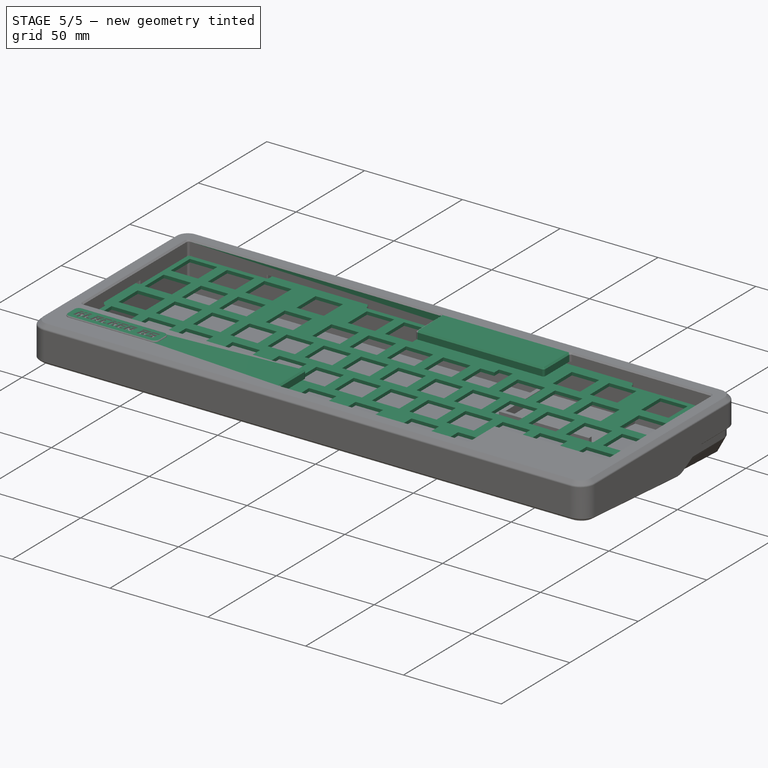
[diagram: stage 5 of 5 — iso view after this stage's code; geometry added in this stage tinted green]
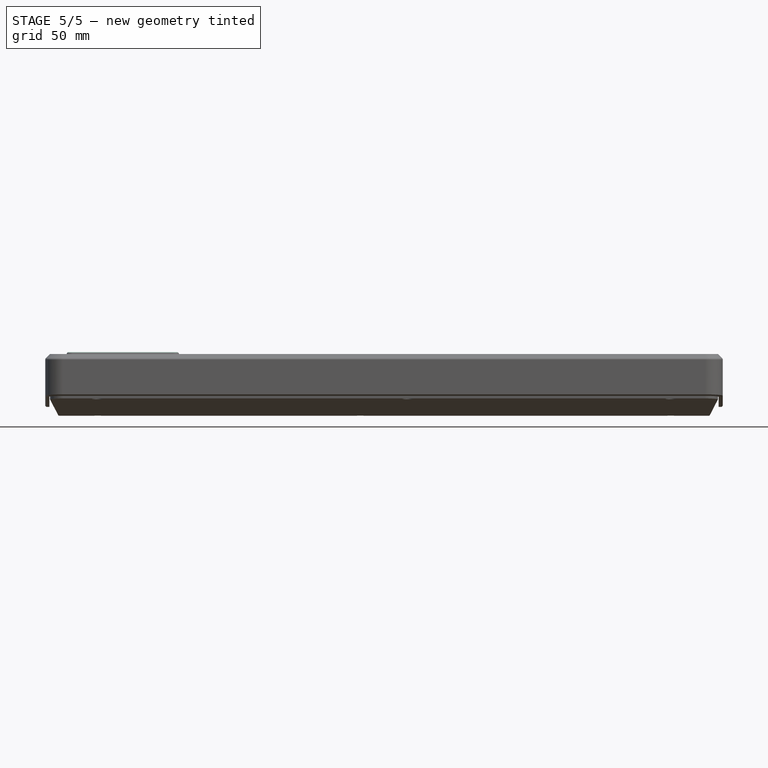
[diagram: stage 5 of 5 — front view after this stage's code; geometry added in this stage tinted green]
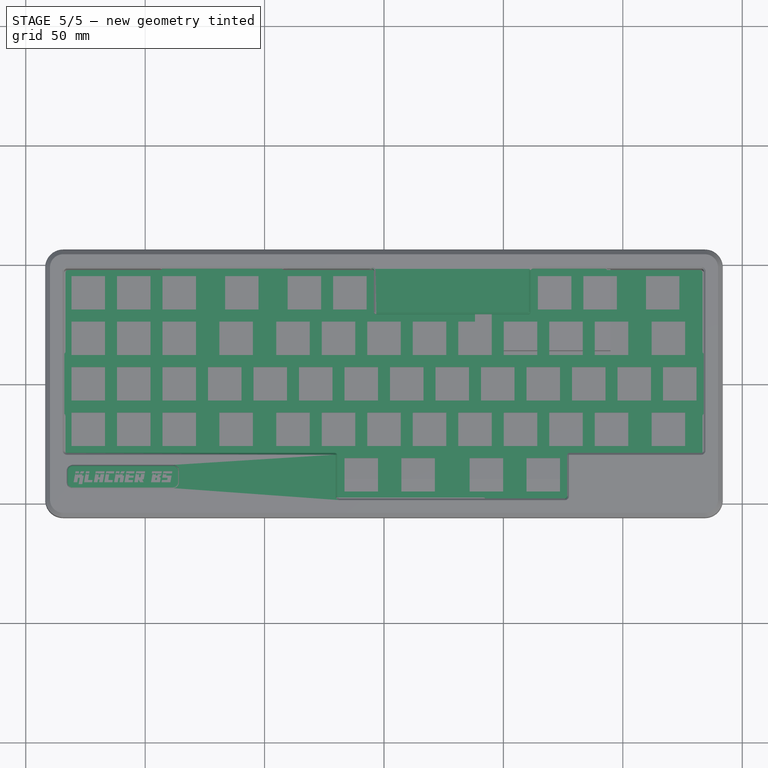
[diagram: stage 5 of 5 — top view after this stage's code; geometry added in this stage tinted green]
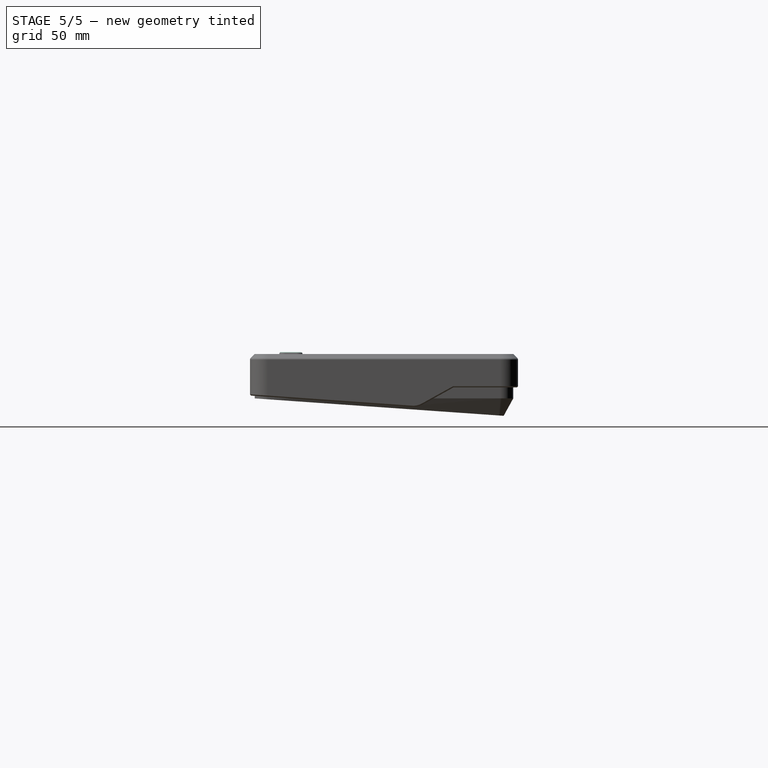
[diagram: stage 5 of 5 — right view after this stage's code; geometry added in this stage tinted green]
FEATURE [Sketcher::SketchObject] Sketch035
  ExternalGeometry = -> [Pocket016]
  FullyConstrained = true
  MapMode = 5
  Placement = pos=(0,0,7) rot=(0,0,1;0rad)
  Support = -> [Pocket020]
  expr: Constraints[31] = <<Spreadsheet>>.keySafety + 0.5
  sketch-geometry (13):
    g0: ArcOfCircle CenterX=88.35 CenterY=-36.6 CenterZ=0 NormalX=0 NormalY=0 NormalZ=1 AngleXU=0 Radius=2.5 StartAngle=1.5708 EndAngle=3.14159
    g1: LineSegment StartX=88.35 StartY=-34.1 StartZ=0 EndX=130.35 EndY=-34.1 EndZ=0
    g2: ArcOfCircle CenterX=130.35 CenterY=-36.6 CenterZ=0 NormalX=0 NormalY=0 NormalZ=1 AngleXU=0 Radius=2.5 StartAngle=-9e-16 EndAngle=1.5708
    g3: LineSegment StartX=132.85 StartY=-36.6 StartZ=0 EndX=132.85 EndY=-41.35 EndZ=0
    g4: ArcOfCircle CenterX=130.35 CenterY=-41.35 CenterZ=0 NormalX=0 NormalY=0 NormalZ=1 AngleXU=0 Radius=2.5 StartAngle=4.71239 EndAngle=6.28319
    g5: LineSegment StartX=130.35 StartY=-43.85 StartZ=0 EndX=88.35 EndY=-43.85 EndZ=0
    g6: ArcOfCircle CenterX=88.35 CenterY=-41.35 CenterZ=0 NormalX=0 NormalY=0 NormalZ=1 AngleXU=0 Radius=2.5 StartAngle=3.14159 EndAngle=4.71239
    g7: LineSegment StartX=85.85 StartY=-41.35 StartZ=0 EndX=85.85 EndY=-36.6 EndZ=0
    g8: GeomPoint X=85.85 Y=-34.1 Z=0
    g9: GeomPoint X=132.85 Y=-43.85 Z=0
    g10: LineSegment StartX=88.35 StartY=-34.1 StartZ=0 EndX=88.35 EndY=-29.075 EndZ=0
    g11: LineSegment StartX=18.55 StartY=-48.875 StartZ=0 EndX=132.85 EndY=-48.875 EndZ=0
    g12: LineSegment StartX=88.35 StartY=-43.85 StartZ=0 EndX=88.35 EndY=-48.875 EndZ=0
  constraints (33):
    c: Tangent(g0,g1) = 1.5708
    c: Tangent(g1,g2) = 1.5708
    c: Tangent(g2,g3) = 1.5708
    c: Tangent(g3,g4) = 1.5708
    c: Tangent(g4,g5) = 1.5708
    c: Tangent(g5,g6) = 1.5708
    c: Tangent(g6,g7) = 1.5708
    c: Tangent(g7,g0) = 1.5708
    c: Horizontal(g1)
    c: Horizontal(g5)
    c: Vertical(g3)
    c: Vertical(g7)
    c: Equal(g0,g2)
    c: Equal(g2,g4)
    c: Equal(g4,g6)
    c: PointOnObject(g8,g1)
    c: PointOnObject(g8,g7)
    c: PointOnObject(g9,g3)
    c: PointOnObject(g9,g5)
    c: Radius(g0) = 2.5
    c: DistanceX(g0,g2) = 47
    c: DistanceY(g5,g0) = 9.75
    c: Coincident(g10,g0)
    c: PointOnObject(g10,g-3)
    c: Vertical(g10)
    c: Coincident(g11,g-4)
    c: Horizontal(g11)
    c: Vertical(g9,g11)
    c: Coincident(g12,g5)
    c: PointOnObject(g12,g11)
    c: Vertical(g12)
    c: DistanceX(g2,g-5) = 1
    c: Equal(g10,g12)
FEATURE [PartDesign::Pad] Pad007
  BaseFeature = -> Pocket020
  Direction = (0,0,1)
  Length = 0.75
  Length2 = 100
  Profile = -> Sketch035
  ReferenceAxis = -> Sketch035 [N_Axis]
  Type = 0
FEATURE [PartDesign::Body] Body  label="CaseTop"
  Group = -> [Sketch,Pad,Sketch001,Pocket,ShapeBinder,Sketch007,Pocket005,Sketch008,Pocket006,Sketch015,Pad003,Sketch016,Pocket008,Sketch025,Pocket011,Fillet001,Chamfer,Chamfer001,Chamfer002,Fillet002,ShapeBinder002,Sketch031,Pocket016,Pocket020,Sketch035,Pad007,Sketch039]
  Origin = -> Origin
  Tip = -> Pad007
FEATURE [Part::FeaturePython] Facebinder  # WARN: FeaturePython — macro-defined, semantics opaque (R4)
  Area = 16014.3
  Extrusion = 0
  Faces = -> [Fillet]
  RemoveSplitter = false
  Sew = false
FEATURE [Sketcher::SketchObject] Sketch040
  ExternalGeometry = -> [Fillet]
  FullyConstrained = true
  MapMode = 5
  Support = -> [Fillet]
  sketch-geometry (4):
    g0: LineSegment StartX=-45.1 StartY=26.05 StartZ=0 EndX=-38.1 EndY=26.05 EndZ=0
    g1: LineSegment StartX=-38.1 StartY=26.05 StartZ=0 EndX=-38.1 EndY=29.55 EndZ=0
    g2: LineSegment StartX=-38.1 StartY=29.55 StartZ=0 EndX=-45.1 EndY=29.55 EndZ=0
    g3: LineSegment StartX=-45.1 StartY=29.55 StartZ=0 EndX=-45.1 EndY=26.05 EndZ=0
  constraints (10):
    c: Coincident(g0,g1)
    c: Coincident(g1,g2)
    c: Coincident(g2,g3)
    c: Coincident(g3,g0)
    c: Horizontal(g2)
    c: Vertical(g1)
    c: Vertical(g3)
    c: Coincident(g0,g-3)
    c: Symmetric(g0,g-3,g0)
    c: DistanceY(g1,g1) = 3.5
FEATURE [PartDesign::Pocket] Pocket021
  BaseFeature = -> Fillet
  Length = 5
  Length2 = 100
  Profile = -> Sketch040
  Type = 0
FEATURE [PartDesign::Body] Body001  label="Plate"
  Group = -> [Sketch002,Pad001,Sketch003,Pocket001,Sketch004,Pocket002,Sketch005,Pocket003,Sketch006,Pocket004,Fillet,Sketch040,Pocket021]
  Origin = -> Origin001
  Tip = -> Pocket021
FEATURE [Part::Feature] Part__Feature  label="klackerM PCB"
  Placement = pos=(-205.65,108.13,5) rot=(0,0,1;0rad)
  shape: bbox 266.5 x 99 x 1.6 mm, 708 faces (baked)
FEATURE [App::Part] klackerM_1  label="klackerM 1"
  Group = -> [Part__Feature]
  Origin = -> Origin092
  Placement = pos=(-19,0,0) rot=(0,1,0;3.14159rad)
FEATURE [Part::Mirroring] Part__Mirroring002  label="Plate (Mirror #3)"
  Base = (0,0,0)
  Normal = (1,0,0)
  Source = -> Body001
FEATURE [Part::Mirroring] Part__Mirroring  label="CaseTop (Mirror #3)"
  Base = (0,0,0)
  Normal = (1,0,0)
  Source = -> Body
FEATURE [PartDesign::FeatureBase] BaseFeature
  BaseFeature = -> Part__Mirroring
FEATURE [Sketcher::SketchObject] Sketch034
  AttachmentOffset = pos=(-212.3,2.63,0) rot=(0,0,1;0rad)
  FullyConstrained = false
  MapMode = 5
  Placement = pos=(-212.3,2.63,7.75) rot=(0,0,1;0rad)
  Support = -> [BaseFeature]
  sketch-geometry (227):
    g0: LineSegment StartX=84.3182 StartY=-41.2868 StartZ=0 EndX=84.7008 EndY=-40.6291 EndZ=0
    g1: LineSegment StartX=84.4278 StartY=-40.685 StartZ=0 EndX=84.3182 EndY=-41.2868 EndZ=0
    g2: LineSegment StartX=84.4196 StartY=-40.6912 StartZ=0 EndX=84.4278 EndY=-40.685 EndZ=0
    g3: LineSegment StartX=83.9812 StartY=-40.6912 StartZ=0 EndX=84.4196 EndY=-40.6912 EndZ=0
    g4: BSplineCurve PolesCount=3 KnotsCount=2 Degree=2 IsPeriodic=0
    g5: BSplineCurve PolesCount=3 KnotsCount=2 Degree=2 IsPeriodic=0
    g6: BSplineCurve PolesCount=3 KnotsCount=2 Degree=2 IsPeriodic=0
    g7: BSplineCurve PolesCount=3 KnotsCount=2 Degree=2 IsPeriodic=0
    g8: LineSegment StartX=82.9409 StartY=-40.6291 StartZ=0 EndX=83.4807 EndY=-40.6291 EndZ=0
    g9: LineSegment StartX=82.3371 StartY=-44 StartZ=0 EndX=82.9409 EndY=-40.6291 EndZ=0
    g10: LineSegment StartX=83.8302 StartY=-44 StartZ=0 EndX=82.3371 EndY=-44 EndZ=0
    g11: LineSegment StartX=84.1673 StartY=-42.1471 StartZ=0 EndX=83.8302 EndY=-44 EndZ=0
    g12: LineSegment StartX=84.9283 StartY=-42.1471 StartZ=0 EndX=84.1673 EndY=-42.1471 EndZ=0
    g13: LineSegment StartX=84.4527 StartY=-44.7941 StartZ=0 EndX=84.9283 EndY=-42.1471 EndZ=0
    g14: LineSegment StartX=85.9458 StartY=-44.7941 StartZ=0 EndX=84.4527 EndY=-44.7941 EndZ=0
    g15: LineSegment StartX=86.5869 StartY=-41.2206 StartZ=0 EndX=85.9458 EndY=-44.7941 EndZ=0
    g16: LineSegment StartX=85.8114 StartY=-41.2206 StartZ=0 EndX=86.5869 EndY=-41.2206 EndZ=0
    g17: LineSegment StartX=86.1733 StartY=-40.6291 StartZ=0 EndX=85.8114 EndY=-41.2206 EndZ=0
    g18: LineSegment StartX=84.7008 StartY=-40.6291 StartZ=0 EndX=86.1733 EndY=-40.6291 EndZ=0
    g19: LineSegment StartX=86.8909 StartY=-39.3676 StartZ=0 EndX=86.3449 EndY=-40.292 EndZ=0
    g20: LineSegment StartX=85.3998 StartY=-39.3676 StartZ=0 EndX=86.8909 EndY=-39.3676 EndZ=0
    g21: LineSegment StartX=84.8642 StartY=-40.292 StartZ=0 EndX=85.3998 EndY=-39.3676 EndZ=0
    g22: LineSegment StartX=86.3449 StartY=-40.292 StartZ=0 EndX=84.8642 EndY=-40.292 EndZ=0
    g23: BSplineCurve PolesCount=3 KnotsCount=2 Degree=2 IsPeriodic=0
    g24: BSplineCurve PolesCount=3 KnotsCount=2 Degree=2 IsPeriodic=0
    g25: BSplineCurve PolesCount=3 KnotsCount=2 Degree=2 IsPeriodic=0
    g26: LineSegment StartX=84.4899 StartY=-40.292 StartZ=0 EndX=83.9894 EndY=-40.292 EndZ=0
    g27: LineSegment StartX=84.6553 StartY=-39.3676 StartZ=0 EndX=84.4899 EndY=-40.292 EndZ=0
    g28: LineSegment StartX=83.156 StartY=-39.3676 StartZ=0 EndX=84.6553 EndY=-39.3676 EndZ=0
    g29: LineSegment StartX=82.9906 StartY=-40.292 StartZ=0 EndX=83.156 EndY=-39.3676 EndZ=0
    g30: LineSegment StartX=83.5055 StartY=-40.292 StartZ=0 EndX=82.9906 EndY=-40.292 EndZ=0
    g31: LineSegment StartX=90.2555 StartY=-43.0756 StartZ=0 EndX=90.0901 EndY=-44 EndZ=0
    g32: LineSegment StartX=88.3819 StartY=-43.0756 StartZ=0 EndX=90.2555 EndY=-43.0756 EndZ=0
    g33: LineSegment StartX=88.8079 StartY=-40.6415 StartZ=0 EndX=88.3819 EndY=-43.0756 EndZ=0
    g34: LineSegment StartX=88.3757 StartY=-40.6415 StartZ=0 EndX=88.8079 EndY=-40.6415 EndZ=0
    g35: BSplineCurve PolesCount=3 KnotsCount=2 Degree=2 IsPeriodic=0
    g36: BSplineCurve PolesCount=3 KnotsCount=2 Degree=2 IsPeriodic=0
    g37: BSplineCurve PolesCount=3 KnotsCount=2 Degree=2 IsPeriodic=0
    g38: BSplineCurve PolesCount=3 KnotsCount=2 Degree=2 IsPeriodic=0
    g39: LineSegment StartX=87.3086 StartY=-40.5795 StartZ=0 EndX=87.8732 EndY=-40.5795 EndZ=0
    g40: LineSegment StartX=86.7047 StartY=-44 StartZ=0 EndX=87.3086 EndY=-40.5795 EndZ=0
    g41: LineSegment StartX=90.0901 StartY=-44 StartZ=0 EndX=86.7047 EndY=-44 EndZ=0
    g42: BSplineCurve PolesCount=3 KnotsCount=2 Degree=2 IsPeriodic=0
    g43: BSplineCurve PolesCount=3 KnotsCount=2 Degree=2 IsPeriodic=0
    g44: BSplineCurve PolesCount=3 KnotsCount=2 Degree=2 IsPeriodic=0
    g45: LineSegment StartX=88.8699 StartY=-40.292 StartZ=0 EndX=88.3819 EndY=-40.292 EndZ=0
    g46: LineSegment StartX=89.0354 StartY=-39.3676 StartZ=0 EndX=88.8699 EndY=-40.292 EndZ=0
    g47: LineSegment StartX=87.5237 StartY=-39.3676 StartZ=0 EndX=89.0354 EndY=-39.3676 EndZ=0
    g48: LineSegment StartX=87.3582 StartY=-40.292 StartZ=0 EndX=87.5237 EndY=-39.3676 EndZ=0
    g49: LineSegment StartX=87.898 StartY=-40.292 StartZ=0 EndX=87.3582 EndY=-40.292 EndZ=0
    g50: LineSegment StartX=94.5363 StartY=-44 StartZ=0 EndX=93.0184 EndY=-44 EndZ=0
    g51: LineSegment StartX=95.1402 StartY=-40.6023 StartZ=0 EndX=94.5363 EndY=-44 EndZ=0
    g52: LineSegment StartX=93.6222 StartY=-40.6023 StartZ=0 EndX=95.1402 EndY=-40.6023 EndZ=0
    g53: LineSegment StartX=93.3989 StartY=-41.8824 StartZ=0 EndX=93.6222 EndY=-40.6023 EndZ=0
    g54: LineSegment StartX=92.6875 StartY=-41.8824 StartZ=0 EndX=93.3989 EndY=-41.8824 EndZ=0
    g55: LineSegment StartX=92.9046 StartY=-40.6705 StartZ=0 EndX=92.6875 EndY=-41.8824 EndZ=0
    g56: LineSegment StartX=92.4724 StartY=-40.6705 StartZ=0 EndX=92.9046 EndY=-40.6705 EndZ=0
    g57: BSplineCurve PolesCount=3 KnotsCount=2 Degree=2 IsPeriodic=0
    g58: BSplineCurve PolesCount=3 KnotsCount=2 Degree=2 IsPeriodic=0
    g59: BSplineCurve PolesCount=3 KnotsCount=2 Degree=2 IsPeriodic=0
    g60: BSplineCurve PolesCount=3 KnotsCount=2 Degree=2 IsPeriodic=0
    g61: LineSegment StartX=91.4115 StartY=-40.6023 StartZ=0 EndX=91.9699 EndY=-40.6023 EndZ=0
    g62: LineSegment StartX=90.8077 StartY=-44 StartZ=0 EndX=91.4115 EndY=-40.6023 EndZ=0
    g63: LineSegment StartX=92.3132 StartY=-44 StartZ=0 EndX=90.8077 EndY=-44 EndZ=0
    g64: LineSegment StartX=92.5283 StartY=-42.8068 StartZ=0 EndX=92.3132 EndY=-44 EndZ=0
    g65: LineSegment StartX=93.2335 StartY=-42.8068 StartZ=0 EndX=92.5283 EndY=-42.8068 EndZ=0
    g66: LineSegment StartX=93.0184 StartY=-44 StartZ=0 EndX=93.2335 EndY=-42.8068 EndZ=0
    g67: LineSegment StartX=95.3552 StartY=-39.3676 StartZ=0 EndX=95.1919 EndY=-40.292 EndZ=0
    g68: LineSegment StartX=91.6266 StartY=-39.3676 StartZ=0 EndX=95.3552 EndY=-39.3676 EndZ=0
    g69: LineSegment StartX=91.4612 StartY=-40.292 StartZ=0 EndX=91.6266 EndY=-39.3676 EndZ=0
    g70: LineSegment StartX=91.9947 StartY=-40.292 StartZ=0 EndX=91.4612 EndY=-40.292 EndZ=0
    g71: BSplineCurve PolesCount=3 KnotsCount=2 Degree=2 IsPeriodic=0
    g72: BSplineCurve PolesCount=3 KnotsCount=2 Degree=2 IsPeriodic=0
    g73: BSplineCurve PolesCount=3 KnotsCount=2 Degree=2 IsPeriodic=0
    g74: LineSegment StartX=95.1919 StartY=-40.292 StartZ=0 EndX=92.4786 EndY=-40.292 EndZ=0
    g75: LineSegment StartX=98.5855 StartY=-44 StartZ=0 EndX=95.1753 EndY=-44 EndZ=0
    g76: LineSegment StartX=98.7509 StartY=-43.0756 StartZ=0 EndX=98.5855 EndY=-44 EndZ=0
    g77: LineSegment StartX=96.8339 StartY=-43.0756 StartZ=0 EndX=98.7509 EndY=-43.0756 EndZ=0
    g78: LineSegment StartX=97.2578 StartY=-40.6395 StartZ=0 EndX=96.8339 EndY=-43.0756 EndZ=0
    g79: LineSegment StartX=96.8401 StartY=-40.6395 StartZ=0 EndX=97.2578 EndY=-40.6395 EndZ=0
    g80: BSplineCurve PolesCount=3 KnotsCount=2 Degree=2 IsPeriodic=0
    g81: BSplineCurve PolesCount=3 KnotsCount=2 Degree=2 IsPeriodic=0
    g82: BSplineCurve PolesCount=3 KnotsCount=2 Degree=2 IsPeriodic=0
    g83: BSplineCurve PolesCount=3 KnotsCount=2 Degree=2 IsPeriodic=0
    g84: LineSegment StartX=95.7792 StartY=-40.5774 StartZ=0 EndX=96.3375 EndY=-40.5774 EndZ=0
    g85: LineSegment StartX=95.1753 StartY=-44 StartZ=0 EndX=95.7792 EndY=-40.5774 EndZ=0
    g86: LineSegment StartX=95.9943 StartY=-39.3676 StartZ=0 EndX=99.4003 EndY=-39.3676 EndZ=0
    g87: LineSegment StartX=95.8288 StartY=-40.292 StartZ=0 EndX=95.9943 EndY=-39.3676 EndZ=0
    g88: LineSegment StartX=96.3624 StartY=-40.292 StartZ=0 EndX=95.8288 EndY=-40.292 EndZ=0
    g89: BSplineCurve PolesCount=3 KnotsCount=2 Degree=2 IsPeriodic=0
    g90: BSplineCurve PolesCount=3 KnotsCount=2 Degree=2 IsPeriodic=0
    g91: BSplineCurve PolesCount=3 KnotsCount=2 Degree=2 IsPeriodic=0
    g92: LineSegment StartX=99.2348 StartY=-40.292 StartZ=0 EndX=96.8463 EndY=-40.292 EndZ=0
    g93: LineSegment StartX=99.4003 StartY=-39.3676 StartZ=0 EndX=99.2348 EndY=-40.292 EndZ=0
    g94: LineSegment StartX=101.259 StartY=-41.2868 StartZ=0 EndX=101.642 EndY=-40.6291 EndZ=0
    g95: LineSegment StartX=101.369 StartY=-40.685 StartZ=0 EndX=101.259 EndY=-41.2868 EndZ=0
    g96: LineSegment StartX=101.361 StartY=-40.6912 StartZ=0 EndX=101.369 EndY=-40.685 EndZ=0
    g97: LineSegment StartX=100.922 StartY=-40.6912 StartZ=0 EndX=101.361 EndY=-40.6912 EndZ=0
    g98: BSplineCurve PolesCount=3 KnotsCount=2 Degree=2 IsPeriodic=0
    g99: BSplineCurve PolesCount=3 KnotsCount=2 Degree=2 IsPeriodic=0
    g100: BSplineCurve PolesCount=3 KnotsCount=2 Degree=2 IsPeriodic=0
    g101: BSplineCurve PolesCount=3 KnotsCount=2 Degree=2 IsPeriodic=0
    g102: LineSegment StartX=99.8821 StartY=-40.6291 StartZ=0 EndX=100.422 EndY=-40.6291 EndZ=0
    g103: LineSegment StartX=99.2783 StartY=-44 StartZ=0 EndX=99.8821 EndY=-40.6291 EndZ=0
    g104: LineSegment StartX=100.771 StartY=-44 StartZ=0 EndX=99.2783 EndY=-44 EndZ=0
    g105: LineSegment StartX=101.108 StartY=-42.1471 StartZ=0 EndX=100.771 EndY=-44 EndZ=0
    g106: LineSegment StartX=101.869 StartY=-42.1471 StartZ=0 EndX=101.108 EndY=-42.1471 EndZ=0
    g107: LineSegment StartX=101.539 StartY=-44 StartZ=0 EndX=101.869 EndY=-42.1471 EndZ=0
    g108: LineSegment StartX=103.032 StartY=-44 StartZ=0 EndX=101.539 EndY=-44 EndZ=0
    g109: LineSegment StartX=103.528 StartY=-41.2206 StartZ=0 EndX=103.032 EndY=-44 EndZ=0
    g110: LineSegment StartX=102.753 StartY=-41.2206 StartZ=0 EndX=103.528 EndY=-41.2206 EndZ=0
    g111: LineSegment StartX=103.114 StartY=-40.6291 StartZ=0 EndX=102.753 EndY=-41.2206 EndZ=0
    g112: LineSegment StartX=101.642 StartY=-40.6291 StartZ=0 EndX=103.114 EndY=-40.6291 EndZ=0
    g113: LineSegment StartX=103.832 StartY=-39.3676 StartZ=0 EndX=103.286 EndY=-40.292 EndZ=0
    g114: LineSegment StartX=102.341 StartY=-39.3676 StartZ=0 EndX=103.832 EndY=-39.3676 EndZ=0
    g115: LineSegment StartX=101.805 StartY=-40.292 StartZ=0 EndX=102.341 EndY=-39.3676 EndZ=0
    g116: LineSegment StartX=103.286 StartY=-40.292 StartZ=0 EndX=101.805 EndY=-40.292 EndZ=0
    g117: BSplineCurve PolesCount=3 KnotsCount=2 Degree=2 IsPeriodic=0
    g118: BSplineCurve PolesCount=3 KnotsCount=2 Degree=2 IsPeriodic=0
    g119: BSplineCurve PolesCount=3 KnotsCount=2 Degree=2 IsPeriodic=0
    g120: LineSegment StartX=101.431 StartY=-40.292 StartZ=0 EndX=100.931 EndY=-40.292 EndZ=0
    g121: LineSegment StartX=101.597 StartY=-39.3676 StartZ=0 EndX=101.431 EndY=-40.292 EndZ=0
    g122: LineSegment StartX=100.097 StartY=-39.3676 StartZ=0 EndX=101.597 EndY=-39.3676 EndZ=0
    g123: LineSegment StartX=99.9318 StartY=-40.292 StartZ=0 EndX=100.097 EndY=-39.3676 EndZ=0
    g124: LineSegment StartX=100.447 StartY=-40.292 StartZ=0 EndX=99.9318 EndY=-40.292 EndZ=0
    g125: LineSegment StartX=107.056 StartY=-44 StartZ=0 EndX=103.64 EndY=-44 EndZ=0
    g126: LineSegment StartX=107.222 StartY=-43.0756 StartZ=0 EndX=107.056 EndY=-44 EndZ=0
    g127: LineSegment StartX=105.304 StartY=-43.0756 StartZ=0 EndX=107.222 EndY=-43.0756 EndZ=0
    g128: LineSegment StartX=105.462 StartY=-42.1471 StartZ=0 EndX=105.304 EndY=-43.0756 EndZ=0
    g129: LineSegment StartX=107.368 StartY=-42.1471 StartZ=0 EndX=105.462 EndY=-42.1471 EndZ=0
    g130: LineSegment StartX=107.534 StartY=-41.2227 StartZ=0 EndX=107.368 EndY=-42.1471 EndZ=0
    g131: LineSegment StartX=105.621 StartY=-41.2227 StartZ=0 EndX=107.534 EndY=-41.2227 EndZ=0
    g132: LineSegment StartX=105.722 StartY=-40.6395 StartZ=0 EndX=105.621 EndY=-41.2227 EndZ=0
    g133: LineSegment StartX=105.311 StartY=-40.6395 StartZ=0 EndX=105.722 EndY=-40.6395 EndZ=0
    g134: BSplineCurve PolesCount=3 KnotsCount=2 Degree=2 IsPeriodic=0
    g135: BSplineCurve PolesCount=3 KnotsCount=2 Degree=2 IsPeriodic=0
    g136: BSplineCurve PolesCount=3 KnotsCount=2 Degree=2 IsPeriodic=0
    g137: BSplineCurve PolesCount=3 KnotsCount=2 Degree=2 IsPeriodic=0
    g138: LineSegment StartX=104.244 StartY=-40.5774 StartZ=0 EndX=104.808 EndY=-40.5774 EndZ=0
    g139: LineSegment StartX=103.64 StartY=-44 StartZ=0 EndX=104.244 EndY=-40.5774 EndZ=0
    g140: LineSegment StartX=104.459 StartY=-39.3676 StartZ=0 EndX=107.877 EndY=-39.3676 EndZ=0
    g141: LineSegment StartX=104.293 StartY=-40.292 StartZ=0 EndX=104.459 EndY=-39.3676 EndZ=0
    g142: LineSegment StartX=104.833 StartY=-40.292 StartZ=0 EndX=104.293 EndY=-40.292 EndZ=0
    g143: BSplineCurve PolesCount=3 KnotsCount=2 Degree=2 IsPeriodic=0
    g144: BSplineCurve PolesCount=3 KnotsCount=2 Degree=2 IsPeriodic=0
    g145: BSplineCurve PolesCount=3 KnotsCount=2 Degree=2 IsPeriodic=0
    g146: LineSegment StartX=107.712 StartY=-40.292 StartZ=0 EndX=105.317 EndY=-40.292 EndZ=0
    g147: LineSegment StartX=107.877 StartY=-39.3676 StartZ=0 EndX=107.712 EndY=-40.292 EndZ=0
    g148: LineSegment StartX=109.846 StartY=-40.6333 StartZ=0 EndX=109.629 EndY=-41.8824 EndZ=0
    g149: LineSegment StartX=109.84 StartY=-40.6395 StartZ=0 EndX=109.846 EndY=-40.6333 EndZ=0
    g150: LineSegment StartX=109.401 StartY=-40.6395 StartZ=0 EndX=109.84 EndY=-40.6395 EndZ=0
    g151: BSplineCurve PolesCount=3 KnotsCount=2 Degree=2 IsPeriodic=0
    g152: BSplineCurve PolesCount=3 KnotsCount=2 Degree=2 IsPeriodic=0
    g153: BSplineCurve PolesCount=3 KnotsCount=2 Degree=2 IsPeriodic=0
    g154: BSplineCurve PolesCount=3 KnotsCount=2 Degree=2 IsPeriodic=0
    g155: LineSegment StartX=108.353 StartY=-40.5588 StartZ=0 EndX=108.899 EndY=-40.5588 EndZ=0
    g156: LineSegment StartX=107.749 StartY=-44 StartZ=0 EndX=108.353 EndY=-40.5588 EndZ=0
    g157: LineSegment StartX=109.254 StartY=-44 StartZ=0 EndX=107.749 EndY=-44 EndZ=0
    g158: LineSegment StartX=109.469 StartY=-42.8088 StartZ=0 EndX=109.254 EndY=-44 EndZ=0
    g159: LineSegment StartX=110.162 StartY=-44 StartZ=0 EndX=109.469 EndY=-42.8088 EndZ=0
    g160: LineSegment StartX=111.643 StartY=-44 StartZ=0 EndX=110.162 EndY=-44 EndZ=0
    g161: LineSegment StartX=111.045 StartY=-42.8088 StartZ=0 EndX=111.643 EndY=-44 EndZ=0
    g162: LineSegment StartX=111.695 StartY=-42.8088 StartZ=0 EndX=111.045 EndY=-42.8088 EndZ=0
    g163: LineSegment StartX=112.081 StartY=-40.5588 StartZ=0 EndX=111.695 EndY=-42.8088 EndZ=0
    g164: LineSegment StartX=110.582 StartY=-40.5588 StartZ=0 EndX=112.081 EndY=-40.5588 EndZ=0
    g165: LineSegment StartX=110.359 StartY=-41.8824 StartZ=0 EndX=110.582 EndY=-40.5588 EndZ=0
    g166: LineSegment StartX=109.629 StartY=-41.8824 StartZ=0 EndX=110.359 EndY=-41.8824 EndZ=0
    g167: LineSegment StartX=112.296 StartY=-39.3676 StartZ=0 EndX=112.133 EndY=-40.292 EndZ=0
    g168: LineSegment StartX=108.568 StartY=-39.3676 StartZ=0 EndX=112.296 EndY=-39.3676 EndZ=0
    g169: LineSegment StartX=108.402 StartY=-40.292 StartZ=0 EndX=108.568 EndY=-39.3676 EndZ=0
    g170: LineSegment StartX=108.923 StartY=-40.292 StartZ=0 EndX=108.402 EndY=-40.292 EndZ=0
    g171: BSplineCurve PolesCount=3 KnotsCount=2 Degree=2 IsPeriodic=0
    g172: BSplineCurve PolesCount=3 KnotsCount=2 Degree=2 IsPeriodic=0
    g173: BSplineCurve PolesCount=3 KnotsCount=2 Degree=2 IsPeriodic=0
    g174: LineSegment StartX=112.133 StartY=-40.292 StartZ=0 EndX=109.407 EndY=-40.292 EndZ=0
    g175: LineSegment StartX=116.856 StartY=-40.6395 StartZ=0 EndX=116.755 EndY=-41.2227 EndZ=0
    g176: LineSegment StartX=116.424 StartY=-40.6395 StartZ=0 EndX=116.856 EndY=-40.6395 EndZ=0
    g177: BSplineCurve PolesCount=3 KnotsCount=2 Degree=2 IsPeriodic=0
    g178: BSplineCurve PolesCount=3 KnotsCount=2 Degree=2 IsPeriodic=0
    g179: BSplineCurve PolesCount=3 KnotsCount=2 Degree=2 IsPeriodic=0
    g180: BSplineCurve PolesCount=3 KnotsCount=2 Degree=2 IsPeriodic=0
    g181: LineSegment StartX=115.363 StartY=-40.5774 StartZ=0 EndX=115.922 EndY=-40.5774 EndZ=0
    g182: LineSegment StartX=114.753 StartY=-44 StartZ=0 EndX=115.363 EndY=-40.5774 EndZ=0
    g183: LineSegment StartX=118.496 StartY=-44 StartZ=0 EndX=114.753 EndY=-44 EndZ=0
    g184: LineSegment StartX=118.813 StartY=-42.1988 StartZ=0 EndX=118.496 EndY=-44 EndZ=0
    g185: LineSegment StartX=118.298 StartY=-41.6942 StartZ=0 EndX=118.813 EndY=-42.1988 EndZ=0
    g186: LineSegment StartX=119.036 StartY=-40.9621 StartZ=0 EndX=118.298 EndY=-41.6942 EndZ=0
    g187: LineSegment StartX=119.098 StartY=-40.5774 StartZ=0 EndX=119.036 EndY=-40.9621 EndZ=0
    g188: LineSegment StartX=117.599 StartY=-40.5774 StartZ=0 EndX=119.098 EndY=-40.5774 EndZ=0
    g189: LineSegment StartX=117.485 StartY=-41.2227 StartZ=0 EndX=117.599 EndY=-40.5774 EndZ=0
    g190: LineSegment StartX=116.755 StartY=-41.2227 StartZ=0 EndX=117.485 EndY=-41.2227 EndZ=0
    g191: LineSegment StartX=117.32 StartY=-42.1471 StartZ=0 EndX=116.59 EndY=-42.1471 EndZ=0
    g192: LineSegment StartX=117.16 StartY=-43.0756 StartZ=0 EndX=117.32 EndY=-42.1471 EndZ=0
    g193: LineSegment StartX=116.43 StartY=-43.0756 StartZ=0 EndX=117.16 EndY=-43.0756 EndZ=0
    g194: LineSegment StartX=116.59 StartY=-42.1471 StartZ=0 EndX=116.43 EndY=-43.0756 EndZ=0
    g195: LineSegment StartX=119.315 StartY=-39.3676 StartZ=0 EndX=119.15 EndY=-40.292 EndZ=0
    g196: LineSegment StartX=115.185 StartY=-39.3676 StartZ=0 EndX=119.315 EndY=-39.3676 EndZ=0
    g197: LineSegment StartX=115.026 StartY=-40.292 StartZ=0 EndX=115.185 EndY=-39.3676 EndZ=0
    g198: LineSegment StartX=115.415 StartY=-40.292 StartZ=0 EndX=115.026 EndY=-40.292 EndZ=0
    g199: LineSegment StartX=115.949 StartY=-40.292 StartZ=0 EndX=115.415 EndY=-40.292 EndZ=0
    g200: BSplineCurve PolesCount=3 KnotsCount=2 Degree=2 IsPeriodic=0
    g201: BSplineCurve PolesCount=3 KnotsCount=2 Degree=2 IsPeriodic=0
    g202: BSplineCurve PolesCount=3 KnotsCount=2 Degree=2 IsPeriodic=0
    g203: LineSegment StartX=119.15 StartY=-40.292 StartZ=0 EndX=116.43 EndY=-40.292 EndZ=0
    g204: LineSegment StartX=121.685 StartY=-42.1471 StartZ=0 EndX=119.454 EndY=-42.1471 EndZ=0
    g205: LineSegment StartX=121.526 StartY=-43.0756 StartZ=0 EndX=121.685 EndY=-42.1471 EndZ=0
    g206: LineSegment StartX=119.309 StartY=-43.0756 StartZ=0 EndX=121.526 EndY=-43.0756 EndZ=0
    g207: LineSegment StartX=119.144 StartY=-44 StartZ=0 EndX=119.309 EndY=-43.0756 EndZ=0
    g208: LineSegment StartX=122.872 StartY=-44 StartZ=0 EndX=119.144 EndY=-44 EndZ=0
    g209: LineSegment StartX=123.362 StartY=-41.2227 StartZ=0 EndX=122.872 EndY=-44 EndZ=0
    g210: LineSegment StartX=121.106 StartY=-41.2227 StartZ=0 EndX=123.362 EndY=-41.2227 EndZ=0
    g211: LineSegment StartX=121.207 StartY=-40.6395 StartZ=0 EndX=121.106 EndY=-41.2227 EndZ=0
    g212: LineSegment StartX=120.775 StartY=-40.6395 StartZ=0 EndX=121.207 EndY=-40.6395 EndZ=0
    g213: BSplineCurve PolesCount=3 KnotsCount=2 Degree=2 IsPeriodic=0
    g214: BSplineCurve PolesCount=3 KnotsCount=2 Degree=2 IsPeriodic=0
    g215: BSplineCurve PolesCount=3 KnotsCount=2 Degree=2 IsPeriodic=0
    g216: BSplineCurve PolesCount=3 KnotsCount=2 Degree=2 IsPeriodic=0
    g217: LineSegment StartX=119.735 StartY=-40.5774 StartZ=0 EndX=120.275 EndY=-40.5774 EndZ=0
    g218: LineSegment StartX=119.454 StartY=-42.1471 StartZ=0 EndX=119.735 EndY=-40.5774 EndZ=0
    g219: LineSegment StartX=119.95 StartY=-39.3676 StartZ=0 EndX=123.679 EndY=-39.3676 EndZ=0
    g220: LineSegment StartX=119.785 StartY=-40.292 StartZ=0 EndX=119.95 EndY=-39.3676 EndZ=0
    g221: LineSegment StartX=120.3 StartY=-40.292 StartZ=0 EndX=119.785 EndY=-40.292 EndZ=0
    g222: BSplineCurve PolesCount=3 KnotsCount=2 Degree=2 IsPeriodic=0
    g223: BSplineCurve PolesCount=3 KnotsCount=2 Degree=2 IsPeriodic=0
    g224: BSplineCurve PolesCount=3 KnotsCount=2 Degree=2 IsPeriodic=0
    g225: LineSegment StartX=123.515 StartY=-40.292 StartZ=0 EndX=120.784 EndY=-40.292 EndZ=0
    g226: LineSegment StartX=123.679 StartY=-39.3676 StartZ=0 EndX=123.515 EndY=-40.292 EndZ=0
  constraints (314):
    c: Coincident(g0,g1)
    c: Coincident(g1,g2)
    c: Coincident(g2,g3)
    c: Horizontal(g3)
    c: Coincident(g3,g4)
    c: Coincident(g4,g5)
    c: Coincident(g5,g6)
    c: Coincident(g6,g7)
    c: Coincident(g7,g8)
    c: Horizontal(g8)
    c: Coincident(g8,g9)
    c: Coincident(g9,g10)
    c: Horizontal(g10)
    c: Coincident(g10,g11)
    c: Coincident(g11,g12)
    c: Horizontal(g12)
    c: Coincident(g12,g13)
    c: Coincident(g13,g14)
    c: Horizontal(g14)
    c: Coincident(g14,g15)
    c: Coincident(g15,g16)
    c: Horizontal(g16)
    c: Coincident(g16,g17)
    c: Coincident(g17,g18)
    c: Horizontal(g18)
    c: Coincident(g18,g0)
    c: Coincident(g19,g20)
    c: Horizontal(g20)
    c: Coincident(g20,g21)
    c: Coincident(g21,g22)
    c: Horizontal(g22)
    c: Coincident(g22,g19)
    c: Coincident(g23,g24)
    c: Coincident(g24,g25)
    c: Coincident(g25,g26)
    c: Horizontal(g26)
    c: Coincident(g26,g27)
    c: Coincident(g27,g28)
    c: Horizontal(g28)
    c: Coincident(g28,g29)
    c: Coincident(g29,g30)
    c: Horizontal(g30)
    c: Coincident(g30,g23)
    c: Coincident(g31,g32)
    c: Horizontal(g32)
    c: Coincident(g32,g33)
    c: Coincident(g33,g34)
    c: Horizontal(g34)
    c: Coincident(g34,g35)
    c: Coincident(g35,g36)
    c: Coincident(g36,g37)
    c: Coincident(g37,g38)
    c: Coincident(g38,g39)
    c: Horizontal(g39)
    c: Coincident(g39,g40)
    c: Coincident(g40,g41)
    c: Horizontal(g41)
    c: Coincident(g41,g31)
    c: Coincident(g42,g43)
    c: Coincident(g43,g44)
    c: Coincident(g44,g45)
    c: Horizontal(g45)
    c: Coincident(g45,g46)
    c: Coincident(g46,g47)
    c: Horizontal(g47)
    c: Coincident(g47,g48)
    c: Coincident(g48,g49)
    c: Horizontal(g49)
    c: Coincident(g49,g42)
    c: Horizontal(g50)
    c: Coincident(g50,g51)
    c: Coincident(g51,g52)
    c: Horizontal(g52)
    c: Coincident(g52,g53)
    c: Coincident(g53,g54)
    c: Horizontal(g54)
    c: Coincident(g54,g55)
    c: Coincident(g55,g56)
    c: Horizontal(g56)
    c: Coincident(g56,g57)
    c: Coincident(g57,g58)
    c: Coincident(g58,g59)
    c: Coincident(g59,g60)
    c: Coincident(g60,g61)
    c: Horizontal(g61)
    c: Coincident(g61,g62)
    c: Coincident(g62,g63)
    c: Horizontal(g63)
    c: Coincident(g63,g64)
    c: Coincident(g64,g65)
    c: Horizontal(g65)
    c: Coincident(g65,g66)
    c: Coincident(g66,g50)
    c: Coincident(g67,g68)
    c: Horizontal(g68)
    c: Coincident(g68,g69)
    c: Coincident(g69,g70)
    c: Horizontal(g70)
    c: Coincident(g70,g71)
    c: Coincident(g71,g72)
    c: Coincident(g72,g73)
    c: Coincident(g73,g74)
    c: Horizontal(g74)
    c: Coincident(g74,g67)
    c: Horizontal(g75)
    c: Coincident(g75,g76)
    c: Coincident(g76,g77)
    c: Horizontal(g77)
    c: Coincident(g77,g78)
    c: Coincident(g78,g79)
    c: Horizontal(g79)
    c: Coincident(g79,g80)
    c: Coincident(g80,g81)
    c: Coincident(g81,g82)
    c: Coincident(g82,g83)
    c: Coincident(g83,g84)
    c: Horizontal(g84)
    c: Coincident(g84,g85)
    c: Coincident(g85,g75)
    c: Horizontal(g86)
    c: Coincident(g86,g87)
    c: Coincident(g87,g88)
    c: Horizontal(g88)
    c: Coincident(g88,g89)
    c: Coincident(g89,g90)
    c: Coincident(g90,g91)
    c: Coincident(g91,g92)
    c: Horizontal(g92)
    c: Coincident(g92,g93)
    c: Coincident(g93,g86)
    c: Coincident(g94,g95)
    c: Coincident(g95,g96)
    c: Coincident(g96,g97)
    c: Horizontal(g97)
    c: Coincident(g97,g98)
    c: Coincident(g98,g99)
    c: Coincident(g99,g100)
    c: Coincident(g100,g101)
    c: Coincident(g101,g102)
    c: Horizontal(g102)
    c: Coincident(g102,g103)
    c: Coincident(g103,g104)
    c: Horizontal(g104)
    c: Coincident(g104,g105)
    c: Coincident(g105,g106)
    c: Horizontal(g106)
    c: Coincident(g106,g107)
    c: Coincident(g107,g108)
    c: Horizontal(g108)
    c: Coincident(g108,g109)
    c: Coincident(g109,g110)
    c: Horizontal(g110)
    c: Coincident(g110,g111)
    c: Coincident(g111,g112)
    c: Horizontal(g112)
    c: Coincident(g112,g94)
    c: Coincident(g113,g114)
    c: Horizontal(g114)
    c: Coincident(g114,g115)
    c: Coincident(g115,g116)
    c: Horizontal(g116)
    c: Coincident(g116,g113)
    c: Coincident(g117,g118)
    c: Coincident(g118,g119)
    c: Coincident(g119,g120)
    c: Horizontal(g120)
    c: Coincident(g120,g121)
    c: Coincident(g121,g122)
    c: Horizontal(g122)
    c: Coincident(g122,g123)
    c: Coincident(g123,g124)
    c: Horizontal(g124)
    c: Coincident(g124,g117)
    c: Horizontal(g125)
    c: Coincident(g125,g126)
    c: Coincident(g126,g127)
    c: Horizontal(g127)
    c: Coincident(g127,g128)
    c: Coincident(g128,g129)
    c: Horizontal(g129)
    c: Coincident(g129,g130)
    c: Coincident(g130,g131)
    c: Horizontal(g131)
    c: Coincident(g131,g132)
    c: Coincident(g132,g133)
    c: Horizontal(g133)
    c: Coincident(g133,g134)
    c: Coincident(g134,g135)
    c: Coincident(g135,g136)
    c: Coincident(g136,g137)
    c: Coincident(g137,g138)
    c: Horizontal(g138)
    c: Coincident(g138,g139)
    c: Coincident(g139,g125)
    c: Horizontal(g140)
    c: Coincident(g140,g141)
    c: Coincident(g141,g142)
    c: Horizontal(g142)
    c: Coincident(g142,g143)
    c: Coincident(g143,g144)
    c: Coincident(g144,g145)
    c: Coincident(g145,g146)
    c: Horizontal(g146)
    c: Coincident(g146,g147)
    c: Coincident(g147,g140)
    c: Coincident(g148,g149)
    c: Coincident(g149,g150)
    c: Horizontal(g150)
    c: Coincident(g150,g151)
    c: Coincident(g151,g152)
    c: Coincident(g152,g153)
    c: Coincident(g153,g154)
    c: Coincident(g154,g155)
    c: Horizontal(g155)
    c: Coincident(g155,g156)
    c: Coincident(g156,g157)
    c: Horizontal(g157)
    c: Coincident(g157,g158)
    c: Coincident(g158,g159)
    c: Coincident(g159,g160)
    c: Horizontal(g160)
    c: Coincident(g160,g161)
    c: Coincident(g161,g162)
    c: Horizontal(g162)
    c: Coincident(g162,g163)
    c: Coincident(g163,g164)
    c: Horizontal(g164)
    c: Coincident(g164,g165)
    c: Coincident(g165,g166)
    c: Horizontal(g166)
    c: Coincident(g166,g148)
    c: Coincident(g167,g168)
    c: Horizontal(g168)
    c: Coincident(g168,g169)
    c: Coincident(g169,g170)
    c: Horizontal(g170)
    c: Coincident(g170,g171)
    c: Coincident(g171,g172)
    c: Coincident(g172,g173)
    c: Coincident(g173,g174)
    c: Horizontal(g174)
    c: Coincident(g174,g167)
    c: Coincident(g175,g176)
    c: Horizontal(g176)
    c: Coincident(g176,g177)
    c: Coincident(g177,g178)
    c: Coincident(g178,g179)
    c: Coincident(g179,g180)
    c: Coincident(g180,g181)
    c: Horizontal(g181)
    c: Coincident(g181,g182)
    c: Coincident(g182,g183)
    c: Horizontal(g183)
    c: Coincident(g183,g184)
    c: Coincident(g184,g185)
    c: Coincident(g185,g186)
    c: Coincident(g186,g187)
    c: Coincident(g187,g188)
    c: Horizontal(g188)
    c: Coincident(g188,g189)
    c: Coincident(g189,g190)
    c: Horizontal(g190)
    c: Coincident(g190,g175)
    c: Horizontal(g191)
    c: Coincident(g191,g192)
    c: Coincident(g192,g193)
    c: Horizontal(g193)
    c: Coincident(g193,g194)
    c: Coincident(g194,g191)
    c: Coincident(g195,g196)
    c: Horizontal(g196)
    c: Coincident(g196,g197)
    c: Coincident(g197,g198)
    c: Horizontal(g198)
    c: Coincident(g198,g199)
    c: Horizontal(g199)
    c: Coincident(g199,g200)
    c: Coincident(g200,g201)
    c: Coincident(g201,g202)
    c: Coincident(g202,g203)
    c: Horizontal(g203)
    c: Coincident(g203,g195)
    c: Horizontal(g204)
    c: Coincident(g204,g205)
    c: Coincident(g205,g206)
    c: Horizontal(g206)
    c: Coincident(g206,g207)
    c: Coincident(g207,g208)
    c: Horizontal(g208)
    c: Coincident(g208,g209)
    c: Coincident(g209,g210)
    c: Horizontal(g210)
    c: Coincident(g210,g211)
    c: Coincident(g211,g212)
    c: Horizontal(g212)
    c: Coincident(g212,g213)
    c: Coincident(g213,g214)
    c: Coincident(g214,g215)
    c: Coincident(g215,g216)
    c: Coincident(g216,g217)
    c: Horizontal(g217)
    c: Coincident(g217,g218)
    c: Coincident(g218,g204)
    c: Horizontal(g219)
    c: Coincident(g219,g220)
    c: Coincident(g220,g221)
    c: Horizontal(g221)
    c: Coincident(g221,g222)
    c: Coincident(g222,g223)
    c: Coincident(g223,g224)
    c: Coincident(g224,g225)
    c: Horizontal(g225)
    c: Coincident(g225,g226)
    c: Coincident(g226,g219)
FEATURE [PartDesign::Pocket] Pocket022
  BaseFeature = -> BaseFeature
  Length = 0.75
  Length2 = 100
  Profile = -> Sketch034
  Type = 0
FEATURE [PartDesign::Fillet] Fillet003
  Base = -> Pocket022 [Edge73]
  BaseFeature = -> Pocket022
  Radius = 0.74
  SupportTransform = false
FEATURE [PartDesign::Chamfer] Chamfer005
  Angle = 45
  Base = -> Fillet003 [Edge941]
  BaseFeature = -> Fillet003
  ChamferType = 0
  FlipDirection = false
  Size = 0.5
  Size2 = 1
  SupportTransform = false
FEATURE [PartDesign::Fillet] Fillet004
  Base = -> Chamfer005 [Edge37,Edge76]
  BaseFeature = -> Chamfer005
  Radius = 1
  SupportTransform = false
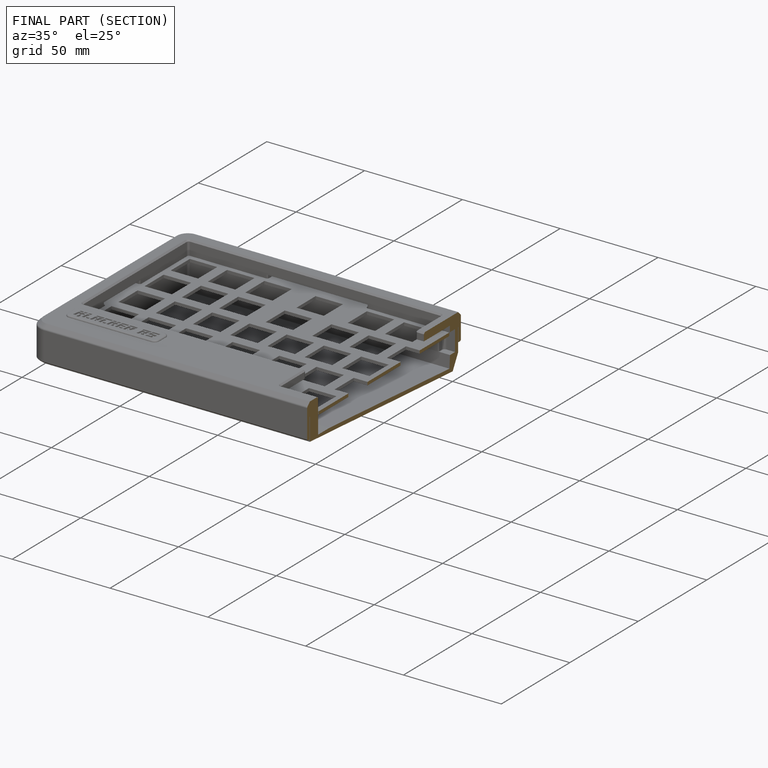
[diagram: finished part — half-section view (interior)]
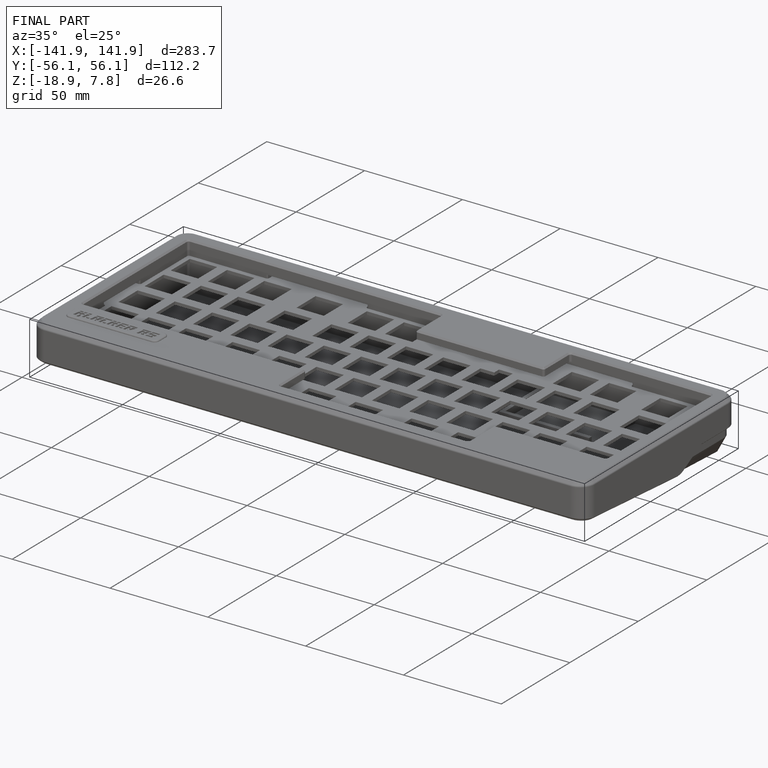
[diagram: finished part — iso view with bounding-box wireframe]
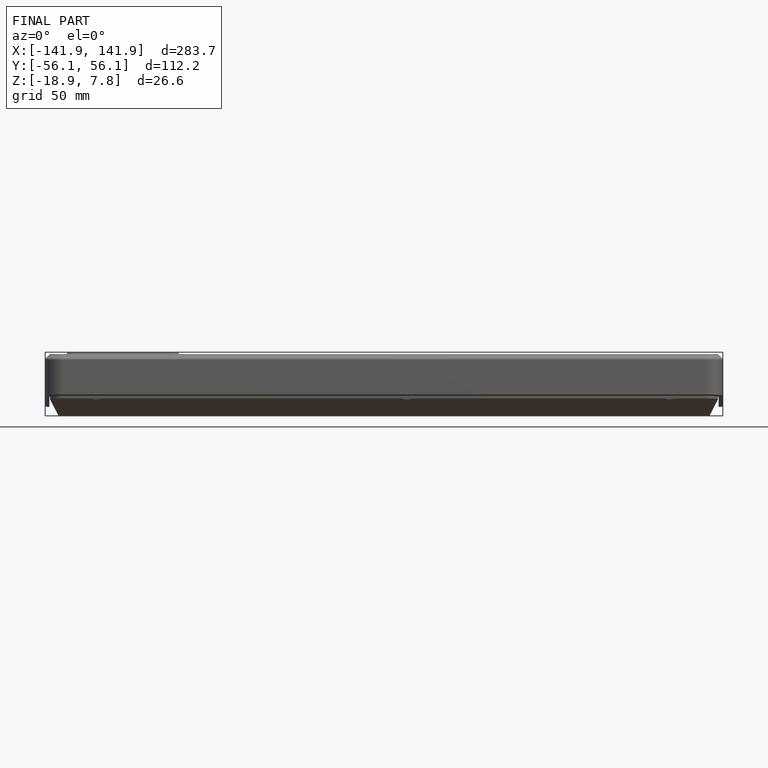
[diagram: finished part — front view with bounding-box wireframe]
